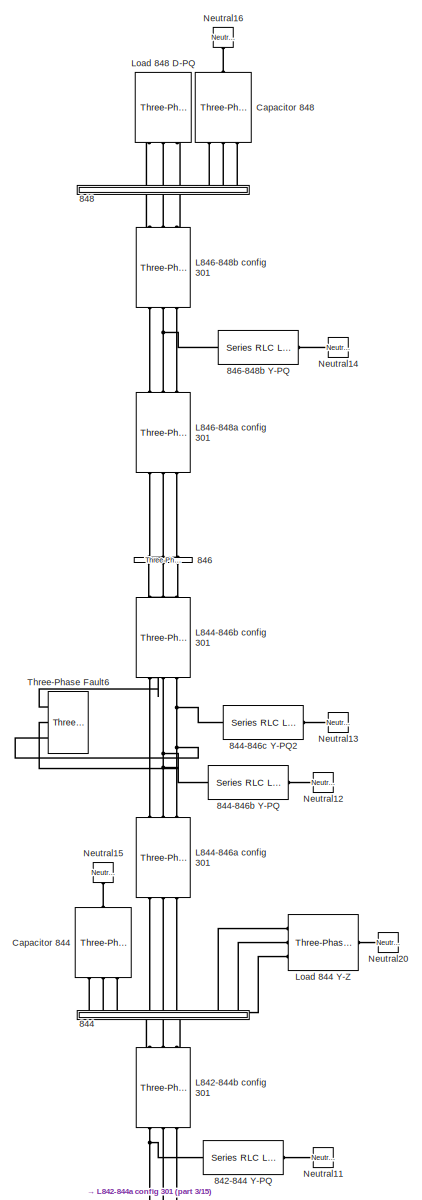
[diagram: root canvas - part 1/15, top right region]
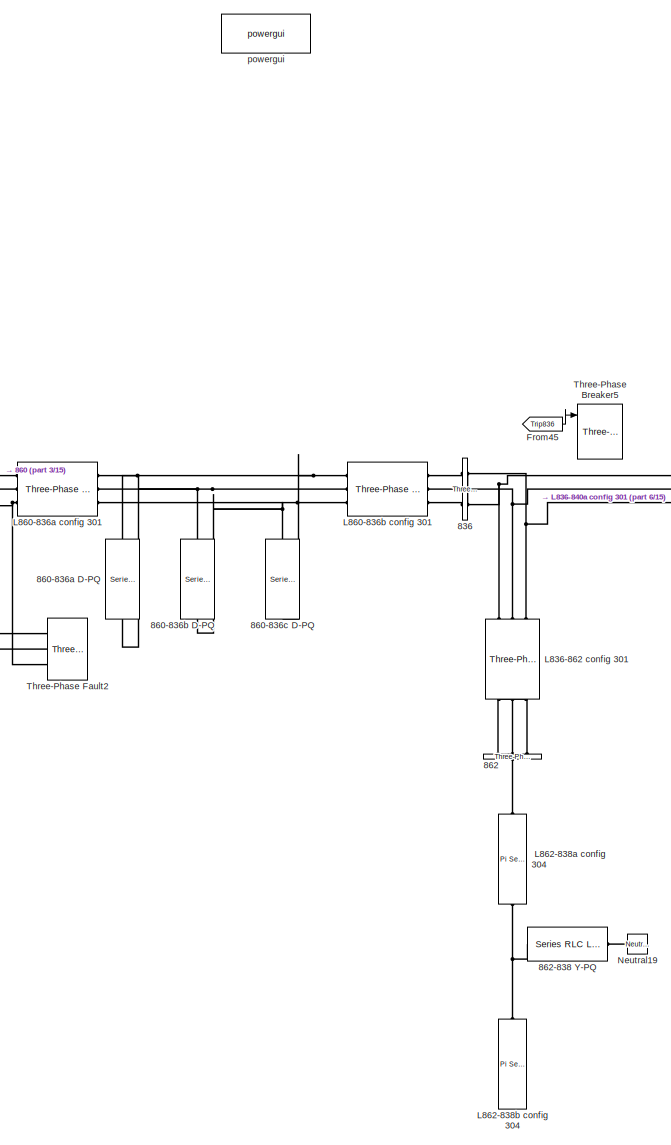
[diagram: root canvas - part 2/15, middle right region]
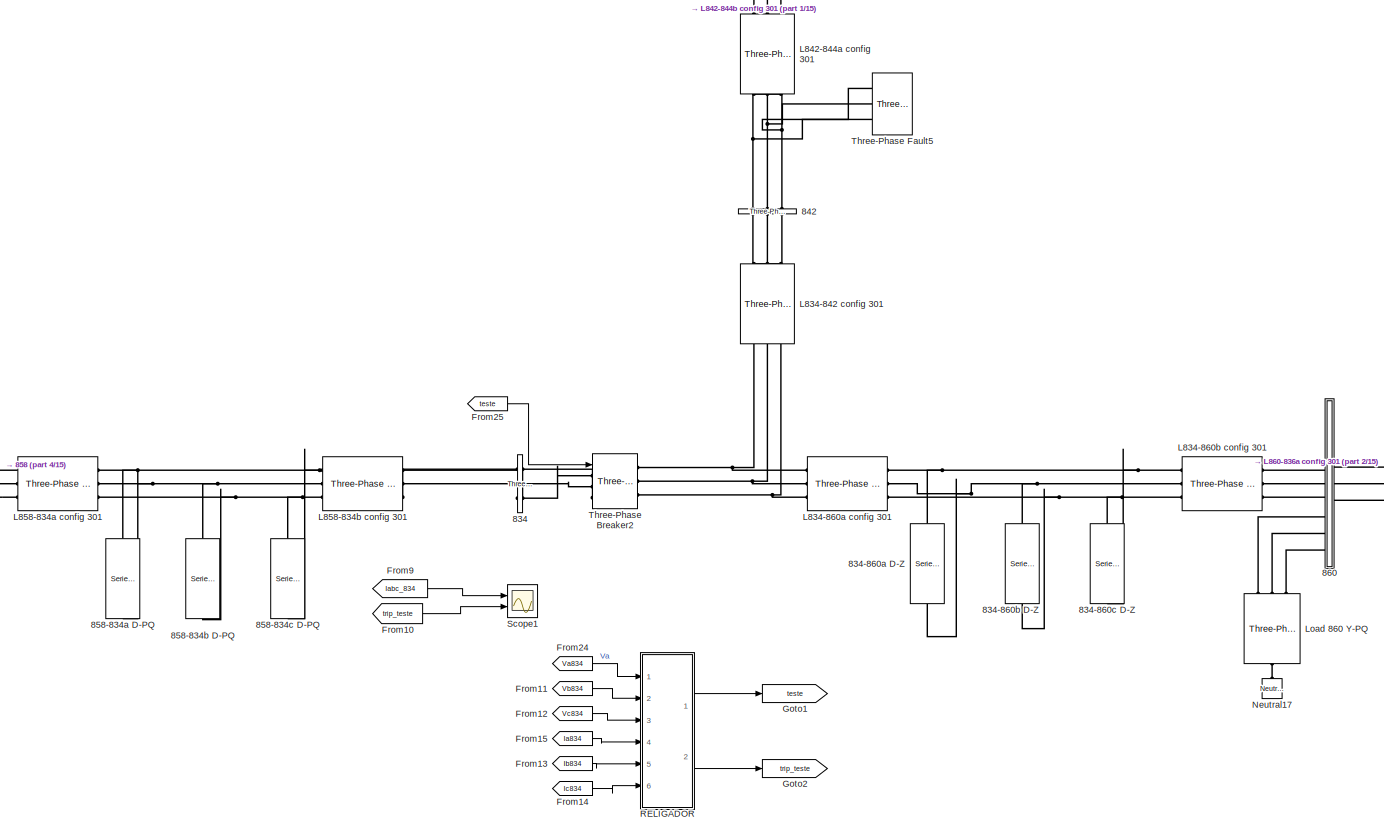
[diagram: root canvas - part 3/15, central region]
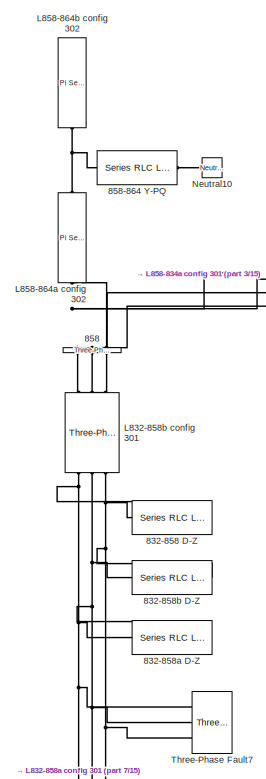
[diagram: root canvas - part 4/15, central region]
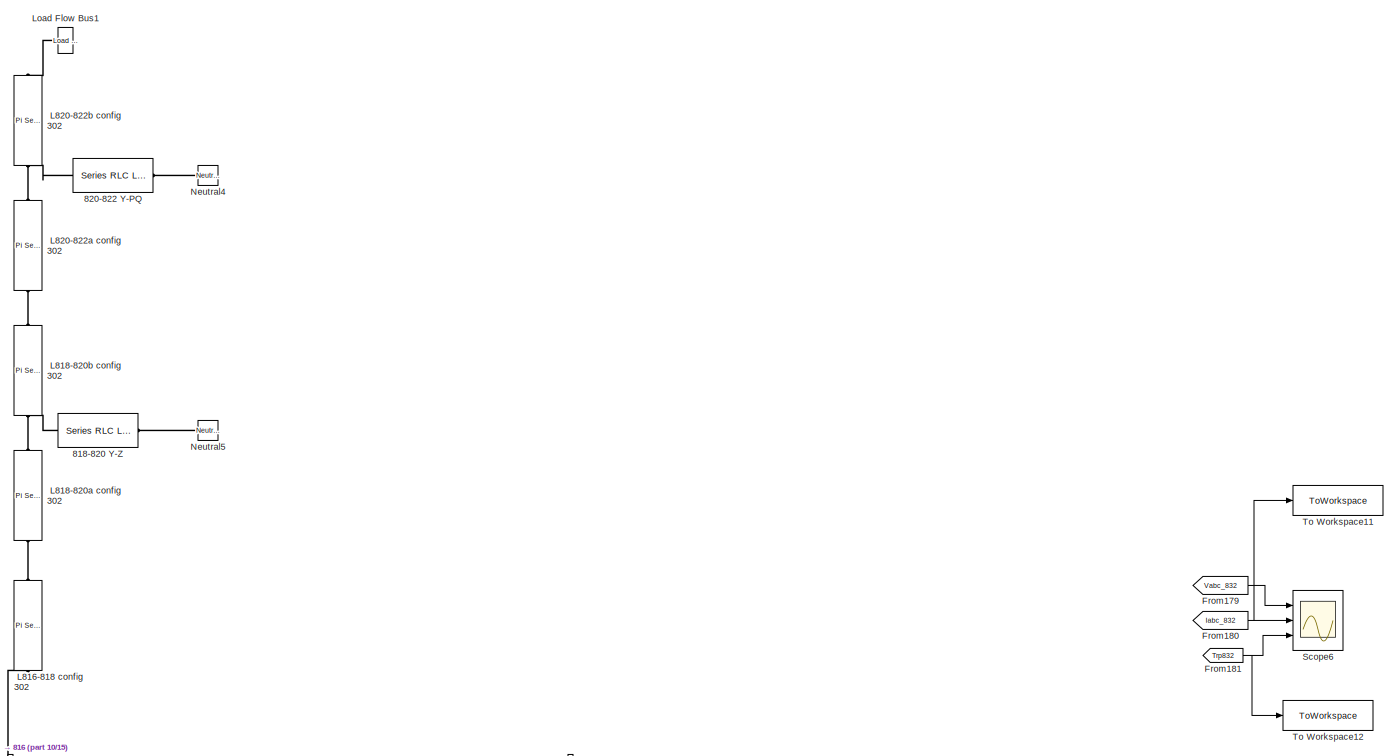
[diagram: root canvas - part 5/15, central region]
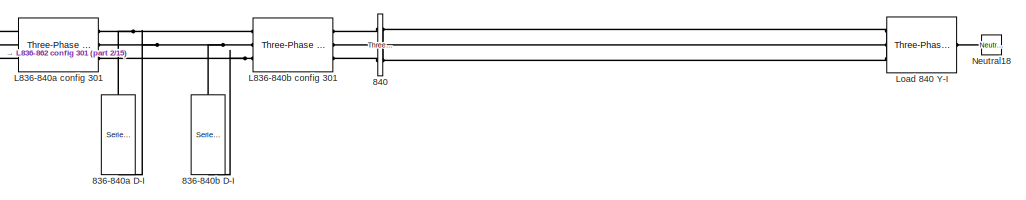
[diagram: root canvas - part 6/15, middle right region]
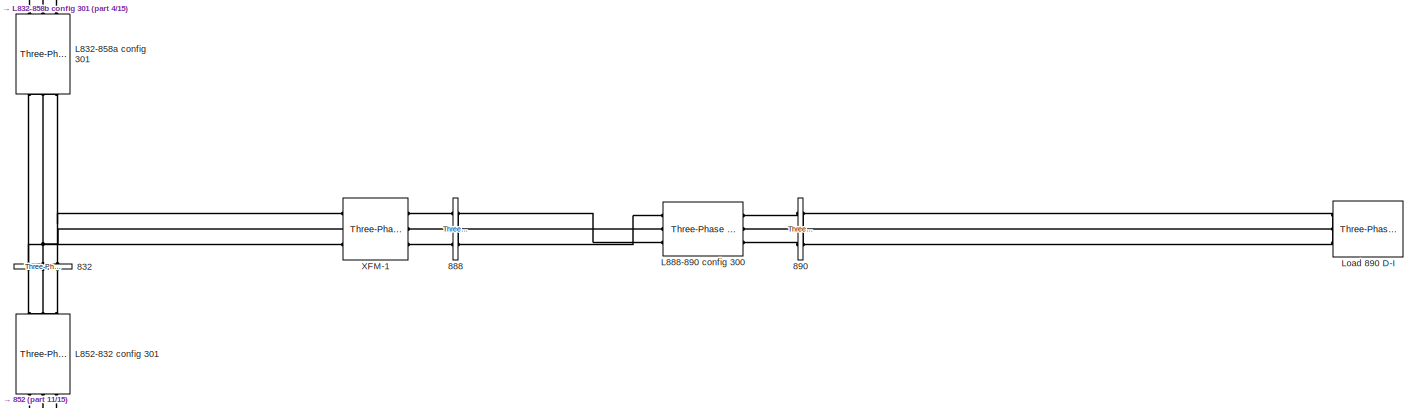
[diagram: root canvas - part 7/15, central region]
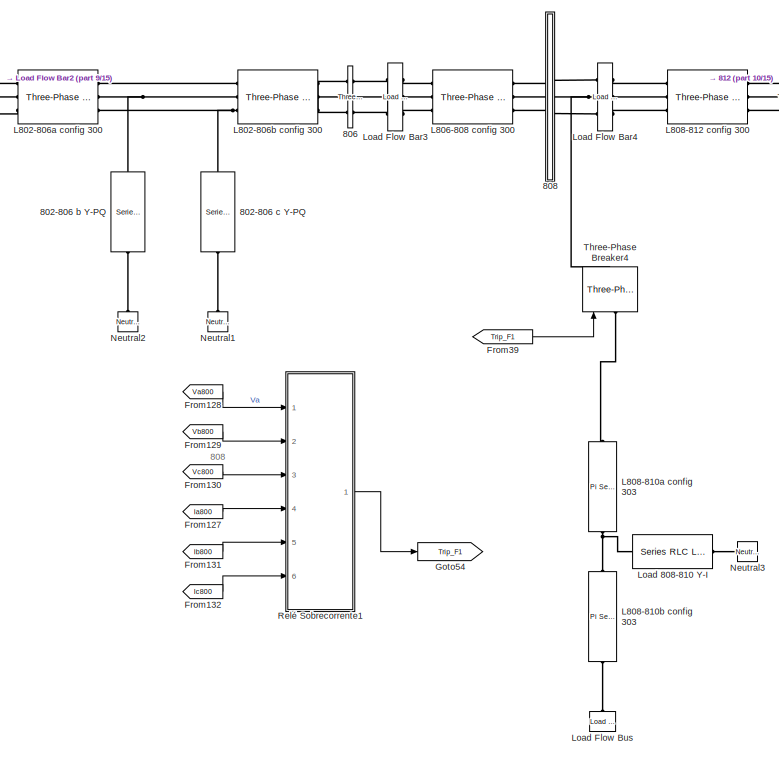
[diagram: root canvas - part 8/15, middle left region]
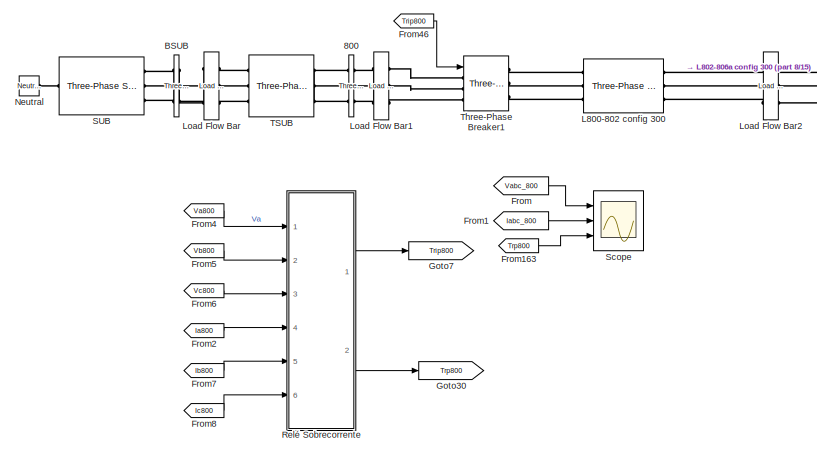
[diagram: root canvas - part 9/15, middle left region]
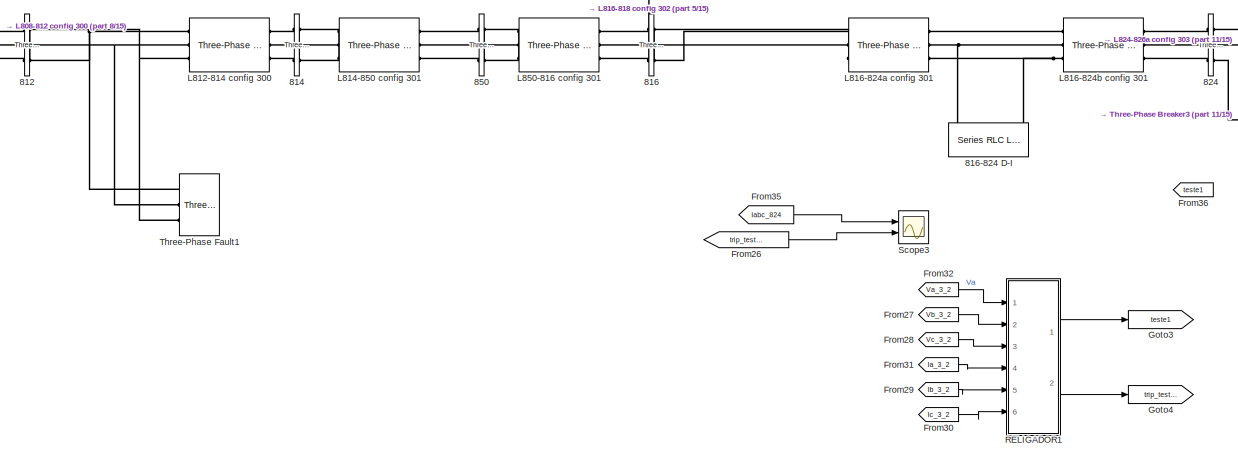
[diagram: root canvas - part 10/15, middle left region]
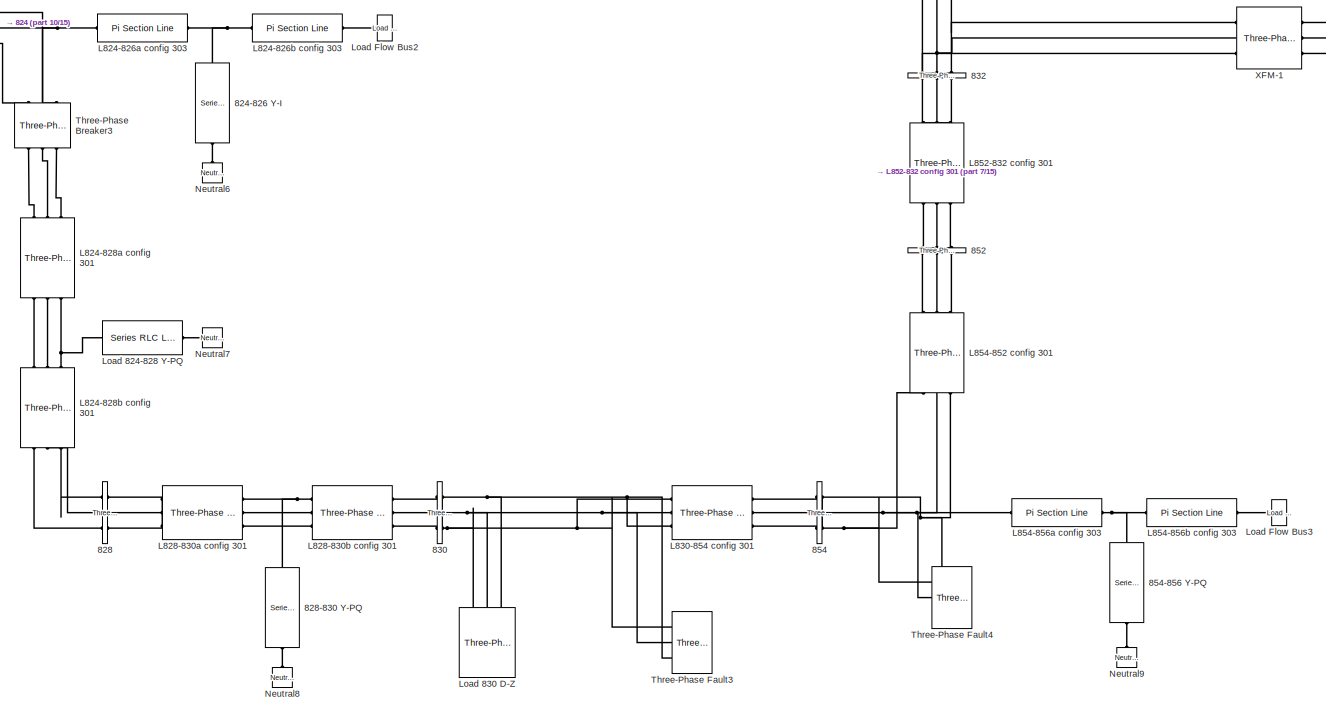
[diagram: root canvas - part 11/15, central region]
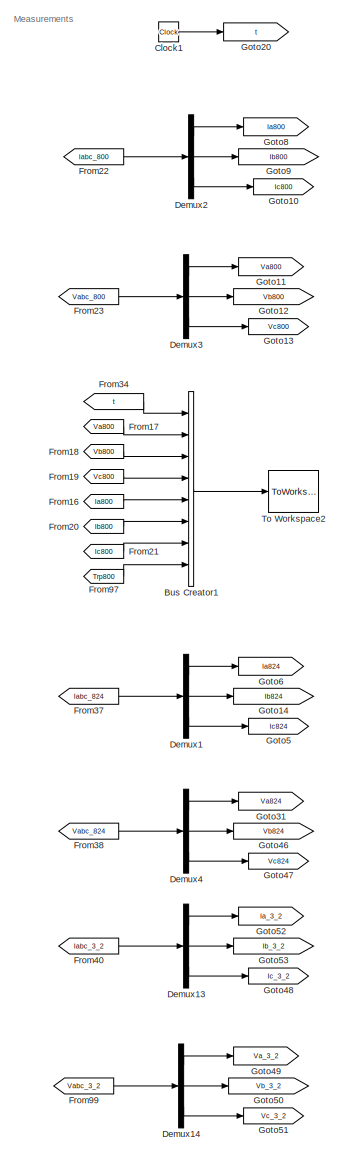
[diagram: root canvas - part 12/15, bottom left region]
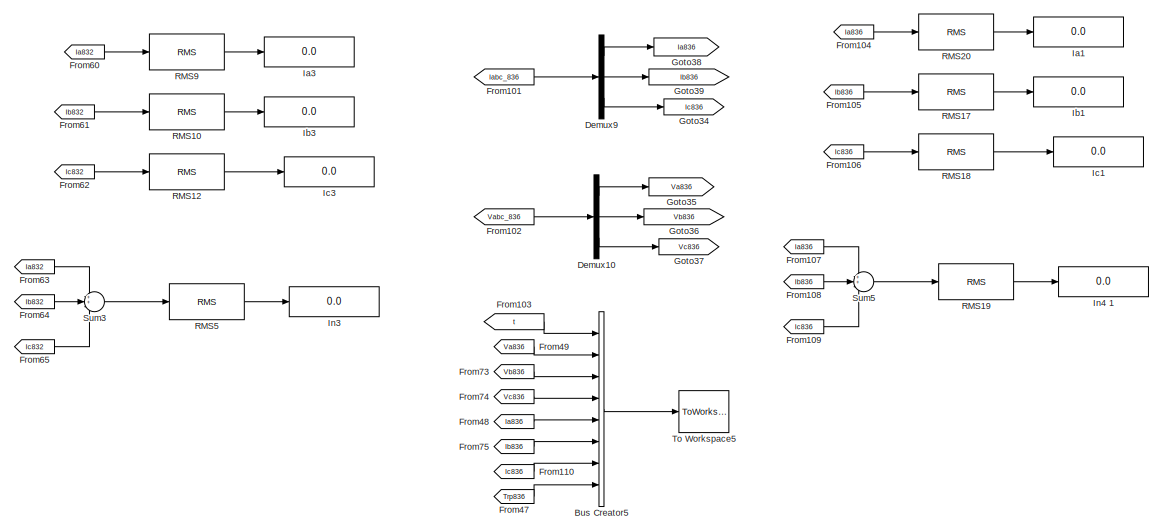
[diagram: root canvas - part 13/15, bottom center region]
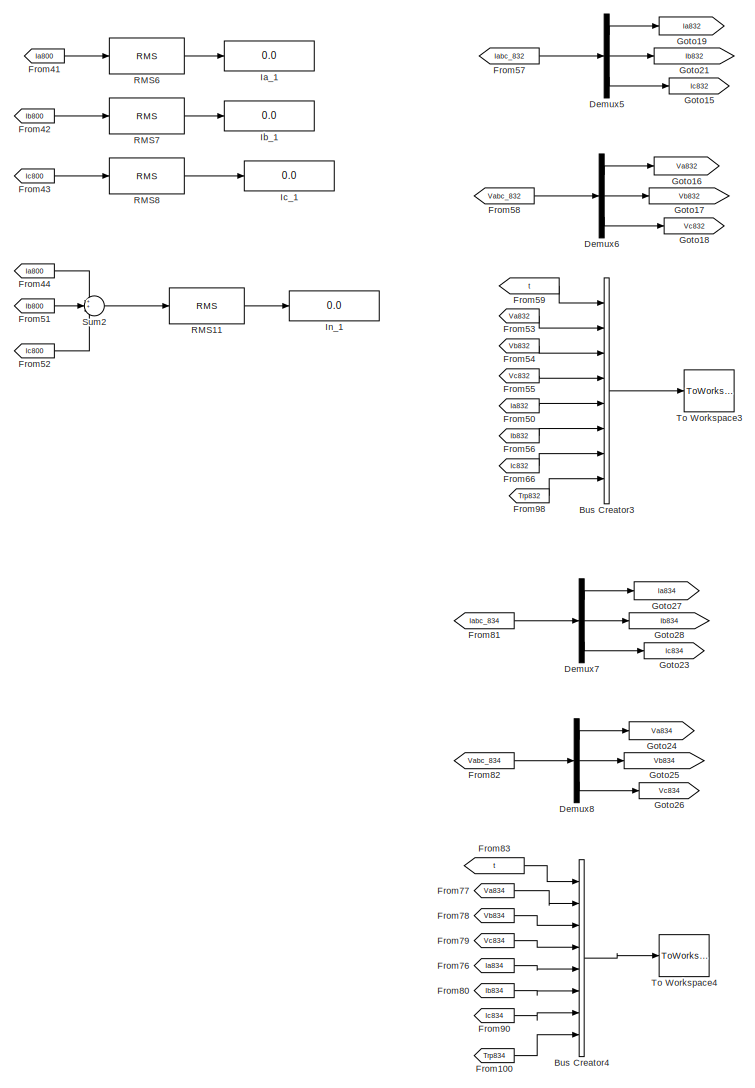
[diagram: root canvas - part 14/15, bottom center region]
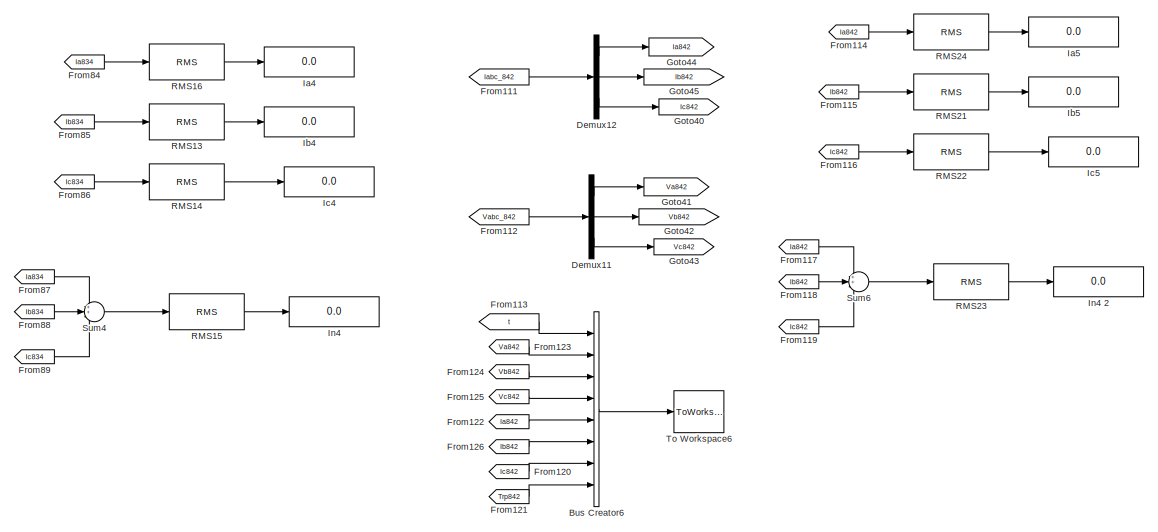
[diagram: root canvas - part 15/15, bottom center region]
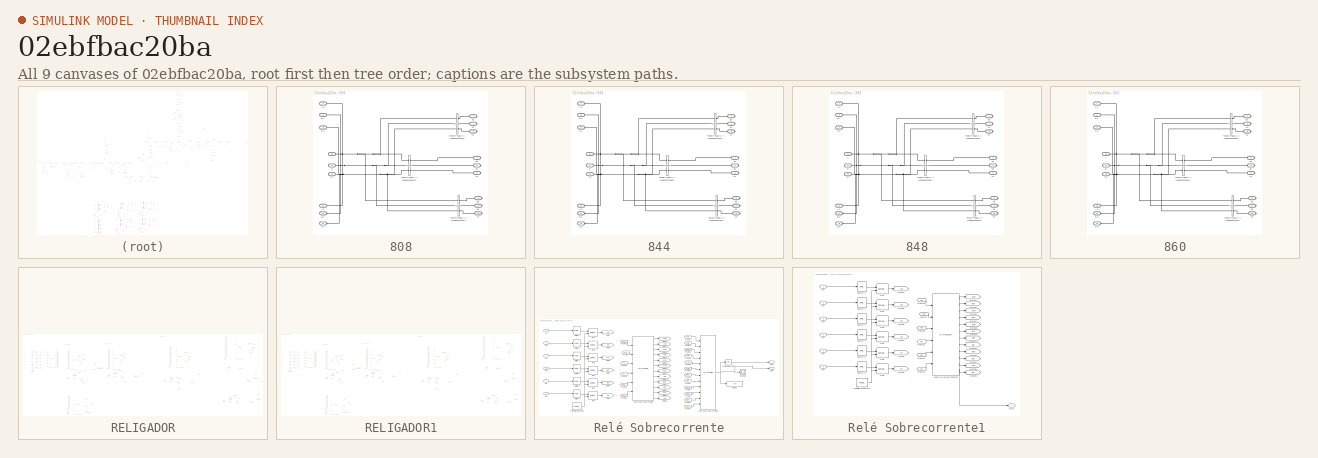
[diagram: thumbnail index - all 9 canvases of the model, root first then tree order]
MODEL slx_02ebfbac20ba
KIND model
CONFIG AbsTol = auto
CONFIG EnableMultiTasking = off
CONFIG FixedStep = auto
CONFIG MaxStep = 1e-4
CONFIG MinStep = auto
CONFIG RelTol = 1e-3
CONFIG SampleTimeConstraint = Unconstrained
CONFIG SolverName = ode23t
CONFIG StartTime = 0.0
CONFIG StopTime = 4
BLOCK [Reference]  816-824 D-I  REF=spsSeriesRLCLoadLib/Series RLC Load
  AttributesFormatString = \n
  Ports = [0, 0, 0, 0, 0, 1, 1]
  SourceBlock = spsSeriesRLCLoadLib/Series RLC Load
  SourceProductBaseCode = PS
  SourceType = Series RLC Load
BLOCK [Reference]  824-826 Y-I  REF=spsSeriesRLCLoadLib/Series RLC Load
  AttributesFormatString = \n
  NameLocation = left
  Ports = [0, 0, 0, 0, 0, 1, 1]
  SourceBlock = spsSeriesRLCLoadLib/Series RLC Load
  SourceProductBaseCode = PS
  SourceType = Series RLC Load
BLOCK [Reference]  828-830 Y-PQ  REF=spsSeriesRLCLoadLib/Series RLC Load
  AttributesFormatString = \n
  NameLocation = left
  Ports = [0, 0, 0, 0, 0, 1, 1]
  SourceBlock = spsSeriesRLCLoadLib/Series RLC Load
  SourceProductBaseCode = PS
  SourceType = Series RLC Load
BLOCK [Reference]  854-856 Y-PQ  REF=spsSeriesRLCLoadLib/Series RLC Load
  AttributesFormatString = \n
  NameLocation = left
  Ports = [0, 0, 0, 0, 0, 1, 1]
  SourceBlock = spsSeriesRLCLoadLib/Series RLC Load
  SourceProductBaseCode = PS
  SourceType = Series RLC Load
BLOCK [Reference]  L808-810a config 303   REF=spsPiSectionLineLib/Pi Section Line
  AttributesFormatString = \n
  NameLocation = left
  Ports = [0, 0, 0, 0, 0, 1, 1]
  SourceBlock = spsPiSectionLineLib/Pi Section Line
  SourceProductBaseCode = PS
  SourceType = Pi Section Line
BLOCK [Reference]  L808-810b config 303   REF=spsPiSectionLineLib/Pi Section Line
  AttributesFormatString = \n
  NameLocation = left
  Ports = [0, 0, 0, 0, 0, 1, 1]
  SourceBlock = spsPiSectionLineLib/Pi Section Line
  SourceProductBaseCode = PS
  SourceType = Pi Section Line
BLOCK [Reference]  L816-818 config 302  REF=spsPiSectionLineLib/Pi Section Line
  AttributesFormatString = \n
  NameLocation = right
  Ports = [0, 0, 0, 0, 0, 1, 1]
  SourceBlock = spsPiSectionLineLib/Pi Section Line
  SourceProductBaseCode = PS
  SourceType = Pi Section Line
BLOCK [Reference]  L818-820a config 302  REF=spsPiSectionLineLib/Pi Section Line
  AttributesFormatString = \n
  NameLocation = right
  Ports = [0, 0, 0, 0, 0, 1, 1]
  SourceBlock = spsPiSectionLineLib/Pi Section Line
  SourceProductBaseCode = PS
  SourceType = Pi Section Line
BLOCK [Reference]  L818-820b config 302  REF=spsPiSectionLineLib/Pi Section Line
  AttributesFormatString = \n
  NameLocation = right
  Ports = [0, 0, 0, 0, 0, 1, 1]
  SourceBlock = spsPiSectionLineLib/Pi Section Line
  SourceProductBaseCode = PS
  SourceType = Pi Section Line
BLOCK [Reference]  L820-822a config 302  REF=spsPiSectionLineLib/Pi Section Line
  AttributesFormatString = \n
  NameLocation = right
  Ports = [0, 0, 0, 0, 0, 1, 1]
  SourceBlock = spsPiSectionLineLib/Pi Section Line
  SourceProductBaseCode = PS
  SourceType = Pi Section Line
BLOCK [Reference]  L820-822b config 302  REF=spsPiSectionLineLib/Pi Section Line
  AttributesFormatString = \n
  NameLocation = right
  Ports = [0, 0, 0, 0, 0, 1, 1]
  SourceBlock = spsPiSectionLineLib/Pi Section Line
  SourceProductBaseCode = PS
  SourceType = Pi Section Line
BLOCK [Reference]  L824-826a config 303   REF=spsPiSectionLineLib/Pi Section Line
  AttributesFormatString = \n
  NameLocation = top
  Ports = [0, 0, 0, 0, 0, 1, 1]
  SourceBlock = spsPiSectionLineLib/Pi Section Line
  SourceProductBaseCode = PS
  SourceType = Pi Section Line
BLOCK [Reference]  L824-826b config 303   REF=spsPiSectionLineLib/Pi Section Line
  AttributesFormatString = \n
  NameLocation = top
  Ports = [0, 0, 0, 0, 0, 1, 1]
  SourceBlock = spsPiSectionLineLib/Pi Section Line
  SourceProductBaseCode = PS
  SourceType = Pi Section Line
BLOCK [Reference]  L854-856a config 303   REF=spsPiSectionLineLib/Pi Section Line
  AttributesFormatString = \n
  NameLocation = top
  Ports = [0, 0, 0, 0, 0, 1, 1]
  SourceBlock = spsPiSectionLineLib/Pi Section Line
  SourceProductBaseCode = PS
  SourceType = Pi Section Line
BLOCK [Reference]  L854-856b config 303   REF=spsPiSectionLineLib/Pi Section Line
  AttributesFormatString = \n
  NameLocation = top
  Ports = [0, 0, 0, 0, 0, 1, 1]
  SourceBlock = spsPiSectionLineLib/Pi Section Line
  SourceProductBaseCode = PS
  SourceType = Pi Section Line
BLOCK [Reference]  L858-864a config 302  REF=spsPiSectionLineLib/Pi Section Line
  AttributesFormatString = \n
  NameLocation = right
  Ports = [0, 0, 0, 0, 0, 1, 1]
  SourceBlock = spsPiSectionLineLib/Pi Section Line
  SourceProductBaseCode = PS
  SourceType = Pi Section Line
BLOCK [Reference]  L858-864b config 302  REF=spsPiSectionLineLib/Pi Section Line
  AttributesFormatString = \n
  NameLocation = right
  Ports = [0, 0, 0, 0, 0, 1, 1]
  SourceBlock = spsPiSectionLineLib/Pi Section Line
  SourceProductBaseCode = PS
  SourceType = Pi Section Line
BLOCK [Reference]  L862-838a config 304  REF=spsPiSectionLineLib/Pi Section Line
  AttributesFormatString = \n
  NameLocation = right
  Ports = [0, 0, 0, 0, 0, 1, 1]
  SourceBlock = spsPiSectionLineLib/Pi Section Line
  SourceProductBaseCode = PS
  SourceType = Pi Section Line
BLOCK [Reference]  L862-838b config 304  REF=spsPiSectionLineLib/Pi Section Line
  AttributesFormatString = \n
  NameLocation = right
  Ports = [0, 0, 0, 0, 0, 1, 1]
  SourceBlock = spsPiSectionLineLib/Pi Section Line
  SourceProductBaseCode = PS
  SourceType = Pi Section Line
BLOCK [Reference]  Load 830 D-Z  REF=spsThreePhaseSeriesRLCLoadLib/Three-Phase
Series RLC Load
  AttributesFormatString = \n
  NameLocation = right
  Ports = [0, 0, 0, 0, 0, 3]
  SourceBlock = spsThreePhaseSeriesRLCLoadLib/Three-Phase\nSeries RLC Load
  SourceProductBaseCode = PS
  SourceType = Three-Phase Series RLC Load
BLOCK [Reference]  Load 840 Y-I  REF=spsThreePhaseSeriesRLCLoadLib/Three-Phase
Series RLC Load
  AttributesFormatString = \n
  NameLocation = top
  Ports = [0, 0, 0, 0, 0, 3, 1]
  SourceBlock = spsThreePhaseSeriesRLCLoadLib/Three-Phase\nSeries RLC Load
  SourceProductBaseCode = PS
  SourceType = Three-Phase Series RLC Load
BLOCK [Reference]  Load 844 Y-Z  REF=spsThreePhaseSeriesRLCLoadLib/Three-Phase
Series RLC Load
  AttributesFormatString = \n
  NameLocation = top
  Ports = [0, 0, 0, 0, 0, 3, 1]
  SourceBlock = spsThreePhaseSeriesRLCLoadLib/Three-Phase\nSeries RLC Load
  SourceProductBaseCode = PS
  SourceType = Three-Phase Series RLC Load
BLOCK [Reference]  Load 848 D-PQ  REF=spsThreePhaseSeriesRLCLoadLib/Three-Phase
Series RLC Load
  AttributesFormatString = \n
  NameLocation = left
  Ports = [0, 0, 0, 0, 0, 3]
  SourceBlock = spsThreePhaseSeriesRLCLoadLib/Three-Phase\nSeries RLC Load
  SourceProductBaseCode = PS
  SourceType = Three-Phase Series RLC Load
BLOCK [Reference]  Load 860 Y-PQ  REF=spsThreePhaseSeriesRLCLoadLib/Three-Phase
Series RLC Load
  AttributesFormatString = \n
  NameLocation = right
  Ports = [0, 0, 0, 0, 0, 3, 1]
  SourceBlock = spsThreePhaseSeriesRLCLoadLib/Three-Phase\nSeries RLC Load
  SourceProductBaseCode = PS
  SourceType = Three-Phase Series RLC Load
BLOCK [Reference]  Load 890 D-I  REF=spsThreePhaseSeriesRLCLoadLib/Three-Phase
Series RLC Load
  AttributesFormatString = \n
  NameLocation = top
  Ports = [0, 0, 0, 0, 0, 3]
  SourceBlock = spsThreePhaseSeriesRLCLoadLib/Three-Phase\nSeries RLC Load
  SourceProductBaseCode = PS
  SourceType = Three-Phase Series RLC Load
BLOCK [Reference] 800  REF=spsThreePhaseVIMeasurementLib/Three-Phase
V-I Measurement
  NameLocation = top
  Ports = [0, 0, 0, 0, 0, 3, 3]
  SourceBlock = spsThreePhaseVIMeasurementLib/Three-Phase\nV-I Measurement
  SourceProductBaseCode = PS
  SourceType = Three-Phase VI Measurement
BLOCK [Reference] 802-806 b Y-PQ  REF=spsSeriesRLCLoadLib/Series RLC Load
  AttributesFormatString = \n
  NameLocation = left
  Ports = [0, 0, 0, 0, 0, 1, 1]
  SourceBlock = spsSeriesRLCLoadLib/Series RLC Load
  SourceProductBaseCode = PS
  SourceType = Series RLC Load
BLOCK [Reference] 802-806 c Y-PQ  REF=spsSeriesRLCLoadLib/Series RLC Load
  AttributesFormatString = \n
  NameLocation = left
  Ports = [0, 0, 0, 0, 0, 1, 1]
  SourceBlock = spsSeriesRLCLoadLib/Series RLC Load
  SourceProductBaseCode = PS
  SourceType = Series RLC Load
BLOCK [Reference] 806  REF=spsThreePhaseVIMeasurementLib/Three-Phase
V-I Measurement
  NameLocation = top
  Ports = [0, 0, 0, 0, 0, 3, 3]
  SourceBlock = spsThreePhaseVIMeasurementLib/Three-Phase\nV-I Measurement
  SourceProductBaseCode = PS
  SourceType = Three-Phase VI Measurement
BLOCK [SubSystem] 808
  Ports = [0, 0, 0, 0, 0, 9, 9]
  RequestExecContextInheritance = off
BLOCK [PMIOPort] 808/A
  NameLocation = top
  Port = 10
  Side = Left
BLOCK [PMIOPort] 808/A1
  NameLocation = top
  Port = 7
  Side = Left
BLOCK [PMIOPort] 808/A3
  NameLocation = top
  Port = 16
  Side = Left
BLOCK [PMIOPort] 808/B
  NameLocation = top
  Port = 11
  Side = Left
BLOCK [PMIOPort] 808/B1
  NameLocation = top
  Port = 8
  Side = Left
BLOCK [PMIOPort] 808/B3
  NameLocation = top
  Port = 17
  Side = Left
BLOCK [PMIOPort] 808/C
  NameLocation = top
  Port = 12
  Side = Left
BLOCK [PMIOPort] 808/C1
  NameLocation = top
  Port = 9
  Side = Left
BLOCK [PMIOPort] 808/C3
  NameLocation = top
  Port = 18
  Side = Left
BLOCK [Reference] 808/Three-Phase V-I Measurement1  REF=spsThreePhaseVIMeasurementLib/Three-Phase
V-I Measurement
  Ports = [0, 0, 0, 0, 0, 3, 3]
  SourceBlock = spsThreePhaseVIMeasurementLib/Three-Phase\nV-I Measurement
  SourceProductBaseCode = PS
  SourceType = Three-Phase VI Measurement
BLOCK [Reference] 808/Three-Phase V-I Measurement2  REF=spsThreePhaseVIMeasurementLib/Three-Phase
V-I Measurement
  Ports = [0, 0, 0, 0, 0, 3, 3]
  SourceBlock = spsThreePhaseVIMeasurementLib/Three-Phase\nV-I Measurement
  SourceProductBaseCode = PS
  SourceType = Three-Phase VI Measurement
BLOCK [Reference] 808/Three-Phase V-I Measurement3  REF=spsThreePhaseVIMeasurementLib/Three-Phase
V-I Measurement
  Ports = [0, 0, 0, 0, 0, 3, 3]
  SourceBlock = spsThreePhaseVIMeasurementLib/Three-Phase\nV-I Measurement
  SourceProductBaseCode = PS
  SourceType = Three-Phase VI Measurement
BLOCK [PMIOPort] 808/a1
  Side = Right
BLOCK [PMIOPort] 808/a2
  Port = 4
  Side = Right
BLOCK [PMIOPort] 808/a3
  Port = 13
  Side = Right
BLOCK [PMIOPort] 808/b1
  Port = 2
  Side = Right
BLOCK [PMIOPort] 808/b2
  Port = 5
  Side = Right
BLOCK [PMIOPort] 808/b3
  Port = 14
  Side = Right
BLOCK [PMIOPort] 808/c1
  Port = 3
  Side = Right
BLOCK [PMIOPort] 808/c2
  Port = 6
  Side = Right
BLOCK [PMIOPort] 808/c3
  Port = 15
  Side = Right
BLOCK [Reference] 812  REF=spsThreePhaseVIMeasurementLib/Three-Phase
V-I Measurement
  NameLocation = top
  Ports = [0, 0, 0, 0, 0, 3, 3]
  SourceBlock = spsThreePhaseVIMeasurementLib/Three-Phase\nV-I Measurement
  SourceProductBaseCode = PS
  SourceType = Three-Phase VI Measurement
BLOCK [Reference] 814  REF=spsThreePhaseVIMeasurementLib/Three-Phase
V-I Measurement
  NameLocation = top
  Ports = [0, 0, 0, 0, 0, 3, 3]
  SourceBlock = spsThreePhaseVIMeasurementLib/Three-Phase\nV-I Measurement
  SourceProductBaseCode = PS
  SourceType = Three-Phase VI Measurement
BLOCK [Reference] 816  REF=spsThreePhaseVIMeasurementLib/Three-Phase
V-I Measurement
  NameLocation = top
  Ports = [0, 0, 0, 0, 0, 3, 3]
  SourceBlock = spsThreePhaseVIMeasurementLib/Three-Phase\nV-I Measurement
  SourceProductBaseCode = PS
  SourceType = Three-Phase VI Measurement
BLOCK [Reference] 818-820 Y-Z  REF=spsSeriesRLCLoadLib/Series RLC Load
  AttributesFormatString = \n
  Ports = [0, 0, 0, 0, 0, 1, 1]
  SourceBlock = spsSeriesRLCLoadLib/Series RLC Load
  SourceProductBaseCode = PS
  SourceType = Series RLC Load
BLOCK [Reference] 820-822 Y-PQ  REF=spsSeriesRLCLoadLib/Series RLC Load
  AttributesFormatString = \n
  Ports = [0, 0, 0, 0, 0, 1, 1]
  SourceBlock = spsSeriesRLCLoadLib/Series RLC Load
  SourceProductBaseCode = PS
  SourceType = Series RLC Load
BLOCK [Reference] 824  REF=spsThreePhaseVIMeasurementLib/Three-Phase
V-I Measurement
  NameLocation = top
  Ports = [0, 0, 0, 0, 0, 3, 3]
  SourceBlock = spsThreePhaseVIMeasurementLib/Three-Phase\nV-I Measurement
  SourceProductBaseCode = PS
  SourceType = Three-Phase VI Measurement
BLOCK [Reference] 828  REF=spsThreePhaseVIMeasurementLib/Three-Phase
V-I Measurement
  NameLocation = top
  Ports = [0, 0, 0, 0, 0, 3, 3]
  SourceBlock = spsThreePhaseVIMeasurementLib/Three-Phase\nV-I Measurement
  SourceProductBaseCode = PS
  SourceType = Three-Phase VI Measurement
BLOCK [Reference] 830  REF=spsThreePhaseVIMeasurementLib/Three-Phase
V-I Measurement
  NameLocation = top
  Ports = [0, 0, 0, 0, 0, 3, 3]
  SourceBlock = spsThreePhaseVIMeasurementLib/Three-Phase\nV-I Measurement
  SourceProductBaseCode = PS
  SourceType = Three-Phase VI Measurement
BLOCK [Reference] 832  REF=spsThreePhaseVIMeasurementLib/Three-Phase
V-I Measurement
  NameLocation = left
  Ports = [0, 0, 0, 0, 0, 3, 3]
  SourceBlock = spsThreePhaseVIMeasurementLib/Three-Phase\nV-I Measurement
  SourceProductBaseCode = PS
  SourceType = Three-Phase VI Measurement
BLOCK [Reference] 832-858 D-Z  REF=spsSeriesRLCLoadLib/Series RLC Load
  AttributesFormatString = \n
  Ports = [0, 0, 0, 0, 0, 1, 1]
  SourceBlock = spsSeriesRLCLoadLib/Series RLC Load
  SourceProductBaseCode = PS
  SourceType = Series RLC Load
BLOCK [Reference] 832-858a D-Z  REF=spsSeriesRLCLoadLib/Series RLC Load
  AttributesFormatString = \n
  Ports = [0, 0, 0, 0, 0, 1, 1]
  SourceBlock = spsSeriesRLCLoadLib/Series RLC Load
  SourceProductBaseCode = PS
  SourceType = Series RLC Load
BLOCK [Reference] 832-858b D-Z  REF=spsSeriesRLCLoadLib/Series RLC Load
  AttributesFormatString = \n
  Ports = [0, 0, 0, 0, 0, 1, 1]
  SourceBlock = spsSeriesRLCLoadLib/Series RLC Load
  SourceProductBaseCode = PS
  SourceType = Series RLC Load
BLOCK [Reference] 834  REF=spsThreePhaseVIMeasurementLib/Three-Phase
V-I Measurement
  NameLocation = top
  Ports = [0, 0, 0, 0, 0, 3, 3]
  SourceBlock = spsThreePhaseVIMeasurementLib/Three-Phase\nV-I Measurement
  SourceProductBaseCode = PS
  SourceType = Three-Phase VI Measurement
BLOCK [Reference] 834-860a D-Z  REF=spsSeriesRLCLoadLib/Series RLC Load
  AttributesFormatString = \n
  NameLocation = left
  Ports = [0, 0, 0, 0, 0, 1, 1]
  SourceBlock = spsSeriesRLCLoadLib/Series RLC Load
  SourceProductBaseCode = PS
  SourceType = Series RLC Load
BLOCK [Reference] 834-860b D-Z  REF=spsSeriesRLCLoadLib/Series RLC Load
  AttributesFormatString = \n
  NameLocation = left
  Ports = [0, 0, 0, 0, 0, 1, 1]
  SourceBlock = spsSeriesRLCLoadLib/Series RLC Load
  SourceProductBaseCode = PS
  SourceType = Series RLC Load
BLOCK [Reference] 834-860c D-Z  REF=spsSeriesRLCLoadLib/Series RLC Load
  AttributesFormatString = \n
  NameLocation = left
  Ports = [0, 0, 0, 0, 0, 1, 1]
  SourceBlock = spsSeriesRLCLoadLib/Series RLC Load
  SourceProductBaseCode = PS
  SourceType = Series RLC Load
BLOCK [Reference] 836  REF=spsThreePhaseVIMeasurementLib/Three-Phase
V-I Measurement
  NameLocation = top
  Ports = [0, 0, 0, 0, 0, 3, 3]
  SourceBlock = spsThreePhaseVIMeasurementLib/Three-Phase\nV-I Measurement
  SourceProductBaseCode = PS
  SourceType = Three-Phase VI Measurement
BLOCK [Reference] 836-840a D-I  REF=spsSeriesRLCLoadLib/Series RLC Load
  AttributesFormatString = \n
  NameLocation = left
  Ports = [0, 0, 0, 0, 0, 1, 1]
  SourceBlock = spsSeriesRLCLoadLib/Series RLC Load
  SourceProductBaseCode = PS
  SourceType = Series RLC Load
BLOCK [Reference] 836-840b D-I  REF=spsSeriesRLCLoadLib/Series RLC Load
  AttributesFormatString = \n
  NameLocation = left
  Ports = [0, 0, 0, 0, 0, 1, 1]
  SourceBlock = spsSeriesRLCLoadLib/Series RLC Load
  SourceProductBaseCode = PS
  SourceType = Series RLC Load
BLOCK [Reference] 840  REF=spsThreePhaseVIMeasurementLib/Three-Phase
V-I Measurement
  NameLocation = top
  Ports = [0, 0, 0, 0, 0, 3, 3]
  SourceBlock = spsThreePhaseVIMeasurementLib/Three-Phase\nV-I Measurement
  SourceProductBaseCode = PS
  SourceType = Three-Phase VI Measurement
BLOCK [Reference] 842  REF=spsThreePhaseVIMeasurementLib/Three-Phase
V-I Measurement
  NameLocation = left
  Ports = [0, 0, 0, 0, 0, 3, 3]
  SourceBlock = spsThreePhaseVIMeasurementLib/Three-Phase\nV-I Measurement
  SourceProductBaseCode = PS
  SourceType = Three-Phase VI Measurement
BLOCK [Reference] 842-844 Y-PQ  REF=spsSeriesRLCLoadLib/Series RLC Load
  AttributesFormatString = \n
  Ports = [0, 0, 0, 0, 0, 1, 1]
  SourceBlock = spsSeriesRLCLoadLib/Series RLC Load
  SourceProductBaseCode = PS
  SourceType = Series RLC Load
BLOCK [SubSystem] 844
  NameLocation = left
  Ports = [0, 0, 0, 0, 0, 9, 9]
  RequestExecContextInheritance = off
BLOCK [Reference] 844-846b Y-PQ  REF=spsSeriesRLCLoadLib/Series RLC Load
  AttributesFormatString = \n
  Ports = [0, 0, 0, 0, 0, 1, 1]
  SourceBlock = spsSeriesRLCLoadLib/Series RLC Load
  SourceProductBaseCode = PS
  SourceType = Series RLC Load
BLOCK [Reference] 844-846c Y-PQ2  REF=spsSeriesRLCLoadLib/Series RLC Load
  AttributesFormatString = \n
  Ports = [0, 0, 0, 0, 0, 1, 1]
  SourceBlock = spsSeriesRLCLoadLib/Series RLC Load
  SourceProductBaseCode = PS
  SourceType = Series RLC Load
BLOCK [PMIOPort] 844/A
  NameLocation = top
  Port = 10
  Side = Left
BLOCK [PMIOPort] 844/A1
  NameLocation = top
  Port = 7
  Side = Left
BLOCK [PMIOPort] 844/A3
  NameLocation = top
  Port = 16
  Side = Left
BLOCK [PMIOPort] 844/B
  NameLocation = top
  Port = 11
  Side = Left
BLOCK [PMIOPort] 844/B1
  NameLocation = top
  Port = 8
  Side = Left
BLOCK [PMIOPort] 844/B3
  NameLocation = top
  Port = 17
  Side = Left
BLOCK [PMIOPort] 844/C
  NameLocation = top
  Port = 12
  Side = Left
BLOCK [PMIOPort] 844/C1
  NameLocation = top
  Port = 9
  Side = Left
BLOCK [PMIOPort] 844/C3
  NameLocation = top
  Port = 18
  Side = Left
BLOCK [Reference] 844/Three-Phase V-I Measurement1  REF=spsThreePhaseVIMeasurementLib/Three-Phase
V-I Measurement
  Ports = [0, 0, 0, 0, 0, 3, 3]
  SourceBlock = spsThreePhaseVIMeasurementLib/Three-Phase\nV-I Measurement
  SourceProductBaseCode = PS
  SourceType = Three-Phase VI Measurement
BLOCK [Reference] 844/Three-Phase V-I Measurement2  REF=spsThreePhaseVIMeasurementLib/Three-Phase
V-I Measurement
  Ports = [0, 0, 0, 0, 0, 3, 3]
  SourceBlock = spsThreePhaseVIMeasurementLib/Three-Phase\nV-I Measurement
  SourceProductBaseCode = PS
  SourceType = Three-Phase VI Measurement
BLOCK [Reference] 844/Three-Phase V-I Measurement3  REF=spsThreePhaseVIMeasurementLib/Three-Phase
V-I Measurement
  Ports = [0, 0, 0, 0, 0, 3, 3]
  SourceBlock = spsThreePhaseVIMeasurementLib/Three-Phase\nV-I Measurement
  SourceProductBaseCode = PS
  SourceType = Three-Phase VI Measurement
BLOCK [PMIOPort] 844/a1
  Side = Right
BLOCK [PMIOPort] 844/a2
  Port = 4
  Side = Right
BLOCK [PMIOPort] 844/a3
  Port = 13
  Side = Right
BLOCK [PMIOPort] 844/b1
  Port = 2
  Side = Right
BLOCK [PMIOPort] 844/b2
  Port = 5
  Side = Right
BLOCK [PMIOPort] 844/b3
  Port = 14
  Side = Right
BLOCK [PMIOPort] 844/c1
  Port = 3
  Side = Right
BLOCK [PMIOPort] 844/c2
  Port = 6
  Side = Right
BLOCK [PMIOPort] 844/c3
  Port = 15
  Side = Right
BLOCK [Reference] 846  REF=spsThreePhaseVIMeasurementLib/Three-Phase
V-I Measurement
  NameLocation = left
  Ports = [0, 0, 0, 0, 0, 3, 3]
  SourceBlock = spsThreePhaseVIMeasurementLib/Three-Phase\nV-I Measurement
  SourceProductBaseCode = PS
  SourceType = Three-Phase VI Measurement
BLOCK [Reference] 846-848b Y-PQ  REF=spsSeriesRLCLoadLib/Series RLC Load
  AttributesFormatString = \n
  Ports = [0, 0, 0, 0, 0, 1, 1]
  SourceBlock = spsSeriesRLCLoadLib/Series RLC Load
  SourceProductBaseCode = PS
  SourceType = Series RLC Load
BLOCK [SubSystem] 848
  NameLocation = left
  Ports = [0, 0, 0, 0, 0, 9, 9]
  RequestExecContextInheritance = off
BLOCK [PMIOPort] 848/A
  NameLocation = top
  Port = 10
  Side = Left
BLOCK [PMIOPort] 848/A1
  NameLocation = top
  Port = 7
  Side = Left
BLOCK [PMIOPort] 848/A3
  NameLocation = top
  Port = 16
  Side = Left
BLOCK [PMIOPort] 848/B
  NameLocation = top
  Port = 11
  Side = Left
BLOCK [PMIOPort] 848/B1
  NameLocation = top
  Port = 8
  Side = Left
BLOCK [PMIOPort] 848/B3
  NameLocation = top
  Port = 17
  Side = Left
BLOCK [PMIOPort] 848/C
  NameLocation = top
  Port = 12
  Side = Left
BLOCK [PMIOPort] 848/C1
  NameLocation = top
  Port = 9
  Side = Left
BLOCK [PMIOPort] 848/C3
  NameLocation = top
  Port = 18
  Side = Left
BLOCK [Reference] 848/Three-Phase V-I Measurement1  REF=spsThreePhaseVIMeasurementLib/Three-Phase
V-I Measurement
  Ports = [0, 0, 0, 0, 0, 3, 3]
  SourceBlock = spsThreePhaseVIMeasurementLib/Three-Phase\nV-I Measurement
  SourceProductBaseCode = PS
  SourceType = Three-Phase VI Measurement
BLOCK [Reference] 848/Three-Phase V-I Measurement2  REF=spsThreePhaseVIMeasurementLib/Three-Phase
V-I Measurement
  Ports = [0, 0, 0, 0, 0, 3, 3]
  SourceBlock = spsThreePhaseVIMeasurementLib/Three-Phase\nV-I Measurement
  SourceProductBaseCode = PS
  SourceType = Three-Phase VI Measurement
BLOCK [Reference] 848/Three-Phase V-I Measurement3  REF=spsThreePhaseVIMeasurementLib/Three-Phase
V-I Measurement
  Ports = [0, 0, 0, 0, 0, 3, 3]
  SourceBlock = spsThreePhaseVIMeasurementLib/Three-Phase\nV-I Measurement
  SourceProductBaseCode = PS
  SourceType = Three-Phase VI Measurement
BLOCK [PMIOPort] 848/a1
  Side = Right
BLOCK [PMIOPort] 848/a2
  Port = 4
  Side = Right
BLOCK [PMIOPort] 848/a3
  Port = 13
  Side = Right
BLOCK [PMIOPort] 848/b1
  Port = 2
  Side = Right
BLOCK [PMIOPort] 848/b2
  Port = 5
  Side = Right
BLOCK [PMIOPort] 848/b3
  Port = 14
  Side = Right
BLOCK [PMIOPort] 848/c1
  Port = 3
  Side = Right
BLOCK [PMIOPort] 848/c2
  Port = 6
  Side = Right
BLOCK [PMIOPort] 848/c3
  Port = 15
  Side = Right
BLOCK [Reference] 850  REF=spsThreePhaseVIMeasurementLib/Three-Phase
V-I Measurement
  NameLocation = top
  Ports = [0, 0, 0, 0, 0, 3, 3]
  SourceBlock = spsThreePhaseVIMeasurementLib/Three-Phase\nV-I Measurement
  SourceProductBaseCode = PS
  SourceType = Three-Phase VI Measurement
BLOCK [Reference] 852  REF=spsThreePhaseVIMeasurementLib/Three-Phase
V-I Measurement
  NameLocation = left
  Ports = [0, 0, 0, 0, 0, 3, 3]
  SourceBlock = spsThreePhaseVIMeasurementLib/Three-Phase\nV-I Measurement
  SourceProductBaseCode = PS
  SourceType = Three-Phase VI Measurement
BLOCK [Reference] 854  REF=spsThreePhaseVIMeasurementLib/Three-Phase
V-I Measurement
  NameLocation = top
  Ports = [0, 0, 0, 0, 0, 3, 3]
  SourceBlock = spsThreePhaseVIMeasurementLib/Three-Phase\nV-I Measurement
  SourceProductBaseCode = PS
  SourceType = Three-Phase VI Measurement
BLOCK [Reference] 858  REF=spsThreePhaseVIMeasurementLib/Three-Phase
V-I Measurement
  NameLocation = left
  Ports = [0, 0, 0, 0, 0, 3, 3]
  SourceBlock = spsThreePhaseVIMeasurementLib/Three-Phase\nV-I Measurement
  SourceProductBaseCode = PS
  SourceType = Three-Phase VI Measurement
BLOCK [Reference] 858-834a D-PQ  REF=spsSeriesRLCLoadLib/Series RLC Load
  AttributesFormatString = \n
  NameLocation = left
  Ports = [0, 0, 0, 0, 0, 1, 1]
  SourceBlock = spsSeriesRLCLoadLib/Series RLC Load
  SourceProductBaseCode = PS
  SourceType = Series RLC Load
BLOCK [Reference] 858-834b D-PQ  REF=spsSeriesRLCLoadLib/Series RLC Load
  AttributesFormatString = \n
  NameLocation = left
  Ports = [0, 0, 0, 0, 0, 1, 1]
  SourceBlock = spsSeriesRLCLoadLib/Series RLC Load
  SourceProductBaseCode = PS
  SourceType = Series RLC Load
BLOCK [Reference] 858-834c D-PQ  REF=spsSeriesRLCLoadLib/Series RLC Load
  AttributesFormatString = \n
  NameLocation = left
  Ports = [0, 0, 0, 0, 0, 1, 1]
  SourceBlock = spsSeriesRLCLoadLib/Series RLC Load
  SourceProductBaseCode = PS
  SourceType = Series RLC Load
BLOCK [Reference] 858-864 Y-PQ  REF=spsSeriesRLCLoadLib/Series RLC Load
  AttributesFormatString = \n
  Ports = [0, 0, 0, 0, 0, 1, 1]
  SourceBlock = spsSeriesRLCLoadLib/Series RLC Load
  SourceProductBaseCode = PS
  SourceType = Series RLC Load
BLOCK [SubSystem] 860
  Ports = [0, 0, 0, 0, 0, 9, 9]
  RequestExecContextInheritance = off
BLOCK [Reference] 860-836a D-PQ  REF=spsSeriesRLCLoadLib/Series RLC Load
  AttributesFormatString = \n
  NameLocation = left
  Ports = [0, 0, 0, 0, 0, 1, 1]
  SourceBlock = spsSeriesRLCLoadLib/Series RLC Load
  SourceProductBaseCode = PS
  SourceType = Series RLC Load
BLOCK [Reference] 860-836b D-PQ  REF=spsSeriesRLCLoadLib/Series RLC Load
  AttributesFormatString = \n
  NameLocation = left
  Ports = [0, 0, 0, 0, 0, 1, 1]
  SourceBlock = spsSeriesRLCLoadLib/Series RLC Load
  SourceProductBaseCode = PS
  SourceType = Series RLC Load
BLOCK [Reference] 860-836c D-PQ  REF=spsSeriesRLCLoadLib/Series RLC Load
  AttributesFormatString = \n
  NameLocation = left
  Ports = [0, 0, 0, 0, 0, 1, 1]
  SourceBlock = spsSeriesRLCLoadLib/Series RLC Load
  SourceProductBaseCode = PS
  SourceType = Series RLC Load
BLOCK [PMIOPort] 860/A
  NameLocation = top
  Port = 10
  Side = Left
BLOCK [PMIOPort] 860/A1
  NameLocation = top
  Port = 7
  Side = Left
BLOCK [PMIOPort] 860/A3
  NameLocation = top
  Port = 16
  Side = Left
BLOCK [PMIOPort] 860/B
  NameLocation = top
  Port = 11
  Side = Left
BLOCK [PMIOPort] 860/B1
  NameLocation = top
  Port = 8
  Side = Left
BLOCK [PMIOPort] 860/B3
  NameLocation = top
  Port = 17
  Side = Left
BLOCK [PMIOPort] 860/C
  NameLocation = top
  Port = 12
  Side = Left
BLOCK [PMIOPort] 860/C1
  NameLocation = top
  Port = 9
  Side = Left
BLOCK [PMIOPort] 860/C3
  NameLocation = top
  Port = 18
  Side = Left
BLOCK [Reference] 860/Three-Phase V-I Measurement1  REF=spsThreePhaseVIMeasurementLib/Three-Phase
V-I Measurement
  Ports = [0, 0, 0, 0, 0, 3, 3]
  SourceBlock = spsThreePhaseVIMeasurementLib/Three-Phase\nV-I Measurement
  SourceProductBaseCode = PS
  SourceType = Three-Phase VI Measurement
BLOCK [Reference] 860/Three-Phase V-I Measurement2  REF=spsThreePhaseVIMeasurementLib/Three-Phase
V-I Measurement
  Ports = [0, 0, 0, 0, 0, 3, 3]
  SourceBlock = spsThreePhaseVIMeasurementLib/Three-Phase\nV-I Measurement
  SourceProductBaseCode = PS
  SourceType = Three-Phase VI Measurement
BLOCK [Reference] 860/Three-Phase V-I Measurement3  REF=spsThreePhaseVIMeasurementLib/Three-Phase
V-I Measurement
  Ports = [0, 0, 0, 0, 0, 3, 3]
  SourceBlock = spsThreePhaseVIMeasurementLib/Three-Phase\nV-I Measurement
  SourceProductBaseCode = PS
  SourceType = Three-Phase VI Measurement
BLOCK [PMIOPort] 860/a1
  Side = Right
BLOCK [PMIOPort] 860/a2
  Port = 4
  Side = Right
BLOCK [PMIOPort] 860/a3
  Port = 13
  Side = Right
BLOCK [PMIOPort] 860/b1
  Port = 2
  Side = Right
BLOCK [PMIOPort] 860/b2
  Port = 5
  Side = Right
BLOCK [PMIOPort] 860/b3
  Port = 14
  Side = Right
BLOCK [PMIOPort] 860/c1
  Port = 3
  Side = Right
BLOCK [PMIOPort] 860/c2
  Port = 6
  Side = Right
BLOCK [PMIOPort] 860/c3
  Port = 15
  Side = Right
BLOCK [Reference] 862  REF=spsThreePhaseVIMeasurementLib/Three-Phase
V-I Measurement
  NameLocation = left
  Ports = [0, 0, 0, 0, 0, 3, 3]
  SourceBlock = spsThreePhaseVIMeasurementLib/Three-Phase\nV-I Measurement
  SourceProductBaseCode = PS
  SourceType = Three-Phase VI Measurement
BLOCK [Reference] 862-838 Y-PQ  REF=spsSeriesRLCLoadLib/Series RLC Load
  AttributesFormatString = \n
  Ports = [0, 0, 0, 0, 0, 1, 1]
  SourceBlock = spsSeriesRLCLoadLib/Series RLC Load
  SourceProductBaseCode = PS
  SourceType = Series RLC Load
BLOCK [Reference] 888  REF=spsThreePhaseVIMeasurementLib/Three-Phase
V-I Measurement
  NameLocation = top
  Ports = [0, 0, 0, 0, 0, 3, 3]
  SourceBlock = spsThreePhaseVIMeasurementLib/Three-Phase\nV-I Measurement
  SourceProductBaseCode = PS
  SourceType = Three-Phase VI Measurement
BLOCK [Reference] 890  REF=spsThreePhaseVIMeasurementLib/Three-Phase
V-I Measurement
  NameLocation = top
  Ports = [0, 0, 0, 0, 0, 3, 3]
  SourceBlock = spsThreePhaseVIMeasurementLib/Three-Phase\nV-I Measurement
  SourceProductBaseCode = PS
  SourceType = Three-Phase VI Measurement
BLOCK [Reference] BSUB  REF=spsThreePhaseVIMeasurementLib/Three-Phase
V-I Measurement
  NameLocation = top
  Ports = [0, 0, 0, 0, 0, 3, 3]
  SourceBlock = spsThreePhaseVIMeasurementLib/Three-Phase\nV-I Measurement
  SourceProductBaseCode = PS
  SourceType = Three-Phase VI Measurement
BLOCK [BusCreator] Bus Creator1
  DisplayOption = bar
  InheritFromInputs = on
  Inputs = 8
  Ports = [8, 1]
BLOCK [BusCreator] Bus Creator3
  DisplayOption = bar
  InheritFromInputs = on
  Inputs = 8
  Ports = [8, 1]
BLOCK [BusCreator] Bus Creator4
  DisplayOption = bar
  InheritFromInputs = on
  Inputs = 8
  Ports = [8, 1]
BLOCK [BusCreator] Bus Creator5
  DisplayOption = bar
  InheritFromInputs = on
  Inputs = 8
  Ports = [8, 1]
BLOCK [BusCreator] Bus Creator6
  DisplayOption = bar
  InheritFromInputs = on
  Inputs = 8
  Ports = [8, 1]
BLOCK [Reference] Capacitor 844  REF=spsThreePhaseSeriesRLCLoadLib/Three-Phase
Series RLC Load
  AttributesFormatString = \n
  NameLocation = left
  Ports = [0, 0, 0, 0, 0, 3, 1]
  SourceBlock = spsThreePhaseSeriesRLCLoadLib/Three-Phase\nSeries RLC Load
  SourceProductBaseCode = PS
  SourceType = Three-Phase Series RLC Load
BLOCK [Reference] Capacitor 848  REF=spsThreePhaseSeriesRLCLoadLib/Three-Phase
Series RLC Load
  AttributesFormatString = \n
  NameLocation = right
  Ports = [0, 0, 0, 0, 0, 3, 1]
  SourceBlock = spsThreePhaseSeriesRLCLoadLib/Three-Phase\nSeries RLC Load
  SourceProductBaseCode = PS
  SourceType = Three-Phase Series RLC Load
BLOCK [Clock] Clock1
BLOCK [Demux] Demux1
  Outputs = 3
  Ports = [1, 3]
BLOCK [Demux] Demux10
  Outputs = 3
  Ports = [1, 3]
BLOCK [Demux] Demux11
  Outputs = 3
  Ports = [1, 3]
BLOCK [Demux] Demux12
  Outputs = 3
  Ports = [1, 3]
BLOCK [Demux] Demux13
  Outputs = 3
  Ports = [1, 3]
BLOCK [Demux] Demux14
  Outputs = 3
  Ports = [1, 3]
BLOCK [Demux] Demux2
  Outputs = 3
  Ports = [1, 3]
BLOCK [Demux] Demux3
  Outputs = 3
  Ports = [1, 3]
BLOCK [Demux] Demux4
  Outputs = 3
  Ports = [1, 3]
BLOCK [Demux] Demux5
  Outputs = 3
  Ports = [1, 3]
BLOCK [Demux] Demux6
  Outputs = 3
  Ports = [1, 3]
BLOCK [Demux] Demux7
  Outputs = 3
  Ports = [1, 3]
BLOCK [Demux] Demux8
  Outputs = 3
  Ports = [1, 3]
BLOCK [Demux] Demux9
  Outputs = 3
  Ports = [1, 3]
BLOCK [From] From
  GotoTag = Vabc_800
  TagVisibility = global
BLOCK [From] From1
  GotoTag = Iabc_800
  TagVisibility = global
BLOCK [From] From10
  GotoTag = trip_teste
BLOCK [From] From100
  GotoTag = Trp834
BLOCK [From] From101
  CloseFcn = tagdialog Close
  GotoTag = Iabc_836
  TagVisibility = global
BLOCK [From] From102
  CloseFcn = tagdialog Close
  GotoTag = Vabc_836
  TagVisibility = global
BLOCK [From] From103
  CloseFcn = tagdialog Close
  GotoTag = t
BLOCK [From] From104
  GotoTag = Ia836
BLOCK [From] From105
  GotoTag = Ib836
BLOCK [From] From106
  GotoTag = Ic836
BLOCK [From] From107
  GotoTag = Ia836
BLOCK [From] From108
  GotoTag = Ib836
BLOCK [From] From109
  GotoTag = Ic836
BLOCK [From] From11
  GotoTag = Vb834
BLOCK [From] From110
  GotoTag = Ic836
BLOCK [From] From111
  CloseFcn = tagdialog Close
  GotoTag = Iabc_842
  TagVisibility = global
BLOCK [From] From112
  CloseFcn = tagdialog Close
  GotoTag = Vabc_842
  TagVisibility = global
BLOCK [From] From113
  CloseFcn = tagdialog Close
  GotoTag = t
BLOCK [From] From114
  GotoTag = Ia842
BLOCK [From] From115
  GotoTag = Ib842
BLOCK [From] From116
  GotoTag = Ic842
BLOCK [From] From117
  GotoTag = Ia842
BLOCK [From] From118
  GotoTag = Ib842
BLOCK [From] From119
  GotoTag = Ic842
BLOCK [From] From12
  GotoTag = Vc834
BLOCK [From] From120
  GotoTag = Ic842
BLOCK [From] From121
  GotoTag = Trp842
BLOCK [From] From122
  GotoTag = Ia842
BLOCK [From] From123
  GotoTag = Va842
BLOCK [From] From124
  GotoTag = Vb842
BLOCK [From] From125
  GotoTag = Vc842
BLOCK [From] From126
  GotoTag = Ib842
BLOCK [From] From127
  GotoTag = Ia800
BLOCK [From] From128
  GotoTag = Va800
BLOCK [From] From129
  GotoTag = Vb800
BLOCK [From] From13
  GotoTag = Ib834
BLOCK [From] From130
  GotoTag = Vc800
BLOCK [From] From131
  GotoTag = Ib800
BLOCK [From] From132
  GotoTag = Ic800
BLOCK [From] From14
  GotoTag = Ic834
BLOCK [From] From15
  GotoTag = Ia834
BLOCK [From] From16
  GotoTag = Ia800
BLOCK [From] From163
  GotoTag = Trp800
BLOCK [From] From17
  GotoTag = Va800
BLOCK [From] From179
  Commented = on
  GotoTag = Vabc_832
  TagVisibility = global
BLOCK [From] From18
  GotoTag = Vb800
BLOCK [From] From180
  Commented = on
  GotoTag = Iabc_832
  TagVisibility = global
BLOCK [From] From181
  Commented = on
  GotoTag = Trp832
BLOCK [From] From19
  GotoTag = Vc800
BLOCK [From] From2
  GotoTag = Ia800
BLOCK [From] From20
  GotoTag = Ib800
BLOCK [From] From21
  GotoTag = Ic800
BLOCK [From] From22
  CloseFcn = tagdialog Close
  GotoTag = Iabc_800
  TagVisibility = global
BLOCK [From] From23
  CloseFcn = tagdialog Close
  GotoTag = Vabc_800
  TagVisibility = global
BLOCK [From] From24
  GotoTag = Va834
BLOCK [From] From25
  GotoTag = teste
BLOCK [From] From26
  GotoTag = trip_teste1
BLOCK [From] From27
  GotoTag = Vb_3_2
BLOCK [From] From28
  GotoTag = Vc_3_2
BLOCK [From] From29
  GotoTag = Ib_3_2
BLOCK [From] From30
  GotoTag = Ic_3_2
BLOCK [From] From31
  GotoTag = Ia_3_2
BLOCK [From] From32
  GotoTag = Va_3_2
BLOCK [From] From34
  CloseFcn = tagdialog Close
  GotoTag = t
BLOCK [From] From35
  GotoTag = Iabc_824
  TagVisibility = global
BLOCK [From] From36
  GotoTag = teste1
BLOCK [From] From37
  CloseFcn = tagdialog Close
  GotoTag = Iabc_824
  TagVisibility = global
BLOCK [From] From38
  CloseFcn = tagdialog Close
  GotoTag = Vabc_824
  TagVisibility = global
BLOCK [From] From39
  GotoTag = Trip_F1
BLOCK [From] From4
  GotoTag = Va800
BLOCK [From] From40
  CloseFcn = tagdialog Close
  GotoTag = Iabc_3_2
  TagVisibility = global
BLOCK [From] From41
  GotoTag = Ia800
BLOCK [From] From42
  GotoTag = Ib800
BLOCK [From] From43
  GotoTag = Ic800
BLOCK [From] From44
  GotoTag = Ia800
BLOCK [From] From45
  Commented = on
  GotoTag = Trip836
BLOCK [From] From46
  GotoTag = Trip800
BLOCK [From] From47
  GotoTag = Trp836
BLOCK [From] From48
  GotoTag = Ia836
BLOCK [From] From49
  GotoTag = Va836
BLOCK [From] From5
  GotoTag = Vb800
BLOCK [From] From50
  GotoTag = Ia832
BLOCK [From] From51
  GotoTag = Ib800
BLOCK [From] From52
  GotoTag = Ic800
BLOCK [From] From53
  GotoTag = Va832
BLOCK [From] From54
  GotoTag = Vb832
BLOCK [From] From55
  GotoTag = Vc832
BLOCK [From] From56
  GotoTag = Ib832
BLOCK [From] From57
  CloseFcn = tagdialog Close
  GotoTag = Iabc_832
  TagVisibility = global
BLOCK [From] From58
  CloseFcn = tagdialog Close
  GotoTag = Vabc_832
  TagVisibility = global
BLOCK [From] From59
  CloseFcn = tagdialog Close
  GotoTag = t
BLOCK [From] From6
  GotoTag = Vc800
BLOCK [From] From60
  GotoTag = Ia832
BLOCK [From] From61
  GotoTag = Ib832
BLOCK [From] From62
  GotoTag = Ic832
BLOCK [From] From63
  GotoTag = Ia832
BLOCK [From] From64
  GotoTag = Ib832
BLOCK [From] From65
  GotoTag = Ic832
BLOCK [From] From66
  GotoTag = Ic832
BLOCK [From] From7
  GotoTag = Ib800
BLOCK [From] From73
  GotoTag = Vb836
BLOCK [From] From74
  GotoTag = Vc836
BLOCK [From] From75
  GotoTag = Ib836
BLOCK [From] From76
  GotoTag = Ia834
BLOCK [From] From77
  GotoTag = Va834
BLOCK [From] From78
  GotoTag = Vb834
BLOCK [From] From79
  GotoTag = Vc834
BLOCK [From] From8
  GotoTag = Ic800
BLOCK [From] From80
  GotoTag = Ib834
BLOCK [From] From81
  CloseFcn = tagdialog Close
  GotoTag = Iabc_834
  TagVisibility = global
BLOCK [From] From82
  CloseFcn = tagdialog Close
  GotoTag = Vabc_834
  TagVisibility = global
BLOCK [From] From83
  CloseFcn = tagdialog Close
  GotoTag = t
BLOCK [From] From84
  GotoTag = Ia834
BLOCK [From] From85
  GotoTag = Ib834
BLOCK [From] From86
  GotoTag = Ic834
BLOCK [From] From87
  GotoTag = Ia834
BLOCK [From] From88
  GotoTag = Ib834
BLOCK [From] From89
  GotoTag = Ic834
BLOCK [From] From9
  GotoTag = Iabc_834
  TagVisibility = global
BLOCK [From] From90
  GotoTag = Ic834
BLOCK [From] From97
  GotoTag = Trp800
BLOCK [From] From98
  GotoTag = Trp832
BLOCK [From] From99
  CloseFcn = tagdialog Close
  GotoTag = Vabc_3_2
  TagVisibility = global
BLOCK [Goto] Goto1
  GotoTag = teste
BLOCK [Goto] Goto10
  GotoTag = Ic800
BLOCK [Goto] Goto11
  GotoTag = Va800
BLOCK [Goto] Goto12
  GotoTag = Vb800
BLOCK [Goto] Goto13
  GotoTag = Vc800
BLOCK [Goto] Goto14
  GotoTag = Ib824
BLOCK [Goto] Goto15
  GotoTag = Ic832
BLOCK [Goto] Goto16
  GotoTag = Va832
BLOCK [Goto] Goto17
  GotoTag = Vb832
BLOCK [Goto] Goto18
  GotoTag = Vc832
BLOCK [Goto] Goto19
  GotoTag = Ia832
BLOCK [Goto] Goto2
  GotoTag = trip_teste
BLOCK [Goto] Goto20
  GotoTag = t
BLOCK [Goto] Goto21
  GotoTag = Ib832
BLOCK [Goto] Goto23
  GotoTag = Ic834
BLOCK [Goto] Goto24
  GotoTag = Va834
BLOCK [Goto] Goto25
  GotoTag = Vb834
BLOCK [Goto] Goto26
  GotoTag = Vc834
BLOCK [Goto] Goto27
  GotoTag = Ia834
BLOCK [Goto] Goto28
  GotoTag = Ib834
BLOCK [Goto] Goto3
  GotoTag = teste1
BLOCK [Goto] Goto30
  GotoTag = Trp800
BLOCK [Goto] Goto31
  GotoTag = Va824
BLOCK [Goto] Goto34
  GotoTag = Ic836
BLOCK [Goto] Goto35
  GotoTag = Va836
BLOCK [Goto] Goto36
  GotoTag = Vb836
BLOCK [Goto] Goto37
  GotoTag = Vc836
BLOCK [Goto] Goto38
  GotoTag = Ia836
BLOCK [Goto] Goto39
  GotoTag = Ib836
BLOCK [Goto] Goto4
  GotoTag = trip_teste1
BLOCK [Goto] Goto40
  GotoTag = Ic842
BLOCK [Goto] Goto41
  GotoTag = Va842
BLOCK [Goto] Goto42
  GotoTag = Vb842
BLOCK [Goto] Goto43
  GotoTag = Vc842
BLOCK [Goto] Goto44
  GotoTag = Ia842
BLOCK [Goto] Goto45
  GotoTag = Ib842
BLOCK [Goto] Goto46
  GotoTag = Vb824
BLOCK [Goto] Goto47
  GotoTag = Vc824
BLOCK [Goto] Goto48
  GotoTag = Ic_3_2
BLOCK [Goto] Goto49
  GotoTag = Va_3_2
BLOCK [Goto] Goto5
  GotoTag = Ic824
BLOCK [Goto] Goto50
  GotoTag = Vb_3_2
BLOCK [Goto] Goto51
  GotoTag = Vc_3_2
BLOCK [Goto] Goto52
  GotoTag = Ia_3_2
BLOCK [Goto] Goto53
  GotoTag = Ib_3_2
BLOCK [Goto] Goto54
  GotoTag = Trip_F1
BLOCK [Goto] Goto6
  GotoTag = Ia824
BLOCK [Goto] Goto7
  GotoTag = Trip800
BLOCK [Goto] Goto8
  GotoTag = Ia800
BLOCK [Goto] Goto9
  GotoTag = Ib800
BLOCK [Display] Ia1
  Decimation = 1
  Ports = [1]
BLOCK [Display] Ia3
  Decimation = 1
  Ports = [1]
BLOCK [Display] Ia4
  Decimation = 1
  Ports = [1]
BLOCK [Display] Ia5
  Decimation = 1
  Ports = [1]
BLOCK [Display] Ia_1
  Decimation = 1
  Ports = [1]
BLOCK [Display] Ib1
  Decimation = 1
  Ports = [1]
BLOCK [Display] Ib3
  Decimation = 1
  Ports = [1]
BLOCK [Display] Ib4
  Decimation = 1
  Ports = [1]
BLOCK [Display] Ib5
  Decimation = 1
  Ports = [1]
BLOCK [Display] Ib_1
  Decimation = 1
  Ports = [1]
BLOCK [Display] Ic1
  Decimation = 1
  Ports = [1]
BLOCK [Display] Ic3
  Decimation = 1
  Ports = [1]
BLOCK [Display] Ic4
  Decimation = 1
  Ports = [1]
BLOCK [Display] Ic5
  Decimation = 1
  Ports = [1]
BLOCK [Display] Ic_1
  Decimation = 1
  Ports = [1]
BLOCK [Display] In3 
  Decimation = 1
  Ports = [1]
BLOCK [Display] In4 
  Decimation = 1
  Ports = [1]
BLOCK [Display] In4 1
  Decimation = 1
  Ports = [1]
BLOCK [Display] In4 2
  Decimation = 1
  Ports = [1]
BLOCK [Display] In_1 
  Decimation = 1
  Ports = [1]
BLOCK [Reference] L800-802 config 300  REF=spsThreePhasePISectionLineLib/Three-Phase
PI Section Line
  AttributesFormatString = \n
  Ports = [0, 0, 0, 0, 0, 3, 3]
  SourceBlock = spsThreePhasePISectionLineLib/Three-Phase\nPI Section Line
  SourceProductBaseCode = PS
  SourceType = Three-Phase PI Section Line
BLOCK [Reference] L802-806a config 300  REF=spsThreePhasePISectionLineLib/Three-Phase
PI Section Line
  AttributesFormatString = \n
  Ports = [0, 0, 0, 0, 0, 3, 3]
  SourceBlock = spsThreePhasePISectionLineLib/Three-Phase\nPI Section Line
  SourceProductBaseCode = PS
  SourceType = Three-Phase PI Section Line
BLOCK [Reference] L802-806b config 300  REF=spsThreePhasePISectionLineLib/Three-Phase
PI Section Line
  AttributesFormatString = \n
  Ports = [0, 0, 0, 0, 0, 3, 3]
  SourceBlock = spsThreePhasePISectionLineLib/Three-Phase\nPI Section Line
  SourceProductBaseCode = PS
  SourceType = Three-Phase PI Section Line
BLOCK [Reference] L806-808 config 300  REF=spsThreePhasePISectionLineLib/Three-Phase
PI Section Line
  AttributesFormatString = \n
  Ports = [0, 0, 0, 0, 0, 3, 3]
  SourceBlock = spsThreePhasePISectionLineLib/Three-Phase\nPI Section Line
  SourceProductBaseCode = PS
  SourceType = Three-Phase PI Section Line
BLOCK [Reference] L808-812 config 300  REF=spsThreePhasePISectionLineLib/Three-Phase
PI Section Line
  AttributesFormatString = \n
  Ports = [0, 0, 0, 0, 0, 3, 3]
  SourceBlock = spsThreePhasePISectionLineLib/Three-Phase\nPI Section Line
  SourceProductBaseCode = PS
  SourceType = Three-Phase PI Section Line
BLOCK [Reference] L812-814 config 300  REF=spsThreePhasePISectionLineLib/Three-Phase
PI Section Line
  AttributesFormatString = \n
  Ports = [0, 0, 0, 0, 0, 3, 3]
  SourceBlock = spsThreePhasePISectionLineLib/Three-Phase\nPI Section Line
  SourceProductBaseCode = PS
  SourceType = Three-Phase PI Section Line
BLOCK [Reference] L814-850 config 301  REF=spsThreePhasePISectionLineLib/Three-Phase
PI Section Line
  AttributesFormatString = \n
  Ports = [0, 0, 0, 0, 0, 3, 3]
  SourceBlock = spsThreePhasePISectionLineLib/Three-Phase\nPI Section Line
  SourceProductBaseCode = PS
  SourceType = Three-Phase PI Section Line
BLOCK [Reference] L816-824a config 301  REF=spsThreePhasePISectionLineLib/Three-Phase
PI Section Line
  AttributesFormatString = \n
  Ports = [0, 0, 0, 0, 0, 3, 3]
  SourceBlock = spsThreePhasePISectionLineLib/Three-Phase\nPI Section Line
  SourceProductBaseCode = PS
  SourceType = Three-Phase PI Section Line
BLOCK [Reference] L816-824b config 301  REF=spsThreePhasePISectionLineLib/Three-Phase
PI Section Line
  AttributesFormatString = \n
  Ports = [0, 0, 0, 0, 0, 3, 3]
  SourceBlock = spsThreePhasePISectionLineLib/Three-Phase\nPI Section Line
  SourceProductBaseCode = PS
  SourceType = Three-Phase PI Section Line
BLOCK [Reference] L824-828a config 301  REF=spsThreePhasePISectionLineLib/Three-Phase
PI Section Line
  AttributesFormatString = \n
  NameLocation = left
  Ports = [0, 0, 0, 0, 0, 3, 3]
  SourceBlock = spsThreePhasePISectionLineLib/Three-Phase\nPI Section Line
  SourceProductBaseCode = PS
  SourceType = Three-Phase PI Section Line
BLOCK [Reference] L824-828b config 301  REF=spsThreePhasePISectionLineLib/Three-Phase
PI Section Line
  AttributesFormatString = \n
  NameLocation = left
  Ports = [0, 0, 0, 0, 0, 3, 3]
  SourceBlock = spsThreePhasePISectionLineLib/Three-Phase\nPI Section Line
  SourceProductBaseCode = PS
  SourceType = Three-Phase PI Section Line
BLOCK [Reference] L828-830a config 301  REF=spsThreePhasePISectionLineLib/Three-Phase
PI Section Line
  AttributesFormatString = \n
  Ports = [0, 0, 0, 0, 0, 3, 3]
  SourceBlock = spsThreePhasePISectionLineLib/Three-Phase\nPI Section Line
  SourceProductBaseCode = PS
  SourceType = Three-Phase PI Section Line
BLOCK [Reference] L828-830b config 301  REF=spsThreePhasePISectionLineLib/Three-Phase
PI Section Line
  AttributesFormatString = \n
  Ports = [0, 0, 0, 0, 0, 3, 3]
  SourceBlock = spsThreePhasePISectionLineLib/Three-Phase\nPI Section Line
  SourceProductBaseCode = PS
  SourceType = Three-Phase PI Section Line
BLOCK [Reference] L830-854 config 301  REF=spsThreePhasePISectionLineLib/Three-Phase
PI Section Line
  AttributesFormatString = \n
  Ports = [0, 0, 0, 0, 0, 3, 3]
  SourceBlock = spsThreePhasePISectionLineLib/Three-Phase\nPI Section Line
  SourceProductBaseCode = PS
  SourceType = Three-Phase PI Section Line
BLOCK [Reference] L832-858a config 301  REF=spsThreePhasePISectionLineLib/Three-Phase
PI Section Line
  AttributesFormatString = \n
  NameLocation = right
  Ports = [0, 0, 0, 0, 0, 3, 3]
  SourceBlock = spsThreePhasePISectionLineLib/Three-Phase\nPI Section Line
  SourceProductBaseCode = PS
  SourceType = Three-Phase PI Section Line
BLOCK [Reference] L832-858b config 301  REF=spsThreePhasePISectionLineLib/Three-Phase
PI Section Line
  AttributesFormatString = \n
  NameLocation = right
  Ports = [0, 0, 0, 0, 0, 3, 3]
  SourceBlock = spsThreePhasePISectionLineLib/Three-Phase\nPI Section Line
  SourceProductBaseCode = PS
  SourceType = Three-Phase PI Section Line
BLOCK [Reference] L834-842 config 301  REF=spsThreePhasePISectionLineLib/Three-Phase
PI Section Line
  AttributesFormatString = \n
  NameLocation = right
  Ports = [0, 0, 0, 0, 0, 3, 3]
  SourceBlock = spsThreePhasePISectionLineLib/Three-Phase\nPI Section Line
  SourceProductBaseCode = PS
  SourceType = Three-Phase PI Section Line
BLOCK [Reference] L834-860a config 301  REF=spsThreePhasePISectionLineLib/Three-Phase
PI Section Line
  AttributesFormatString = \n
  Ports = [0, 0, 0, 0, 0, 3, 3]
  SourceBlock = spsThreePhasePISectionLineLib/Three-Phase\nPI Section Line
  SourceProductBaseCode = PS
  SourceType = Three-Phase PI Section Line
BLOCK [Reference] L834-860b config 301  REF=spsThreePhasePISectionLineLib/Three-Phase
PI Section Line
  AttributesFormatString = \n
  Ports = [0, 0, 0, 0, 0, 3, 3]
  SourceBlock = spsThreePhasePISectionLineLib/Three-Phase\nPI Section Line
  SourceProductBaseCode = PS
  SourceType = Three-Phase PI Section Line
BLOCK [Reference] L836-840a config 301  REF=spsThreePhasePISectionLineLib/Three-Phase
PI Section Line
  AttributesFormatString = \n
  Ports = [0, 0, 0, 0, 0, 3, 3]
  SourceBlock = spsThreePhasePISectionLineLib/Three-Phase\nPI Section Line
  SourceProductBaseCode = PS
  SourceType = Three-Phase PI Section Line
BLOCK [Reference] L836-840b config 301  REF=spsThreePhasePISectionLineLib/Three-Phase
PI Section Line
  AttributesFormatString = \n
  Ports = [0, 0, 0, 0, 0, 3, 3]
  SourceBlock = spsThreePhasePISectionLineLib/Three-Phase\nPI Section Line
  SourceProductBaseCode = PS
  SourceType = Three-Phase PI Section Line
BLOCK [Reference] L836-862 config 301  REF=spsThreePhasePISectionLineLib/Three-Phase
PI Section Line
  AttributesFormatString = \n
  NameLocation = left
  Ports = [0, 0, 0, 0, 0, 3, 3]
  SourceBlock = spsThreePhasePISectionLineLib/Three-Phase\nPI Section Line
  SourceProductBaseCode = PS
  SourceType = Three-Phase PI Section Line
BLOCK [Reference] L842-844a config 301  REF=spsThreePhasePISectionLineLib/Three-Phase
PI Section Line
  AttributesFormatString = \n
  NameLocation = right
  Ports = [0, 0, 0, 0, 0, 3, 3]
  SourceBlock = spsThreePhasePISectionLineLib/Three-Phase\nPI Section Line
  SourceProductBaseCode = PS
  SourceType = Three-Phase PI Section Line
BLOCK [Reference] L842-844b config 301  REF=spsThreePhasePISectionLineLib/Three-Phase
PI Section Line
  AttributesFormatString = \n
  NameLocation = right
  Ports = [0, 0, 0, 0, 0, 3, 3]
  SourceBlock = spsThreePhasePISectionLineLib/Three-Phase\nPI Section Line
  SourceProductBaseCode = PS
  SourceType = Three-Phase PI Section Line
BLOCK [Reference] L844-846a config 301  REF=spsThreePhasePISectionLineLib/Three-Phase
PI Section Line
  AttributesFormatString = \n
  NameLocation = right
  Ports = [0, 0, 0, 0, 0, 3, 3]
  SourceBlock = spsThreePhasePISectionLineLib/Three-Phase\nPI Section Line
  SourceProductBaseCode = PS
  SourceType = Three-Phase PI Section Line
BLOCK [Reference] L844-846b config 301  REF=spsThreePhasePISectionLineLib/Three-Phase
PI Section Line
  AttributesFormatString = \n
  NameLocation = right
  Ports = [0, 0, 0, 0, 0, 3, 3]
  SourceBlock = spsThreePhasePISectionLineLib/Three-Phase\nPI Section Line
  SourceProductBaseCode = PS
  SourceType = Three-Phase PI Section Line
BLOCK [Reference] L846-848a config 301  REF=spsThreePhasePISectionLineLib/Three-Phase
PI Section Line
  AttributesFormatString = \n
  NameLocation = right
  Ports = [0, 0, 0, 0, 0, 3, 3]
  SourceBlock = spsThreePhasePISectionLineLib/Three-Phase\nPI Section Line
  SourceProductBaseCode = PS
  SourceType = Three-Phase PI Section Line
BLOCK [Reference] L846-848b config 301  REF=spsThreePhasePISectionLineLib/Three-Phase
PI Section Line
  AttributesFormatString = \n
  NameLocation = right
  Ports = [0, 0, 0, 0, 0, 3, 3]
  SourceBlock = spsThreePhasePISectionLineLib/Three-Phase\nPI Section Line
  SourceProductBaseCode = PS
  SourceType = Three-Phase PI Section Line
BLOCK [Reference] L850-816 config 301  REF=spsThreePhasePISectionLineLib/Three-Phase
PI Section Line
  AttributesFormatString = \n
  Ports = [0, 0, 0, 0, 0, 3, 3]
  SourceBlock = spsThreePhasePISectionLineLib/Three-Phase\nPI Section Line
  SourceProductBaseCode = PS
  SourceType = Three-Phase PI Section Line
BLOCK [Reference] L852-832 config 301  REF=spsThreePhasePISectionLineLib/Three-Phase
PI Section Line
  AttributesFormatString = \n
  NameLocation = right
  Ports = [0, 0, 0, 0, 0, 3, 3]
  SourceBlock = spsThreePhasePISectionLineLib/Three-Phase\nPI Section Line
  SourceProductBaseCode = PS
  SourceType = Three-Phase PI Section Line
BLOCK [Reference] L854-852 config 301  REF=spsThreePhasePISectionLineLib/Three-Phase
PI Section Line
  AttributesFormatString = \n
  NameLocation = right
  Ports = [0, 0, 0, 0, 0, 3, 3]
  SourceBlock = spsThreePhasePISectionLineLib/Three-Phase\nPI Section Line
  SourceProductBaseCode = PS
  SourceType = Three-Phase PI Section Line
BLOCK [Reference] L858-834a config 301  REF=spsThreePhasePISectionLineLib/Three-Phase
PI Section Line
  AttributesFormatString = \n
  Ports = [0, 0, 0, 0, 0, 3, 3]
  SourceBlock = spsThreePhasePISectionLineLib/Three-Phase\nPI Section Line
  SourceProductBaseCode = PS
  SourceType = Three-Phase PI Section Line
BLOCK [Reference] L858-834b config 301  REF=spsThreePhasePISectionLineLib/Three-Phase
PI Section Line
  AttributesFormatString = \n
  Ports = [0, 0, 0, 0, 0, 3, 3]
  SourceBlock = spsThreePhasePISectionLineLib/Three-Phase\nPI Section Line
  SourceProductBaseCode = PS
  SourceType = Three-Phase PI Section Line
BLOCK [Reference] L860-836a config 301  REF=spsThreePhasePISectionLineLib/Three-Phase
PI Section Line
  AttributesFormatString = \n
  Ports = [0, 0, 0, 0, 0, 3, 3]
  SourceBlock = spsThreePhasePISectionLineLib/Three-Phase\nPI Section Line
  SourceProductBaseCode = PS
  SourceType = Three-Phase PI Section Line
BLOCK [Reference] L860-836b config 301  REF=spsThreePhasePISectionLineLib/Three-Phase
PI Section Line
  AttributesFormatString = \n
  Ports = [0, 0, 0, 0, 0, 3, 3]
  SourceBlock = spsThreePhasePISectionLineLib/Three-Phase\nPI Section Line
  SourceProductBaseCode = PS
  SourceType = Three-Phase PI Section Line
BLOCK [Reference] L888-890 config 300  REF=spsThreePhasePISectionLineLib/Three-Phase
PI Section Line
  AttributesFormatString = \n
  Ports = [0, 0, 0, 0, 0, 3, 3]
  SourceBlock = spsThreePhasePISectionLineLib/Three-Phase\nPI Section Line
  SourceProductBaseCode = PS
  SourceType = Three-Phase PI Section Line
BLOCK [Reference] Load 808-810 Y-I  REF=spsSeriesRLCLoadLib/Series RLC Load
  AttributesFormatString = \n
  Ports = [0, 0, 0, 0, 0, 1, 1]
  SourceBlock = spsSeriesRLCLoadLib/Series RLC Load
  SourceProductBaseCode = PS
  SourceType = Series RLC Load
BLOCK [Reference] Load 824-828 Y-PQ  REF=spsSeriesRLCLoadLib/Series RLC Load
  AttributesFormatString = \n
  Ports = [0, 0, 0, 0, 0, 1, 1]
  SourceBlock = spsSeriesRLCLoadLib/Series RLC Load
  SourceProductBaseCode = PS
  SourceType = Series RLC Load
BLOCK [Reference] Load Flow Bar  REF=spsLoadFlowBusLib/Load Flow Bus
  AttributesFormatString = %<ID>
  Ports = [0, 0, 0, 0, 0, 3, 3]
  SourceBlock = spsLoadFlowBusLib/Load Flow Bus
  SourceProductBaseCode = PS
  SourceType = Load Flow Bus
BLOCK [Reference] Load Flow Bar1  REF=spsLoadFlowBusLib/Load Flow Bus
  AttributesFormatString = %<ID>
  Ports = [0, 0, 0, 0, 0, 3, 3]
  SourceBlock = spsLoadFlowBusLib/Load Flow Bus
  SourceProductBaseCode = PS
  SourceType = Load Flow Bus
BLOCK [Reference] Load Flow Bar2  REF=spsLoadFlowBusLib/Load Flow Bus
  AttributesFormatString = %<ID>
  Ports = [0, 0, 0, 0, 0, 3, 3]
  SourceBlock = spsLoadFlowBusLib/Load Flow Bus
  SourceProductBaseCode = PS
  SourceType = Load Flow Bus
BLOCK [Reference] Load Flow Bar3  REF=spsLoadFlowBusLib/Load Flow Bus
  AttributesFormatString = %<ID>
  Ports = [0, 0, 0, 0, 0, 3, 3]
  SourceBlock = spsLoadFlowBusLib/Load Flow Bus
  SourceProductBaseCode = PS
  SourceType = Load Flow Bus
BLOCK [Reference] Load Flow Bar4  REF=spsLoadFlowBusLib/Load Flow Bus
  AttributesFormatString = %<ID>
  Ports = [0, 0, 0, 0, 0, 3, 3]
  SourceBlock = spsLoadFlowBusLib/Load Flow Bus
  SourceProductBaseCode = PS
  SourceType = Load Flow Bus
BLOCK [Reference] Load Flow Bus  REF=spsLoadFlowBusLib/Load Flow Bus
  AttributesFormatString = %<ID>\n%<Vbase>V\n%<VLF>pu\n%<angleLF>deg.
  NameLocation = left
  Ports = [0, 0, 0, 0, 0, 1]
  SourceBlock = spsLoadFlowBusLib/Load Flow Bus
  SourceProductBaseCode = PS
  SourceType = Load Flow Bus
BLOCK [Reference] Load Flow Bus1  REF=spsLoadFlowBusLib/Load Flow Bus
  AttributesFormatString = %<ID>\n%<Vbase>V\n%<VLF>pu\n%<angleLF>deg.
  Ports = [0, 0, 0, 0, 0, 1]
  SourceBlock = spsLoadFlowBusLib/Load Flow Bus
  SourceProductBaseCode = PS
  SourceType = Load Flow Bus
BLOCK [Reference] Load Flow Bus2  REF=spsLoadFlowBusLib/Load Flow Bus
  AttributesFormatString = %<ID>\n%<Vbase>V\n%<VLF>pu\n%<angleLF>deg.
  Ports = [0, 0, 0, 0, 0, 1]
  SourceBlock = spsLoadFlowBusLib/Load Flow Bus
  SourceProductBaseCode = PS
  SourceType = Load Flow Bus
BLOCK [Reference] Load Flow Bus3  REF=spsLoadFlowBusLib/Load Flow Bus
  AttributesFormatString = %<ID>\n%<Vbase>V\n%<VLF>pu\n%<angleLF>deg.
  Ports = [0, 0, 0, 0, 0, 1]
  SourceBlock = spsLoadFlowBusLib/Load Flow Bus
  SourceProductBaseCode = PS
  SourceType = Load Flow Bus
BLOCK [Reference] Neutral  REF=spsNeutralLib/Neutral
  AttributesFormatString = node %<NodeNumber>
  Ports = [0, 0, 0, 0, 0, 1]
  SourceBlock = spsNeutralLib/Neutral
  SourceProductBaseCode = PS
  SourceType = Neutral
BLOCK [Reference] Neutral1  REF=spsNeutralLib/Neutral
  AttributesFormatString = node %<NodeNumber>
  NameLocation = right
  Ports = [0, 0, 0, 0, 0, 1]
  SourceBlock = spsNeutralLib/Neutral
  SourceProductBaseCode = PS
  SourceType = Neutral
BLOCK [Reference] Neutral10  REF=spsNeutralLib/Neutral
  AttributesFormatString = node %<NodeNumber>
  NameLocation = top
  Ports = [0, 0, 0, 0, 0, 1]
  SourceBlock = spsNeutralLib/Neutral
  SourceProductBaseCode = PS
  SourceType = Neutral
BLOCK [Reference] Neutral11  REF=spsNeutralLib/Neutral
  AttributesFormatString = node %<NodeNumber>
  NameLocation = top
  Ports = [0, 0, 0, 0, 0, 1]
  SourceBlock = spsNeutralLib/Neutral
  SourceProductBaseCode = PS
  SourceType = Neutral
BLOCK [Reference] Neutral12  REF=spsNeutralLib/Neutral
  AttributesFormatString = node %<NodeNumber>
  NameLocation = top
  Ports = [0, 0, 0, 0, 0, 1]
  SourceBlock = spsNeutralLib/Neutral
  SourceProductBaseCode = PS
  SourceType = Neutral
BLOCK [Reference] Neutral13  REF=spsNeutralLib/Neutral
  AttributesFormatString = node %<NodeNumber>
  NameLocation = top
  Ports = [0, 0, 0, 0, 0, 1]
  SourceBlock = spsNeutralLib/Neutral
  SourceProductBaseCode = PS
  SourceType = Neutral
BLOCK [Reference] Neutral14  REF=spsNeutralLib/Neutral
  AttributesFormatString = node %<NodeNumber>
  NameLocation = top
  Ports = [0, 0, 0, 0, 0, 1]
  SourceBlock = spsNeutralLib/Neutral
  SourceProductBaseCode = PS
  SourceType = Neutral
BLOCK [Reference] Neutral15  REF=spsNeutralLib/Neutral
  AttributesFormatString = node %<NodeNumber>
  NameLocation = left
  Ports = [0, 0, 0, 0, 0, 1]
  SourceBlock = spsNeutralLib/Neutral
  SourceProductBaseCode = PS
  SourceType = Neutral
BLOCK [Reference] Neutral16  REF=spsNeutralLib/Neutral
  AttributesFormatString = node %<NodeNumber>
  NameLocation = left
  Ports = [0, 0, 0, 0, 0, 1]
  SourceBlock = spsNeutralLib/Neutral
  SourceProductBaseCode = PS
  SourceType = Neutral
BLOCK [Reference] Neutral17  REF=spsNeutralLib/Neutral
  AttributesFormatString = node %<NodeNumber>
  NameLocation = right
  Ports = [0, 0, 0, 0, 0, 1]
  SourceBlock = spsNeutralLib/Neutral
  SourceProductBaseCode = PS
  SourceType = Neutral
BLOCK [Reference] Neutral18  REF=spsNeutralLib/Neutral
  AttributesFormatString = node %<NodeNumber>
  NameLocation = top
  Ports = [0, 0, 0, 0, 0, 1]
  SourceBlock = spsNeutralLib/Neutral
  SourceProductBaseCode = PS
  SourceType = Neutral
BLOCK [Reference] Neutral19  REF=spsNeutralLib/Neutral
  AttributesFormatString = node %<NodeNumber>
  NameLocation = top
  Ports = [0, 0, 0, 0, 0, 1]
  SourceBlock = spsNeutralLib/Neutral
  SourceProductBaseCode = PS
  SourceType = Neutral
BLOCK [Reference] Neutral2  REF=spsNeutralLib/Neutral
  AttributesFormatString = node %<NodeNumber>
  NameLocation = right
  Ports = [0, 0, 0, 0, 0, 1]
  SourceBlock = spsNeutralLib/Neutral
  SourceProductBaseCode = PS
  SourceType = Neutral
BLOCK [Reference] Neutral20  REF=spsNeutralLib/Neutral
  AttributesFormatString = node %<NodeNumber>
  NameLocation = top
  Ports = [0, 0, 0, 0, 0, 1]
  SourceBlock = spsNeutralLib/Neutral
  SourceProductBaseCode = PS
  SourceType = Neutral
BLOCK [Reference] Neutral3  REF=spsNeutralLib/Neutral
  AttributesFormatString = node %<NodeNumber>
  NameLocation = top
  Ports = [0, 0, 0, 0, 0, 1]
  SourceBlock = spsNeutralLib/Neutral
  SourceProductBaseCode = PS
  SourceType = Neutral
BLOCK [Reference] Neutral4  REF=spsNeutralLib/Neutral
  AttributesFormatString = node %<NodeNumber>
  NameLocation = top
  Ports = [0, 0, 0, 0, 0, 1]
  SourceBlock = spsNeutralLib/Neutral
  SourceProductBaseCode = PS
  SourceType = Neutral
BLOCK [Reference] Neutral5  REF=spsNeutralLib/Neutral
  AttributesFormatString = node %<NodeNumber>
  NameLocation = top
  Ports = [0, 0, 0, 0, 0, 1]
  SourceBlock = spsNeutralLib/Neutral
  SourceProductBaseCode = PS
  SourceType = Neutral
BLOCK [Reference] Neutral6  REF=spsNeutralLib/Neutral
  AttributesFormatString = node %<NodeNumber>
  NameLocation = right
  Ports = [0, 0, 0, 0, 0, 1]
  SourceBlock = spsNeutralLib/Neutral
  SourceProductBaseCode = PS
  SourceType = Neutral
BLOCK [Reference] Neutral7  REF=spsNeutralLib/Neutral
  AttributesFormatString = node %<NodeNumber>
  NameLocation = top
  Ports = [0, 0, 0, 0, 0, 1]
  SourceBlock = spsNeutralLib/Neutral
  SourceProductBaseCode = PS
  SourceType = Neutral
BLOCK [Reference] Neutral8  REF=spsNeutralLib/Neutral
  AttributesFormatString = node %<NodeNumber>
  NameLocation = right
  Ports = [0, 0, 0, 0, 0, 1]
  SourceBlock = spsNeutralLib/Neutral
  SourceProductBaseCode = PS
  SourceType = Neutral
BLOCK [Reference] Neutral9  REF=spsNeutralLib/Neutral
  AttributesFormatString = node %<NodeNumber>
  NameLocation = right
  Ports = [0, 0, 0, 0, 0, 1]
  SourceBlock = spsNeutralLib/Neutral
  SourceProductBaseCode = PS
  SourceType = Neutral
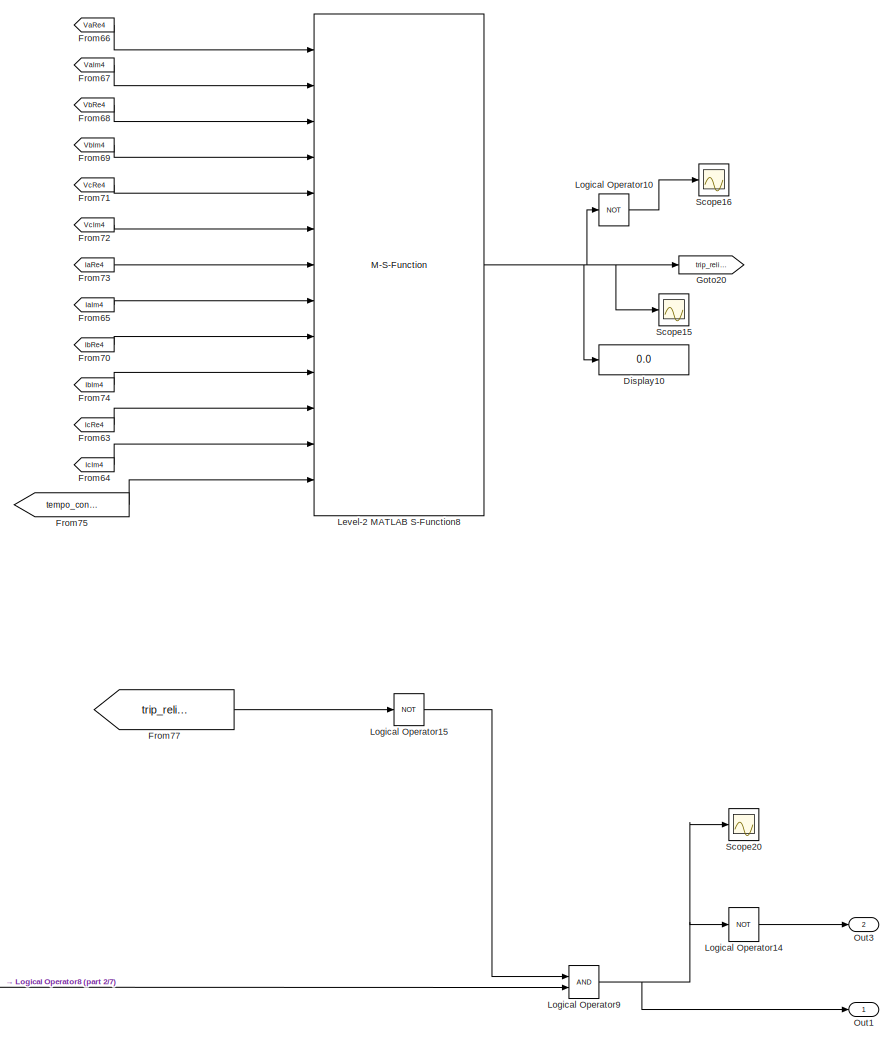
[diagram: RELIGADOR - part 1/7, top right region]
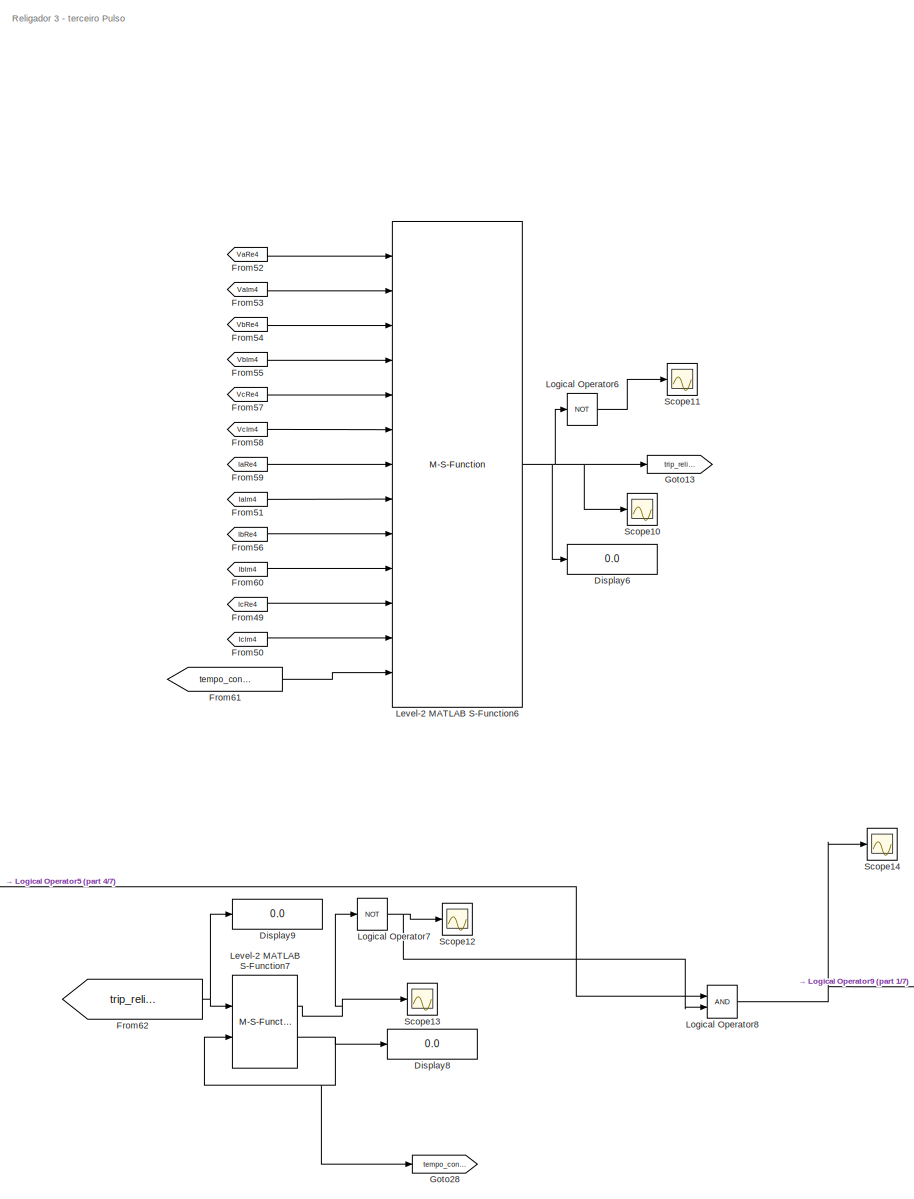
[diagram: RELIGADOR - part 2/7, central region]
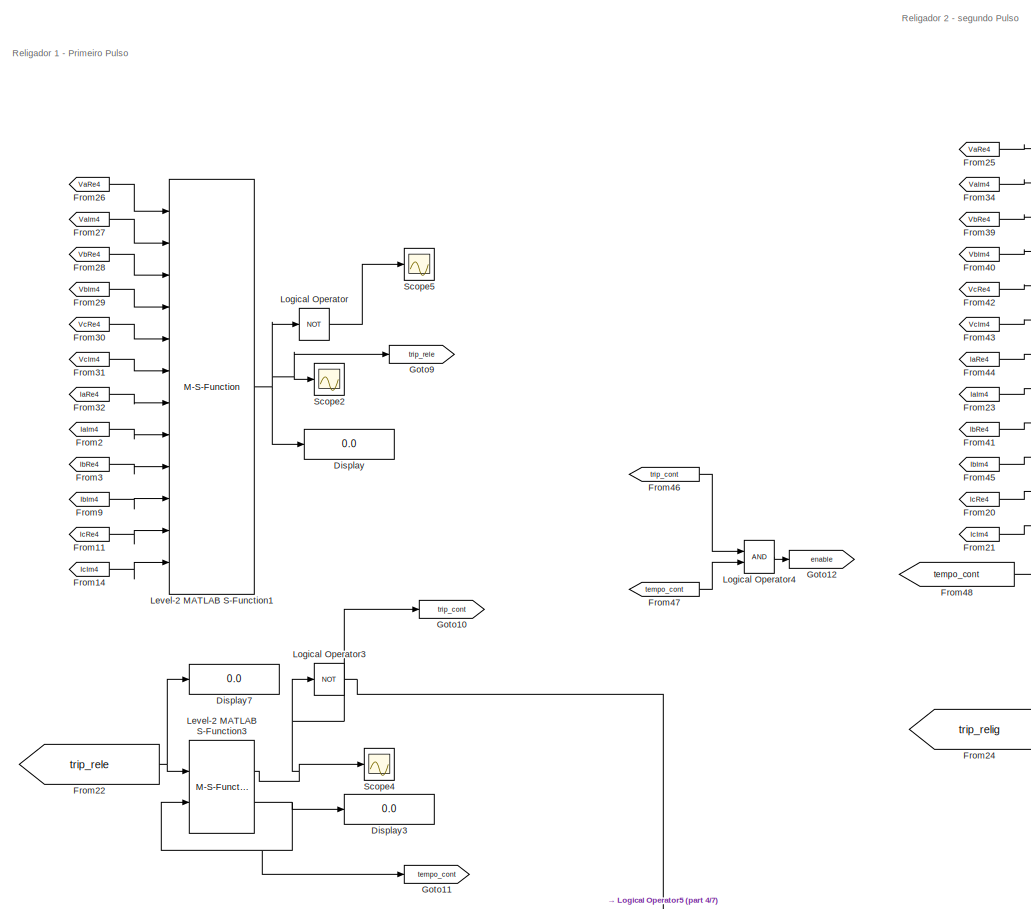
[diagram: RELIGADOR - part 3/7, middle left region]
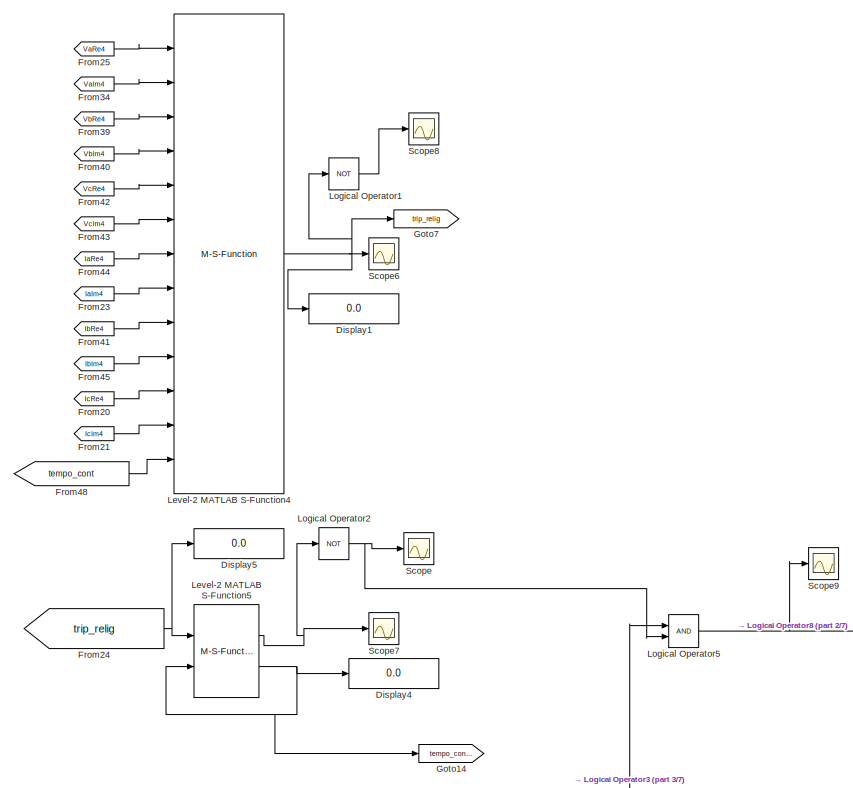
[diagram: RELIGADOR - part 4/7, central region]
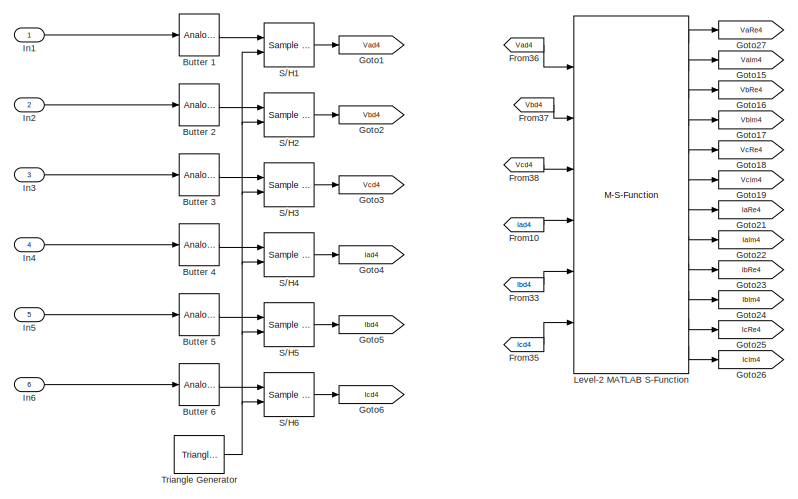
[diagram: RELIGADOR - part 5/7, top left region]
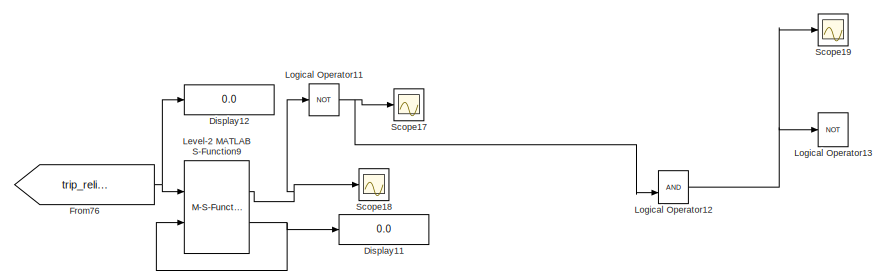
[diagram: RELIGADOR - part 6/7, bottom right region]
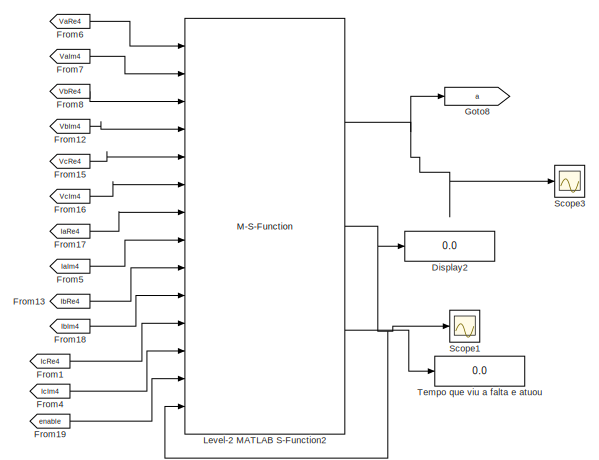
[diagram: RELIGADOR - part 7/7, bottom left region]
BLOCK [SubSystem] RELIGADOR
  Ports = [6, 2]
  RequestExecContextInheritance = off
BLOCK [Reference] RELIGADOR/Butter 1  REF=dsparch4/Analog
Filter Design
  Ports = [1, 1]
  SourceBlock = dsparch4/Analog\nFilter Design
  SourceProductBaseCode = DS
  SourceType = Analog Filter Design
BLOCK [Reference] RELIGADOR/Butter 2  REF=dsparch4/Analog
Filter Design
  Ports = [1, 1]
  SourceBlock = dsparch4/Analog\nFilter Design
  SourceProductBaseCode = DS
  SourceType = Analog Filter Design
BLOCK [Reference] RELIGADOR/Butter 3  REF=dsparch4/Analog
Filter Design
  Ports = [1, 1]
  SourceBlock = dsparch4/Analog\nFilter Design
  SourceProductBaseCode = DS
  SourceType = Analog Filter Design
BLOCK [Reference] RELIGADOR/Butter 4  REF=dsparch4/Analog
Filter Design
  Ports = [1, 1]
  SourceBlock = dsparch4/Analog\nFilter Design
  SourceProductBaseCode = DS
  SourceType = Analog Filter Design
BLOCK [Reference] RELIGADOR/Butter 5  REF=dsparch4/Analog
Filter Design
  Ports = [1, 1]
  SourceBlock = dsparch4/Analog\nFilter Design
  SourceProductBaseCode = DS
  SourceType = Analog Filter Design
BLOCK [Reference] RELIGADOR/Butter 6  REF=dsparch4/Analog
Filter Design
  Ports = [1, 1]
  SourceBlock = dsparch4/Analog\nFilter Design
  SourceProductBaseCode = DS
  SourceType = Analog Filter Design
BLOCK [Display] RELIGADOR/Display
  Decimation = 1
  Ports = [1]
BLOCK [Display] RELIGADOR/Display1
  Decimation = 1
  Ports = [1]
BLOCK [Display] RELIGADOR/Display10
  Decimation = 1
  Ports = [1]
BLOCK [Display] RELIGADOR/Display11
  Commented = on
  Decimation = 1
  Ports = [1]
BLOCK [Display] RELIGADOR/Display12
  Commented = on
  Decimation = 1
  Ports = [1]
BLOCK [Display] RELIGADOR/Display2
  Commented = on
  Decimation = 1
  Ports = [1]
BLOCK [Display] RELIGADOR/Display3
  Decimation = 1
  Ports = [1]
BLOCK [Display] RELIGADOR/Display4
  Decimation = 1
  Ports = [1]
BLOCK [Display] RELIGADOR/Display5
  Decimation = 1
  Ports = [1]
BLOCK [Display] RELIGADOR/Display6
  Decimation = 1
  Ports = [1]
BLOCK [Display] RELIGADOR/Display7
  Decimation = 1
  Ports = [1]
BLOCK [Display] RELIGADOR/Display8
  Decimation = 1
  Ports = [1]
BLOCK [Display] RELIGADOR/Display9
  Decimation = 1
  Ports = [1]
BLOCK [From] RELIGADOR/From1
  Commented = on
  GotoTag = IcRe4
BLOCK [From] RELIGADOR/From10
  GotoTag = Iad4
BLOCK [From] RELIGADOR/From11
  GotoTag = IcRe4
BLOCK [From] RELIGADOR/From12
  Commented = on
  GotoTag = VbIm4
BLOCK [From] RELIGADOR/From13
  Commented = on
  GotoTag = IbRe4
BLOCK [From] RELIGADOR/From14
  GotoTag = IcIm4
BLOCK [From] RELIGADOR/From15
  Commented = on
  GotoTag = VcRe4
BLOCK [From] RELIGADOR/From16
  Commented = on
  GotoTag = VcIm4
BLOCK [From] RELIGADOR/From17
  Commented = on
  GotoTag = IaRe4
BLOCK [From] RELIGADOR/From18
  Commented = on
  GotoTag = IbIm4
BLOCK [From] RELIGADOR/From19
  Commented = on
  GotoTag = enable
BLOCK [From] RELIGADOR/From2
  GotoTag = IaIm4
BLOCK [From] RELIGADOR/From20
  GotoTag = IcRe4
BLOCK [From] RELIGADOR/From21
  GotoTag = IcIm4
BLOCK [From] RELIGADOR/From22
  GotoTag = trip_rele
BLOCK [From] RELIGADOR/From23
  GotoTag = IaIm4
BLOCK [From] RELIGADOR/From24
  GotoTag = trip_relig
BLOCK [From] RELIGADOR/From25
  GotoTag = VaRe4
BLOCK [From] RELIGADOR/From26
  GotoTag = VaRe4
BLOCK [From] RELIGADOR/From27
  GotoTag = VaIm4
BLOCK [From] RELIGADOR/From28
  GotoTag = VbRe4
BLOCK [From] RELIGADOR/From29
  GotoTag = VbIm4
BLOCK [From] RELIGADOR/From3
  GotoTag = IbRe4
BLOCK [From] RELIGADOR/From30
  GotoTag = VcRe4
BLOCK [From] RELIGADOR/From31
  GotoTag = VcIm4
BLOCK [From] RELIGADOR/From32
  GotoTag = IaRe4
BLOCK [From] RELIGADOR/From33
  GotoTag = Ibd4
BLOCK [From] RELIGADOR/From34
  GotoTag = VaIm4
BLOCK [From] RELIGADOR/From35
  GotoTag = Icd4
BLOCK [From] RELIGADOR/From36
  GotoTag = Vad4
BLOCK [From] RELIGADOR/From37
  GotoTag = Vbd4
BLOCK [From] RELIGADOR/From38
  GotoTag = Vcd4
BLOCK [From] RELIGADOR/From39
  GotoTag = VbRe4
BLOCK [From] RELIGADOR/From4
  Commented = on
  GotoTag = IcIm4
BLOCK [From] RELIGADOR/From40
  GotoTag = VbIm4
BLOCK [From] RELIGADOR/From41
  GotoTag = IbRe4
BLOCK [From] RELIGADOR/From42
  GotoTag = VcRe4
BLOCK [From] RELIGADOR/From43
  GotoTag = VcIm4
BLOCK [From] RELIGADOR/From44
  GotoTag = IaRe4
BLOCK [From] RELIGADOR/From45
  GotoTag = IbIm4
BLOCK [From] RELIGADOR/From46
  Commented = on
  GotoTag = trip_cont
BLOCK [From] RELIGADOR/From47
  Commented = on
  GotoTag = tempo_cont
BLOCK [From] RELIGADOR/From48
  GotoTag = tempo_cont
BLOCK [From] RELIGADOR/From49
  GotoTag = IcRe4
BLOCK [From] RELIGADOR/From5
  Commented = on
  GotoTag = IaIm4
BLOCK [From] RELIGADOR/From50
  GotoTag = IcIm4
BLOCK [From] RELIGADOR/From51
  GotoTag = IaIm4
BLOCK [From] RELIGADOR/From52
  GotoTag = VaRe4
BLOCK [From] RELIGADOR/From53
  GotoTag = VaIm4
BLOCK [From] RELIGADOR/From54
  GotoTag = VbRe4
BLOCK [From] RELIGADOR/From55
  GotoTag = VbIm4
BLOCK [From] RELIGADOR/From56
  GotoTag = IbRe4
BLOCK [From] RELIGADOR/From57
  GotoTag = VcRe4
BLOCK [From] RELIGADOR/From58
  GotoTag = VcIm4
BLOCK [From] RELIGADOR/From59
  GotoTag = IaRe4
BLOCK [From] RELIGADOR/From6
  Commented = on
  GotoTag = VaRe4
BLOCK [From] RELIGADOR/From60
  GotoTag = IbIm4
BLOCK [From] RELIGADOR/From61
  GotoTag = tempo_cont2
BLOCK [From] RELIGADOR/From62
  GotoTag = trip_relig2
BLOCK [From] RELIGADOR/From63
  GotoTag = IcRe4
BLOCK [From] RELIGADOR/From64
  GotoTag = IcIm4
BLOCK [From] RELIGADOR/From65
  GotoTag = IaIm4
BLOCK [From] RELIGADOR/From66
  GotoTag = VaRe4
BLOCK [From] RELIGADOR/From67
  GotoTag = VaIm4
BLOCK [From] RELIGADOR/From68
  GotoTag = VbRe4
BLOCK [From] RELIGADOR/From69
  GotoTag = VbIm4
BLOCK [From] RELIGADOR/From7
  Commented = on
  GotoTag = VaIm4
BLOCK [From] RELIGADOR/From70
  GotoTag = IbRe4
BLOCK [From] RELIGADOR/From71
  GotoTag = VcRe4
BLOCK [From] RELIGADOR/From72
  GotoTag = VcIm4
BLOCK [From] RELIGADOR/From73
  GotoTag = IaRe4
BLOCK [From] RELIGADOR/From74
  GotoTag = IbIm4
BLOCK [From] RELIGADOR/From75
  GotoTag = tempo_cont3
BLOCK [From] RELIGADOR/From76
  Commented = on
  GotoTag = trip_relig3
BLOCK [From] RELIGADOR/From77
  GotoTag = trip_relig3
BLOCK [From] RELIGADOR/From8
  Commented = on
  GotoTag = VbRe4
BLOCK [From] RELIGADOR/From9
  GotoTag = IbIm4
BLOCK [Goto] RELIGADOR/Goto1
  GotoTag = Vad4
BLOCK [Goto] RELIGADOR/Goto10
  Commented = on
  GotoTag = trip_cont
BLOCK [Goto] RELIGADOR/Goto11
  GotoTag = tempo_cont
BLOCK [Goto] RELIGADOR/Goto12
  Commented = on
  GotoTag = enable
BLOCK [Goto] RELIGADOR/Goto13
  GotoTag = trip_relig2
BLOCK [Goto] RELIGADOR/Goto14
  GotoTag = tempo_cont2
BLOCK [Goto] RELIGADOR/Goto15
  GotoTag = VaIm4
BLOCK [Goto] RELIGADOR/Goto16
  GotoTag = VbRe4
BLOCK [Goto] RELIGADOR/Goto17
  GotoTag = VbIm4
BLOCK [Goto] RELIGADOR/Goto18
  GotoTag = VcRe4
BLOCK [Goto] RELIGADOR/Goto19
  GotoTag = VcIm4
BLOCK [Goto] RELIGADOR/Goto2
  GotoTag = Vbd4
BLOCK [Goto] RELIGADOR/Goto20
  GotoTag = trip_relig3
BLOCK [Goto] RELIGADOR/Goto21
  GotoTag = IaRe4
BLOCK [Goto] RELIGADOR/Goto22
  GotoTag = IaIm4
BLOCK [Goto] RELIGADOR/Goto23
  GotoTag = IbRe4
BLOCK [Goto] RELIGADOR/Goto24
  GotoTag = IbIm4
BLOCK [Goto] RELIGADOR/Goto25
  GotoTag = IcRe4
BLOCK [Goto] RELIGADOR/Goto26
  GotoTag = IcIm4
BLOCK [Goto] RELIGADOR/Goto27
  GotoTag = VaRe4
BLOCK [Goto] RELIGADOR/Goto28
  GotoTag = tempo_cont3
BLOCK [Goto] RELIGADOR/Goto3
  GotoTag = Vcd4
BLOCK [Goto] RELIGADOR/Goto4
  GotoTag = Iad4
BLOCK [Goto] RELIGADOR/Goto5
  GotoTag = Ibd4
BLOCK [Goto] RELIGADOR/Goto6
  GotoTag = Icd4
BLOCK [Goto] RELIGADOR/Goto7
  GotoTag = trip_relig
BLOCK [Goto] RELIGADOR/Goto8
  Commented = on
  GotoTag = a
BLOCK [Goto] RELIGADOR/Goto9
  GotoTag = trip_rele
BLOCK [Inport] RELIGADOR/In1
BLOCK [Inport] RELIGADOR/In2
  Port = 2
BLOCK [Inport] RELIGADOR/In3
  Port = 3
BLOCK [Inport] RELIGADOR/In4
  Port = 4
BLOCK [Inport] RELIGADOR/In5
  Port = 5
BLOCK [Inport] RELIGADOR/In6
  Port = 6
BLOCK [M-S-Function] RELIGADOR/Level-2 MATLAB S-Function
  FunctionName = CossenoABB
  Ports = [6, 12]
BLOCK [M-S-Function] RELIGADOR/Level-2 MATLAB S-Function1
  FunctionName = OCR
  Parameters = Ip, TMS, tau, curvaf, Ipn, TMSn, taun, curvan
  Ports = [12, 1]
BLOCK [M-S-Function] RELIGADOR/Level-2 MATLAB S-Function2
  Commented = on
  FunctionName = religador2
  Parameters = 56,0.05,pi/2,2,16.8,0.12,pi/6,1
  Ports = [14, 3]
BLOCK [M-S-Function] RELIGADOR/Level-2 MATLAB S-Function3
  FunctionName = contador
  Ports = [2, 2]
BLOCK [M-S-Function] RELIGADOR/Level-2 MATLAB S-Function4
  FunctionName = OCR2
  Parameters = 56,0.05,0,1,16.8,0.12,pi/2,1
  Ports = [13, 1]
BLOCK [M-S-Function] RELIGADOR/Level-2 MATLAB S-Function5
  FunctionName = contador
  Ports = [2, 2]
BLOCK [M-S-Function] RELIGADOR/Level-2 MATLAB S-Function6
  FunctionName = OCR3
  Parameters = 56,0.05,0,1,16.8,0.12,pi/2,1
  Ports = [13, 1]
BLOCK [M-S-Function] RELIGADOR/Level-2 MATLAB S-Function7
  FunctionName = contador2
  Ports = [2, 2]
BLOCK [M-S-Function] RELIGADOR/Level-2 MATLAB S-Function8
  FunctionName = OCR4
  Parameters = 56,0.05,0,1,16.8,0.12,pi/2,1
  Ports = [13, 1]
BLOCK [M-S-Function] RELIGADOR/Level-2 MATLAB S-Function9
  Commented = on
  FunctionName = contador2
  Ports = [2, 2]
BLOCK [Logic] RELIGADOR/Logical Operator
  AllPortsSameDT = off
  Operator = NOT
  Ports = [1, 1]
BLOCK [Logic] RELIGADOR/Logical Operator1
  AllPortsSameDT = off
  Operator = NOT
  Ports = [1, 1]
BLOCK [Logic] RELIGADOR/Logical Operator10
  AllPortsSameDT = off
  Operator = NOT
  Ports = [1, 1]
BLOCK [Logic] RELIGADOR/Logical Operator11
  AllPortsSameDT = off
  Commented = on
  Operator = NOT
  Ports = [1, 1]
BLOCK [Logic] RELIGADOR/Logical Operator12
  AllPortsSameDT = off
  Commented = on
  Ports = [2, 1]
BLOCK [Logic] RELIGADOR/Logical Operator13
  AllPortsSameDT = off
  Commented = on
  Operator = NOT
  Ports = [1, 1]
BLOCK [Logic] RELIGADOR/Logical Operator14
  AllPortsSameDT = off
  Operator = NOT
  Ports = [1, 1]
BLOCK [Logic] RELIGADOR/Logical Operator15
  AllPortsSameDT = off
  Operator = NOT
  Ports = [1, 1]
BLOCK [Logic] RELIGADOR/Logical Operator2
  AllPortsSameDT = off
  Operator = NOT
  Ports = [1, 1]
BLOCK [Logic] RELIGADOR/Logical Operator3
  AllPortsSameDT = off
  Operator = NOT
  Ports = [1, 1]
BLOCK [Logic] RELIGADOR/Logical Operator4
  AllPortsSameDT = off
  Commented = on
  Ports = [2, 1]
BLOCK [Logic] RELIGADOR/Logical Operator5
  AllPortsSameDT = off
  Ports = [2, 1]
BLOCK [Logic] RELIGADOR/Logical Operator6
  AllPortsSameDT = off
  Operator = NOT
  Ports = [1, 1]
BLOCK [Logic] RELIGADOR/Logical Operator7
  AllPortsSameDT = off
  Operator = NOT
  Ports = [1, 1]
BLOCK [Logic] RELIGADOR/Logical Operator8
  AllPortsSameDT = off
  Ports = [2, 1]
BLOCK [Logic] RELIGADOR/Logical Operator9
  AllPortsSameDT = off
  Ports = [2, 1]
BLOCK [Outport] RELIGADOR/Out1
  VectorParamsAs1DForOutWhenUnconnected = off
BLOCK [Outport] RELIGADOR/Out3
  Port = 2
  VectorParamsAs1DForOutWhenUnconnected = off
BLOCK [Reference] RELIGADOR/S//H1  REF=spsSampleandHoldLib/Sample and
Hold
  Ports = [2, 1]
  SourceBlock = spsSampleandHoldLib/Sample and\nHold
  SourceProductBaseCode = PS
  SourceType = Sample and Hold
BLOCK [Reference] RELIGADOR/S//H2  REF=spsSampleandHoldLib/Sample and
Hold
  Ports = [2, 1]
  SourceBlock = spsSampleandHoldLib/Sample and\nHold
  SourceProductBaseCode = PS
  SourceType = Sample and Hold
BLOCK [Reference] RELIGADOR/S//H3  REF=spsSampleandHoldLib/Sample and
Hold
  Ports = [2, 1]
  SourceBlock = spsSampleandHoldLib/Sample and\nHold
  SourceProductBaseCode = PS
  SourceType = Sample and Hold
BLOCK [Reference] RELIGADOR/S//H4  REF=spsSampleandHoldLib/Sample and
Hold
  Ports = [2, 1]
  SourceBlock = spsSampleandHoldLib/Sample and\nHold
  SourceProductBaseCode = PS
  SourceType = Sample and Hold
BLOCK [Reference] RELIGADOR/S//H5  REF=spsSampleandHoldLib/Sample and
Hold
  Ports = [2, 1]
  SourceBlock = spsSampleandHoldLib/Sample and\nHold
  SourceProductBaseCode = PS
  SourceType = Sample and Hold
BLOCK [Reference] RELIGADOR/S//H6  REF=spsSampleandHoldLib/Sample and
Hold
  Ports = [2, 1]
  SourceBlock = spsSampleandHoldLib/Sample and\nHold
  SourceProductBaseCode = PS
  SourceType = Sample and Hold
BLOCK [Scope] RELIGADOR/Scope
  Floating = off
  NumInputPorts = 1
  Ports = [1]
  ScopeSpecificationString = Simulink.scopes.TimeScopeBlockCfg('CurrentConfiguration', extmgr.ConfigurationSet(extmgr.Configuration('Core','General UI',true),extmgr.Configuration('Core','Source UI',true),extmgr.Configuration('Sources','WiredSimulink',true,'DataLoggingVariableName','ScopeData8'),extmgr.Configuration('Visuals','Time Domain',true,'SerializedDisplays',{struct('MinYLimReal','-0.125','MaxYLimReal','1.125','YLabelRe...<+1429ch>
BLOCK [Scope] RELIGADOR/Scope1
  Commented = on
  Floating = off
  NumInputPorts = 1
  Ports = [1]
  ScopeSpecificationString = Simulink.scopes.TimeScopeBlockCfg('CurrentConfiguration', extmgr.ConfigurationSet(extmgr.Configuration('Core','General UI',true),extmgr.Configuration('Core','Source UI',true),extmgr.Configuration('Sources','WiredSimulink',true,'DataLoggingVariableName','ScopeData2'),extmgr.Configuration('Visuals','Time Domain',true,'SerializedDisplays',{struct('MinYLimReal','-5.26676','MaxYLimReal','47.40081','YLa...<+1436ch>
BLOCK [Scope] RELIGADOR/Scope10
  Floating = off
  NumInputPorts = 1
  Ports = [1]
  ScopeSpecificationString = Simulink.scopes.TimeScopeBlockCfg('CurrentConfiguration', extmgr.ConfigurationSet(extmgr.Configuration('Core','General UI',true),extmgr.Configuration('Core','Source UI',true),extmgr.Configuration('Sources','WiredSimulink',true,'DataLoggingVariableName','ScopeData2'),extmgr.Configuration('Visuals','Time Domain',true,'SerializedDisplays',{struct('MinYLimReal','-0.25','MaxYLimReal','2.25','YLabelReal...<+1438ch>
BLOCK [Scope] RELIGADOR/Scope11
  Floating = off
  NumInputPorts = 1
  Ports = [1]
  ScopeSpecificationString = Simulink.scopes.TimeScopeBlockCfg('CurrentConfiguration', extmgr.ConfigurationSet(extmgr.Configuration('Core','General UI',true),extmgr.Configuration('Core','Source UI',true),extmgr.Configuration('Sources','WiredSimulink',true,'DataLoggingVariableName','ScopeData3'),extmgr.Configuration('Visuals','Time Domain',true,'SerializedDisplays',{struct('MinYLimReal','-0.125','MaxYLimReal','1.125','YLabelRe...<+1433ch>
BLOCK [Scope] RELIGADOR/Scope12
  Floating = off
  NumInputPorts = 1
  Ports = [1]
  ScopeSpecificationString = Simulink.scopes.TimeScopeBlockCfg('CurrentConfiguration', extmgr.ConfigurationSet(extmgr.Configuration('Core','General UI',true),extmgr.Configuration('Core','Source UI',true),extmgr.Configuration('Sources','WiredSimulink',true,'DataLoggingVariableName','ScopeData4'),extmgr.Configuration('Visuals','Time Domain',true,'SerializedDisplays',{struct('MinYLimReal','-0.125','MaxYLimReal','1.125','YLabelRe...<+1429ch>
BLOCK [Scope] RELIGADOR/Scope13
  Floating = off
  NumInputPorts = 1
  Ports = [1]
  ScopeSpecificationString = Simulink.scopes.TimeScopeBlockCfg('CurrentConfiguration', extmgr.ConfigurationSet(extmgr.Configuration('Core','General UI',true),extmgr.Configuration('Core','Source UI',true),extmgr.Configuration('Sources','WiredSimulink',true,'DataLoggingVariableName','ScopeData5'),extmgr.Configuration('Visuals','Time Domain',true,'SerializedDisplays',{struct('MinYLimReal','-1.00000','MaxYLimReal','1.00000','YLab...<+1490ch>
BLOCK [Scope] RELIGADOR/Scope14
  Floating = off
  NumInputPorts = 1
  Ports = [1]
  ScopeSpecificationString = Simulink.scopes.TimeScopeBlockCfg('CurrentConfiguration', extmgr.ConfigurationSet(extmgr.Configuration('Core','General UI',true),extmgr.Configuration('Core','Source UI',true),extmgr.Configuration('Sources','WiredSimulink',true,'DataLoggingVariableName','ScopeData6'),extmgr.Configuration('Visuals','Time Domain',true,'SerializedDisplays',{struct('MinYLimReal','-0.125','MaxYLimReal','1.125','YLabelRe...<+1453ch>
BLOCK [Scope] RELIGADOR/Scope15
  Floating = off
  NumInputPorts = 1
  Ports = [1]
  ScopeSpecificationString = Simulink.scopes.TimeScopeBlockCfg('CurrentConfiguration', extmgr.ConfigurationSet(extmgr.Configuration('Core','General UI',true),extmgr.Configuration('Core','Source UI',true),extmgr.Configuration('Sources','WiredSimulink',true,'DataLoggingVariableName','ScopeData7'),extmgr.Configuration('Visuals','Time Domain',true,'SerializedDisplays',{struct('MinYLimReal','-0.25','MaxYLimReal','2.25','YLabelReal...<+1438ch>
BLOCK [Scope] RELIGADOR/Scope16
  Floating = off
  NumInputPorts = 1
  Ports = [1]
  ScopeSpecificationString = Simulink.scopes.TimeScopeBlockCfg('CurrentConfiguration', extmgr.ConfigurationSet(extmgr.Configuration('Core','General UI',true),extmgr.Configuration('Core','Source UI',true),extmgr.Configuration('Sources','WiredSimulink',true,'DataLoggingVariableName','ScopeData8'),extmgr.Configuration('Visuals','Time Domain',true,'SerializedDisplays',{struct('MinYLimReal','-0.125','MaxYLimReal','1.125','YLabelRe...<+1433ch>
BLOCK [Scope] RELIGADOR/Scope17
  Commented = on
  Floating = off
  NumInputPorts = 1
  Ports = [1]
  ScopeSpecificationString = Simulink.scopes.TimeScopeBlockCfg('CurrentConfiguration', extmgr.ConfigurationSet(extmgr.Configuration('Core','General UI',true),extmgr.Configuration('Core','Source UI',true),extmgr.Configuration('Sources','WiredSimulink',true,'DataLoggingVariableName','ScopeData9'),extmgr.Configuration('Visuals','Time Domain',true,'SerializedDisplays',{struct('MinYLimReal','0.9','MaxYLimReal','1.1','YLabelReal','...<+1408ch>
BLOCK [Scope] RELIGADOR/Scope18
  Commented = on
  Floating = off
  NumInputPorts = 1
  Ports = [1]
  ScopeSpecificationString = Simulink.scopes.TimeScopeBlockCfg('CurrentConfiguration', extmgr.ConfigurationSet(extmgr.Configuration('Core','General UI',true),extmgr.Configuration('Core','Source UI',true),extmgr.Configuration('Sources','WiredSimulink',true,'DataLoggingVariableName','ScopeData10'),extmgr.Configuration('Visuals','Time Domain',true,'SerializedDisplays',{struct('MinYLimReal','-1.00000','MaxYLimReal','1.00000','YLa...<+1491ch>
BLOCK [Scope] RELIGADOR/Scope19
  Commented = on
  Floating = off
  NumInputPorts = 1
  Ports = [1]
  ScopeSpecificationString = Simulink.scopes.TimeScopeBlockCfg('CurrentConfiguration', extmgr.ConfigurationSet(extmgr.Configuration('Core','General UI',true),extmgr.Configuration('Core','Source UI',true),extmgr.Configuration('Sources','WiredSimulink',true,'DataLoggingVariableName','ScopeData11'),extmgr.Configuration('Visuals','Time Domain',true,'SerializedDisplays',{struct('MinYLimReal','-0.125','MaxYLimReal','1.125','YLabelR...<+1450ch>
BLOCK [Scope] RELIGADOR/Scope2
  Floating = off
  NumInputPorts = 1
  Ports = [1]
  ScopeSpecificationString = Simulink.scopes.TimeScopeBlockCfg('CurrentConfiguration', extmgr.ConfigurationSet(extmgr.Configuration('Core','General UI',true),extmgr.Configuration('Core','Source UI',true),extmgr.Configuration('Sources','WiredSimulink',true,'DataLoggingVariableName','ScopeData1'),extmgr.Configuration('Visuals','Time Domain',true,'SerializedDisplays',{struct('MinYLimReal','-0.25','MaxYLimReal','2.25','YLabelReal...<+1438ch>
BLOCK [Scope] RELIGADOR/Scope20
  Floating = off
  NumInputPorts = 1
  Ports = [1]
  ScopeSpecificationString = Simulink.scopes.TimeScopeBlockCfg('CurrentConfiguration', extmgr.ConfigurationSet(extmgr.Configuration('Core','General UI',true),extmgr.Configuration('Core','Source UI',true),extmgr.Configuration('Sources','WiredSimulink',true,'DataLoggingVariableName','ScopeData12'),extmgr.Configuration('Visuals','Time Domain',true,'SerializedDisplays',{struct('MinYLimReal','-0.125','MaxYLimReal','1.125','YLabelR...<+1437ch>
BLOCK [Scope] RELIGADOR/Scope3
  Commented = on
  Floating = off
  NumInputPorts = 1
  Ports = [1]
  ScopeSpecificationString = Simulink.scopes.TimeScopeBlockCfg('CurrentConfiguration', extmgr.ConfigurationSet(extmgr.Configuration('Core','General UI',true),extmgr.Configuration('Core','Source UI',true),extmgr.Configuration('Sources','WiredSimulink',true,'DataLoggingVariableName','ScopeData1'),extmgr.Configuration('Visuals','Time Domain',true,'SerializedDisplays',{struct('MinYLimReal','-0.125','MaxYLimReal','1.125','YLabelRe...<+1447ch>
BLOCK [Scope] RELIGADOR/Scope4
  Floating = off
  NumInputPorts = 1
  Ports = [1]
  ScopeSpecificationString = Simulink.scopes.TimeScopeBlockCfg('CurrentConfiguration', extmgr.ConfigurationSet(extmgr.Configuration('Core','General UI',true),extmgr.Configuration('Core','Source UI',true),extmgr.Configuration('Sources','WiredSimulink',true,'DataLoggingVariableName','ScopeData3'),extmgr.Configuration('Visuals','Time Domain',true,'SerializedDisplays',{struct('MinYLimReal','-0.125','MaxYLimReal','1.125','YLabelRe...<+1459ch>
BLOCK [Scope] RELIGADOR/Scope5
  Floating = off
  NumInputPorts = 1
  Ports = [1]
  ScopeSpecificationString = Simulink.scopes.TimeScopeBlockCfg('CurrentConfiguration', extmgr.ConfigurationSet(extmgr.Configuration('Core','General UI',true),extmgr.Configuration('Core','Source UI',true),extmgr.Configuration('Sources','WiredSimulink',true,'DataLoggingVariableName','ScopeData4'),extmgr.Configuration('Visuals','Time Domain',true,'SerializedDisplays',{struct('MinYLimReal','-0.125','MaxYLimReal','1.125','YLabelRe...<+1433ch>
BLOCK [Scope] RELIGADOR/Scope6
  Floating = off
  NumInputPorts = 1
  Ports = [1]
  ScopeSpecificationString = Simulink.scopes.TimeScopeBlockCfg('CurrentConfiguration', extmgr.ConfigurationSet(extmgr.Configuration('Core','General UI',true),extmgr.Configuration('Core','Source UI',true),extmgr.Configuration('Sources','WiredSimulink',true,'DataLoggingVariableName','ScopeData5'),extmgr.Configuration('Visuals','Time Domain',true,'SerializedDisplays',{struct('MinYLimReal','-0.25','MaxYLimReal','2.25','YLabelReal...<+1438ch>
BLOCK [Scope] RELIGADOR/Scope7
  Floating = off
  NumInputPorts = 1
  Ports = [1]
  ScopeSpecificationString = Simulink.scopes.TimeScopeBlockCfg('CurrentConfiguration', extmgr.ConfigurationSet(extmgr.Configuration('Core','General UI',true),extmgr.Configuration('Core','Source UI',true),extmgr.Configuration('Sources','WiredSimulink',true,'DataLoggingVariableName','ScopeData6'),extmgr.Configuration('Visuals','Time Domain',true,'SerializedDisplays',{struct('MinYLimReal','-1.00000','MaxYLimReal','1.00000','YLab...<+1490ch>
BLOCK [Scope] RELIGADOR/Scope8
  Floating = off
  NumInputPorts = 1
  Ports = [1]
  ScopeSpecificationString = Simulink.scopes.TimeScopeBlockCfg('CurrentConfiguration', extmgr.ConfigurationSet(extmgr.Configuration('Core','General UI',true),extmgr.Configuration('Core','Source UI',true),extmgr.Configuration('Sources','WiredSimulink',true,'DataLoggingVariableName','ScopeData7'),extmgr.Configuration('Visuals','Time Domain',true,'SerializedDisplays',{struct('MinYLimReal','-0.125','MaxYLimReal','1.125','YLabelRe...<+1433ch>
BLOCK [Scope] RELIGADOR/Scope9
  Floating = off
  NumInputPorts = 1
  Ports = [1]
  ScopeSpecificationString = Simulink.scopes.TimeScopeBlockCfg('CurrentConfiguration', extmgr.ConfigurationSet(extmgr.Configuration('Core','General UI',true),extmgr.Configuration('Core','Source UI',true),extmgr.Configuration('Sources','WiredSimulink',true,'DataLoggingVariableName','ScopeData9'),extmgr.Configuration('Visuals','Time Domain',true,'SerializedDisplays',{struct('MinYLimReal','-0.125','MaxYLimReal','1.125','YLabelRe...<+1448ch>
BLOCK [Display] RELIGADOR/Tempo que viu a falta e atuou
  Commented = on
  Decimation = 1
  Ports = [1]
BLOCK [Reference] RELIGADOR/Triangle Generator  REF=spsTriangleGeneratorLib/Triangle
Generator
  Ports = [0, 1]
  SourceBlock = spsTriangleGeneratorLib/Triangle\nGenerator
  SourceProductBaseCode = PS
  SourceType = Triangle Generator
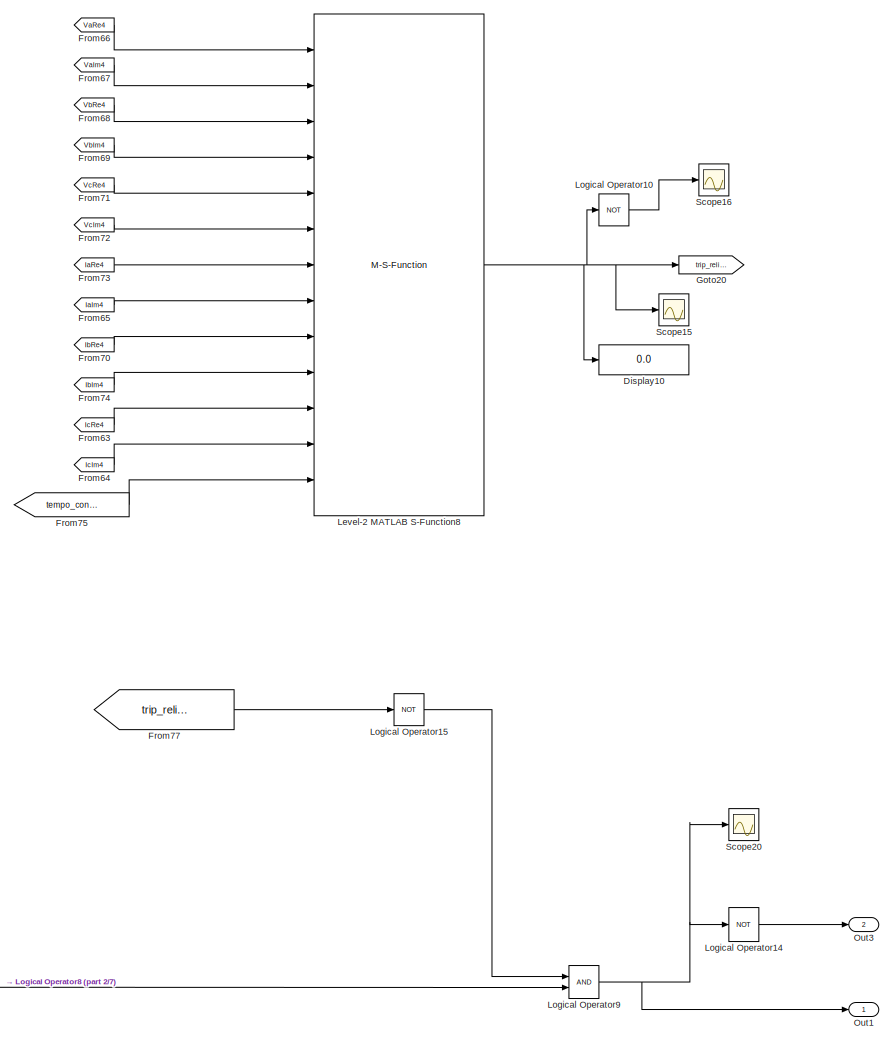
[diagram: RELIGADOR1 - part 1/7, top right region]
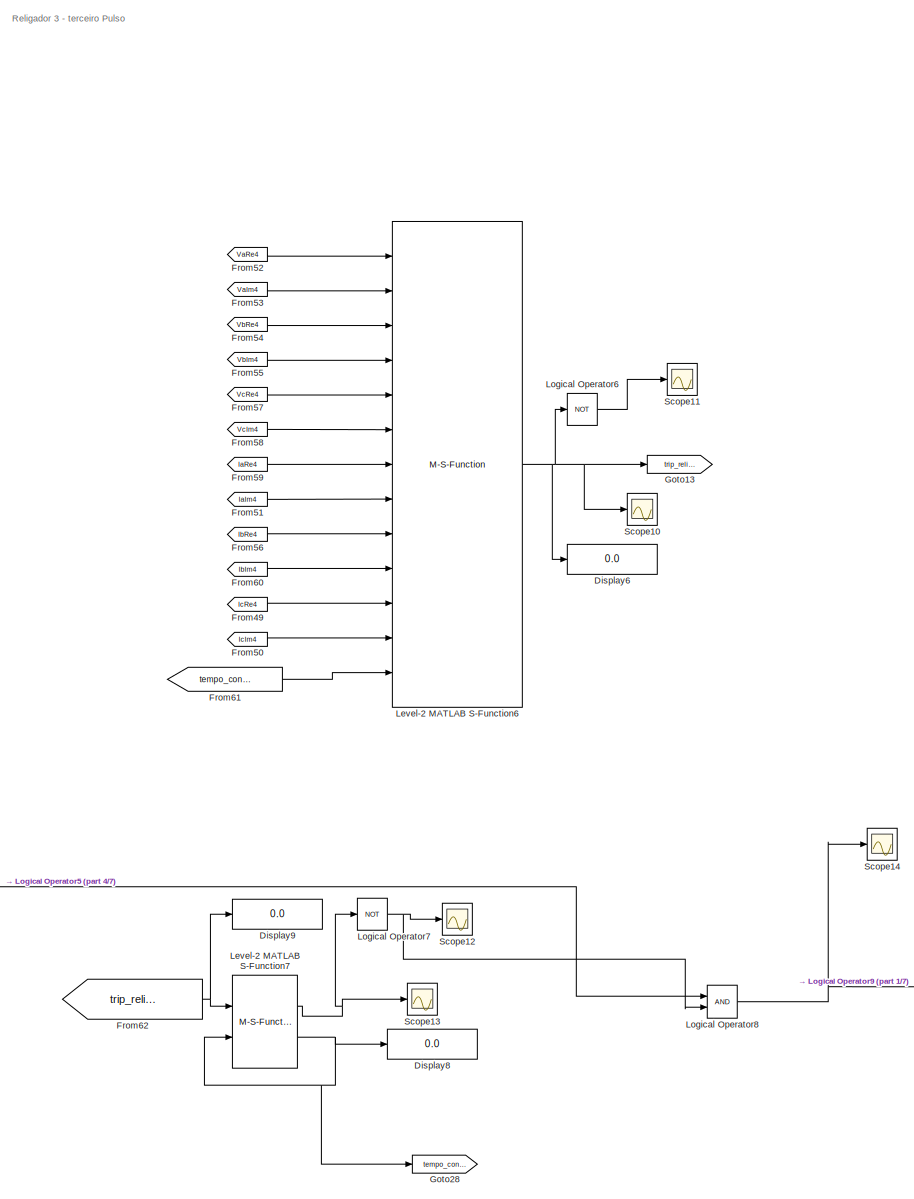
[diagram: RELIGADOR1 - part 2/7, central region]
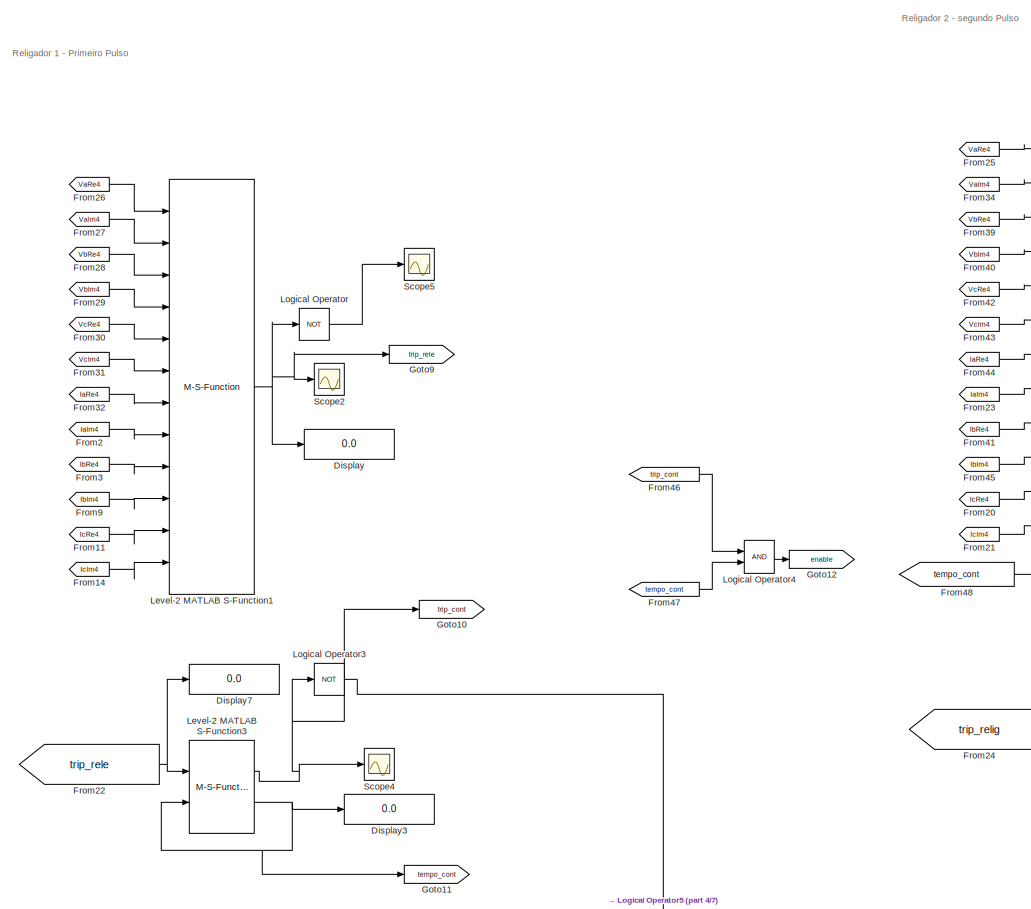
[diagram: RELIGADOR1 - part 3/7, middle left region]
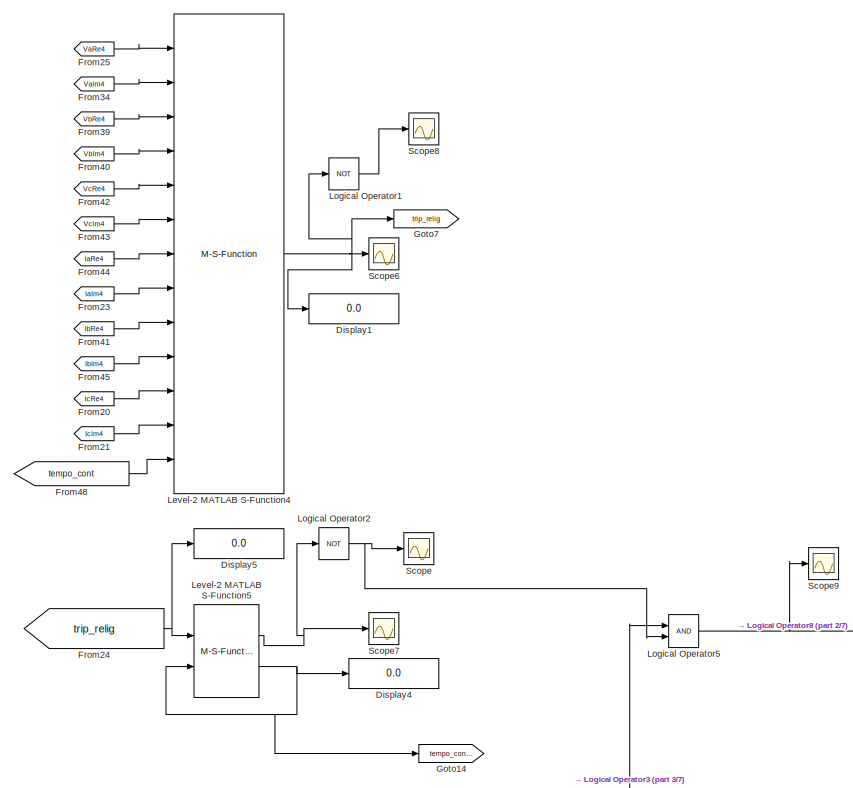
[diagram: RELIGADOR1 - part 4/7, central region]
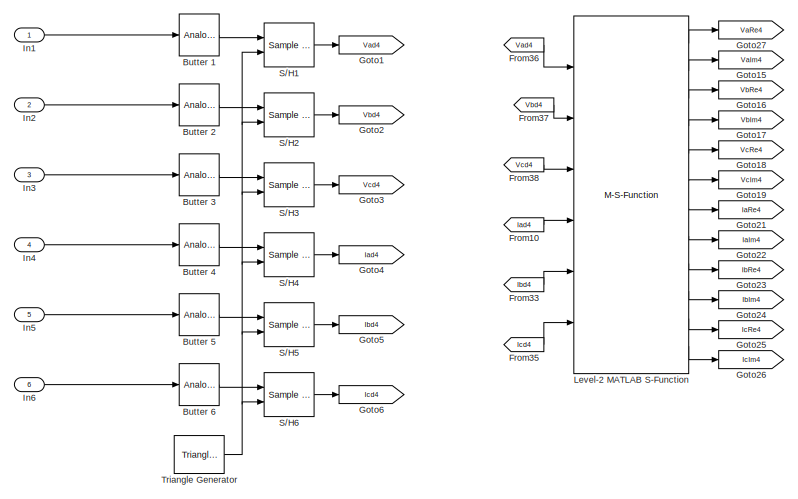
[diagram: RELIGADOR1 - part 5/7, top left region]
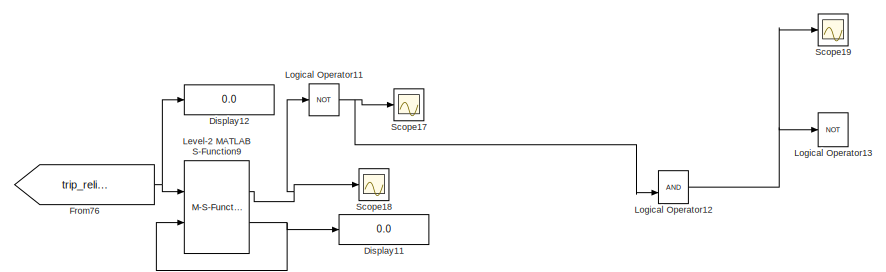
[diagram: RELIGADOR1 - part 6/7, bottom right region]
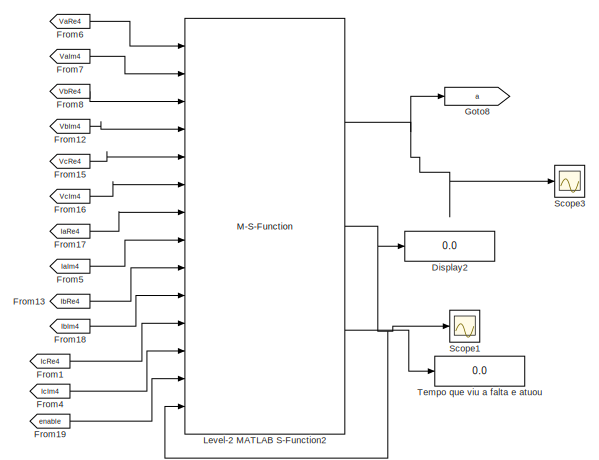
[diagram: RELIGADOR1 - part 7/7, bottom left region]
BLOCK [SubSystem] RELIGADOR1
  Ports = [6, 2]
  RequestExecContextInheritance = off
BLOCK [Reference] RELIGADOR1/Butter 1  REF=dsparch4/Analog
Filter Design
  Ports = [1, 1]
  SourceBlock = dsparch4/Analog\nFilter Design
  SourceProductBaseCode = DS
  SourceType = Analog Filter Design
BLOCK [Reference] RELIGADOR1/Butter 2  REF=dsparch4/Analog
Filter Design
  Ports = [1, 1]
  SourceBlock = dsparch4/Analog\nFilter Design
  SourceProductBaseCode = DS
  SourceType = Analog Filter Design
BLOCK [Reference] RELIGADOR1/Butter 3  REF=dsparch4/Analog
Filter Design
  Ports = [1, 1]
  SourceBlock = dsparch4/Analog\nFilter Design
  SourceProductBaseCode = DS
  SourceType = Analog Filter Design
BLOCK [Reference] RELIGADOR1/Butter 4  REF=dsparch4/Analog
Filter Design
  Ports = [1, 1]
  SourceBlock = dsparch4/Analog\nFilter Design
  SourceProductBaseCode = DS
  SourceType = Analog Filter Design
BLOCK [Reference] RELIGADOR1/Butter 5  REF=dsparch4/Analog
Filter Design
  Ports = [1, 1]
  SourceBlock = dsparch4/Analog\nFilter Design
  SourceProductBaseCode = DS
  SourceType = Analog Filter Design
BLOCK [Reference] RELIGADOR1/Butter 6  REF=dsparch4/Analog
Filter Design
  Ports = [1, 1]
  SourceBlock = dsparch4/Analog\nFilter Design
  SourceProductBaseCode = DS
  SourceType = Analog Filter Design
BLOCK [Display] RELIGADOR1/Display
  Decimation = 1
  Ports = [1]
BLOCK [Display] RELIGADOR1/Display1
  Decimation = 1
  Ports = [1]
BLOCK [Display] RELIGADOR1/Display10
  Decimation = 1
  Ports = [1]
BLOCK [Display] RELIGADOR1/Display11
  Commented = on
  Decimation = 1
  Ports = [1]
BLOCK [Display] RELIGADOR1/Display12
  Commented = on
  Decimation = 1
  Ports = [1]
BLOCK [Display] RELIGADOR1/Display2
  Commented = on
  Decimation = 1
  Ports = [1]
BLOCK [Display] RELIGADOR1/Display3
  Decimation = 1
  Ports = [1]
BLOCK [Display] RELIGADOR1/Display4
  Decimation = 1
  Ports = [1]
BLOCK [Display] RELIGADOR1/Display5
  Decimation = 1
  Ports = [1]
BLOCK [Display] RELIGADOR1/Display6
  Decimation = 1
  Ports = [1]
BLOCK [Display] RELIGADOR1/Display7
  Decimation = 1
  Ports = [1]
BLOCK [Display] RELIGADOR1/Display8
  Decimation = 1
  Ports = [1]
BLOCK [Display] RELIGADOR1/Display9
  Decimation = 1
  Ports = [1]
BLOCK [From] RELIGADOR1/From1
  Commented = on
  GotoTag = IcRe4
BLOCK [From] RELIGADOR1/From10
  GotoTag = Iad4
BLOCK [From] RELIGADOR1/From11
  GotoTag = IcRe4
BLOCK [From] RELIGADOR1/From12
  Commented = on
  GotoTag = VbIm4
BLOCK [From] RELIGADOR1/From13
  Commented = on
  GotoTag = IbRe4
BLOCK [From] RELIGADOR1/From14
  GotoTag = IcIm4
BLOCK [From] RELIGADOR1/From15
  Commented = on
  GotoTag = VcRe4
BLOCK [From] RELIGADOR1/From16
  Commented = on
  GotoTag = VcIm4
BLOCK [From] RELIGADOR1/From17
  Commented = on
  GotoTag = IaRe4
BLOCK [From] RELIGADOR1/From18
  Commented = on
  GotoTag = IbIm4
BLOCK [From] RELIGADOR1/From19
  Commented = on
  GotoTag = enable
BLOCK [From] RELIGADOR1/From2
  GotoTag = IaIm4
BLOCK [From] RELIGADOR1/From20
  GotoTag = IcRe4
BLOCK [From] RELIGADOR1/From21
  GotoTag = IcIm4
BLOCK [From] RELIGADOR1/From22
  GotoTag = trip_rele
BLOCK [From] RELIGADOR1/From23
  GotoTag = IaIm4
BLOCK [From] RELIGADOR1/From24
  GotoTag = trip_relig
BLOCK [From] RELIGADOR1/From25
  GotoTag = VaRe4
BLOCK [From] RELIGADOR1/From26
  GotoTag = VaRe4
BLOCK [From] RELIGADOR1/From27
  GotoTag = VaIm4
BLOCK [From] RELIGADOR1/From28
  GotoTag = VbRe4
BLOCK [From] RELIGADOR1/From29
  GotoTag = VbIm4
BLOCK [From] RELIGADOR1/From3
  GotoTag = IbRe4
BLOCK [From] RELIGADOR1/From30
  GotoTag = VcRe4
BLOCK [From] RELIGADOR1/From31
  GotoTag = VcIm4
BLOCK [From] RELIGADOR1/From32
  GotoTag = IaRe4
BLOCK [From] RELIGADOR1/From33
  GotoTag = Ibd4
BLOCK [From] RELIGADOR1/From34
  GotoTag = VaIm4
BLOCK [From] RELIGADOR1/From35
  GotoTag = Icd4
BLOCK [From] RELIGADOR1/From36
  GotoTag = Vad4
BLOCK [From] RELIGADOR1/From37
  GotoTag = Vbd4
BLOCK [From] RELIGADOR1/From38
  GotoTag = Vcd4
BLOCK [From] RELIGADOR1/From39
  GotoTag = VbRe4
BLOCK [From] RELIGADOR1/From4
  Commented = on
  GotoTag = IcIm4
BLOCK [From] RELIGADOR1/From40
  GotoTag = VbIm4
BLOCK [From] RELIGADOR1/From41
  GotoTag = IbRe4
BLOCK [From] RELIGADOR1/From42
  GotoTag = VcRe4
BLOCK [From] RELIGADOR1/From43
  GotoTag = VcIm4
BLOCK [From] RELIGADOR1/From44
  GotoTag = IaRe4
BLOCK [From] RELIGADOR1/From45
  GotoTag = IbIm4
BLOCK [From] RELIGADOR1/From46
  Commented = on
  GotoTag = trip_cont
BLOCK [From] RELIGADOR1/From47
  Commented = on
  GotoTag = tempo_cont
BLOCK [From] RELIGADOR1/From48
  GotoTag = tempo_cont
BLOCK [From] RELIGADOR1/From49
  GotoTag = IcRe4
BLOCK [From] RELIGADOR1/From5
  Commented = on
  GotoTag = IaIm4
BLOCK [From] RELIGADOR1/From50
  GotoTag = IcIm4
BLOCK [From] RELIGADOR1/From51
  GotoTag = IaIm4
BLOCK [From] RELIGADOR1/From52
  GotoTag = VaRe4
BLOCK [From] RELIGADOR1/From53
  GotoTag = VaIm4
BLOCK [From] RELIGADOR1/From54
  GotoTag = VbRe4
BLOCK [From] RELIGADOR1/From55
  GotoTag = VbIm4
BLOCK [From] RELIGADOR1/From56
  GotoTag = IbRe4
BLOCK [From] RELIGADOR1/From57
  GotoTag = VcRe4
BLOCK [From] RELIGADOR1/From58
  GotoTag = VcIm4
BLOCK [From] RELIGADOR1/From59
  GotoTag = IaRe4
BLOCK [From] RELIGADOR1/From6
  Commented = on
  GotoTag = VaRe4
BLOCK [From] RELIGADOR1/From60
  GotoTag = IbIm4
BLOCK [From] RELIGADOR1/From61
  GotoTag = tempo_cont2
BLOCK [From] RELIGADOR1/From62
  GotoTag = trip_relig2
BLOCK [From] RELIGADOR1/From63
  GotoTag = IcRe4
BLOCK [From] RELIGADOR1/From64
  GotoTag = IcIm4
BLOCK [From] RELIGADOR1/From65
  GotoTag = IaIm4
BLOCK [From] RELIGADOR1/From66
  GotoTag = VaRe4
BLOCK [From] RELIGADOR1/From67
  GotoTag = VaIm4
BLOCK [From] RELIGADOR1/From68
  GotoTag = VbRe4
BLOCK [From] RELIGADOR1/From69
  GotoTag = VbIm4
BLOCK [From] RELIGADOR1/From7
  Commented = on
  GotoTag = VaIm4
BLOCK [From] RELIGADOR1/From70
  GotoTag = IbRe4
BLOCK [From] RELIGADOR1/From71
  GotoTag = VcRe4
BLOCK [From] RELIGADOR1/From72
  GotoTag = VcIm4
BLOCK [From] RELIGADOR1/From73
  GotoTag = IaRe4
BLOCK [From] RELIGADOR1/From74
  GotoTag = IbIm4
BLOCK [From] RELIGADOR1/From75
  GotoTag = tempo_cont3
BLOCK [From] RELIGADOR1/From76
  Commented = on
  GotoTag = trip_relig3
BLOCK [From] RELIGADOR1/From77
  GotoTag = trip_relig3
BLOCK [From] RELIGADOR1/From8
  Commented = on
  GotoTag = VbRe4
BLOCK [From] RELIGADOR1/From9
  GotoTag = IbIm4
BLOCK [Goto] RELIGADOR1/Goto1
  GotoTag = Vad4
BLOCK [Goto] RELIGADOR1/Goto10
  Commented = on
  GotoTag = trip_cont
BLOCK [Goto] RELIGADOR1/Goto11
  GotoTag = tempo_cont
BLOCK [Goto] RELIGADOR1/Goto12
  Commented = on
  GotoTag = enable
BLOCK [Goto] RELIGADOR1/Goto13
  GotoTag = trip_relig2
BLOCK [Goto] RELIGADOR1/Goto14
  GotoTag = tempo_cont2
BLOCK [Goto] RELIGADOR1/Goto15
  GotoTag = VaIm4
BLOCK [Goto] RELIGADOR1/Goto16
  GotoTag = VbRe4
BLOCK [Goto] RELIGADOR1/Goto17
  GotoTag = VbIm4
BLOCK [Goto] RELIGADOR1/Goto18
  GotoTag = VcRe4
BLOCK [Goto] RELIGADOR1/Goto19
  GotoTag = VcIm4
BLOCK [Goto] RELIGADOR1/Goto2
  GotoTag = Vbd4
BLOCK [Goto] RELIGADOR1/Goto20
  GotoTag = trip_relig3
BLOCK [Goto] RELIGADOR1/Goto21
  GotoTag = IaRe4
BLOCK [Goto] RELIGADOR1/Goto22
  GotoTag = IaIm4
BLOCK [Goto] RELIGADOR1/Goto23
  GotoTag = IbRe4
BLOCK [Goto] RELIGADOR1/Goto24
  GotoTag = IbIm4
BLOCK [Goto] RELIGADOR1/Goto25
  GotoTag = IcRe4
BLOCK [Goto] RELIGADOR1/Goto26
  GotoTag = IcIm4
BLOCK [Goto] RELIGADOR1/Goto27
  GotoTag = VaRe4
BLOCK [Goto] RELIGADOR1/Goto28
  GotoTag = tempo_cont3
BLOCK [Goto] RELIGADOR1/Goto3
  GotoTag = Vcd4
BLOCK [Goto] RELIGADOR1/Goto4
  GotoTag = Iad4
BLOCK [Goto] RELIGADOR1/Goto5
  GotoTag = Ibd4
BLOCK [Goto] RELIGADOR1/Goto6
  GotoTag = Icd4
BLOCK [Goto] RELIGADOR1/Goto7
  GotoTag = trip_relig
BLOCK [Goto] RELIGADOR1/Goto8
  Commented = on
  GotoTag = a
BLOCK [Goto] RELIGADOR1/Goto9
  GotoTag = trip_rele
BLOCK [Inport] RELIGADOR1/In1
BLOCK [Inport] RELIGADOR1/In2
  Port = 2
BLOCK [Inport] RELIGADOR1/In3
  Port = 3
BLOCK [Inport] RELIGADOR1/In4
  Port = 4
BLOCK [Inport] RELIGADOR1/In5
  Port = 5
BLOCK [Inport] RELIGADOR1/In6
  Port = 6
BLOCK [M-S-Function] RELIGADOR1/Level-2 MATLAB S-Function
  FunctionName = CossenoABB
  Ports = [6, 12]
BLOCK [M-S-Function] RELIGADOR1/Level-2 MATLAB S-Function1
  FunctionName = OCR
  Parameters = Ip, TMS, tau, curvaf, Ipn, TMSn, taun, curvan
  Ports = [12, 1]
BLOCK [M-S-Function] RELIGADOR1/Level-2 MATLAB S-Function2
  Commented = on
  FunctionName = religador2
  Parameters = 56,0.05,pi/2,2,16.8,0.12,pi/6,1
  Ports = [14, 3]
BLOCK [M-S-Function] RELIGADOR1/Level-2 MATLAB S-Function3
  FunctionName = contador
  Ports = [2, 2]
BLOCK [M-S-Function] RELIGADOR1/Level-2 MATLAB S-Function4
  FunctionName = OCR2
  Parameters = 65,0.05,0,1,16.8,0.19,pi/2,1
  Ports = [13, 1]
BLOCK [M-S-Function] RELIGADOR1/Level-2 MATLAB S-Function5
  FunctionName = contador
  Ports = [2, 2]
BLOCK [M-S-Function] RELIGADOR1/Level-2 MATLAB S-Function6
  FunctionName = OCR3
  Parameters = 65,0.05,0,1,16.8,0.19,pi/2,1
  Ports = [13, 1]
BLOCK [M-S-Function] RELIGADOR1/Level-2 MATLAB S-Function7
  FunctionName = contador2
  Ports = [2, 2]
BLOCK [M-S-Function] RELIGADOR1/Level-2 MATLAB S-Function8
  FunctionName = OCR4
  Parameters = 65,0.05,0,1,16.8,0.19,pi/2,1
  Ports = [13, 1]
BLOCK [M-S-Function] RELIGADOR1/Level-2 MATLAB S-Function9
  Commented = on
  FunctionName = contador2
  Ports = [2, 2]
BLOCK [Logic] RELIGADOR1/Logical Operator
  AllPortsSameDT = off
  Operator = NOT
  Ports = [1, 1]
BLOCK [Logic] RELIGADOR1/Logical Operator1
  AllPortsSameDT = off
  Operator = NOT
  Ports = [1, 1]
BLOCK [Logic] RELIGADOR1/Logical Operator10
  AllPortsSameDT = off
  Operator = NOT
  Ports = [1, 1]
BLOCK [Logic] RELIGADOR1/Logical Operator11
  AllPortsSameDT = off
  Commented = on
  Operator = NOT
  Ports = [1, 1]
BLOCK [Logic] RELIGADOR1/Logical Operator12
  AllPortsSameDT = off
  Commented = on
  Ports = [2, 1]
BLOCK [Logic] RELIGADOR1/Logical Operator13
  AllPortsSameDT = off
  Commented = on
  Operator = NOT
  Ports = [1, 1]
BLOCK [Logic] RELIGADOR1/Logical Operator14
  AllPortsSameDT = off
  Operator = NOT
  Ports = [1, 1]
BLOCK [Logic] RELIGADOR1/Logical Operator15
  AllPortsSameDT = off
  Operator = NOT
  Ports = [1, 1]
BLOCK [Logic] RELIGADOR1/Logical Operator2
  AllPortsSameDT = off
  Operator = NOT
  Ports = [1, 1]
BLOCK [Logic] RELIGADOR1/Logical Operator3
  AllPortsSameDT = off
  Operator = NOT
  Ports = [1, 1]
BLOCK [Logic] RELIGADOR1/Logical Operator4
  AllPortsSameDT = off
  Commented = on
  Ports = [2, 1]
BLOCK [Logic] RELIGADOR1/Logical Operator5
  AllPortsSameDT = off
  Ports = [2, 1]
BLOCK [Logic] RELIGADOR1/Logical Operator6
  AllPortsSameDT = off
  Operator = NOT
  Ports = [1, 1]
BLOCK [Logic] RELIGADOR1/Logical Operator7
  AllPortsSameDT = off
  Operator = NOT
  Ports = [1, 1]
BLOCK [Logic] RELIGADOR1/Logical Operator8
  AllPortsSameDT = off
  Ports = [2, 1]
BLOCK [Logic] RELIGADOR1/Logical Operator9
  AllPortsSameDT = off
  Ports = [2, 1]
BLOCK [Outport] RELIGADOR1/Out1
  VectorParamsAs1DForOutWhenUnconnected = off
BLOCK [Outport] RELIGADOR1/Out3
  Port = 2
  VectorParamsAs1DForOutWhenUnconnected = off
BLOCK [Reference] RELIGADOR1/S//H1  REF=spsSampleandHoldLib/Sample and
Hold
  Ports = [2, 1]
  SourceBlock = spsSampleandHoldLib/Sample and\nHold
  SourceProductBaseCode = PS
  SourceType = Sample and Hold
BLOCK [Reference] RELIGADOR1/S//H2  REF=spsSampleandHoldLib/Sample and
Hold
  Ports = [2, 1]
  SourceBlock = spsSampleandHoldLib/Sample and\nHold
  SourceProductBaseCode = PS
  SourceType = Sample and Hold
BLOCK [Reference] RELIGADOR1/S//H3  REF=spsSampleandHoldLib/Sample and
Hold
  Ports = [2, 1]
  SourceBlock = spsSampleandHoldLib/Sample and\nHold
  SourceProductBaseCode = PS
  SourceType = Sample and Hold
BLOCK [Reference] RELIGADOR1/S//H4  REF=spsSampleandHoldLib/Sample and
Hold
  Ports = [2, 1]
  SourceBlock = spsSampleandHoldLib/Sample and\nHold
  SourceProductBaseCode = PS
  SourceType = Sample and Hold
BLOCK [Reference] RELIGADOR1/S//H5  REF=spsSampleandHoldLib/Sample and
Hold
  Ports = [2, 1]
  SourceBlock = spsSampleandHoldLib/Sample and\nHold
  SourceProductBaseCode = PS
  SourceType = Sample and Hold
BLOCK [Reference] RELIGADOR1/S//H6  REF=spsSampleandHoldLib/Sample and
Hold
  Ports = [2, 1]
  SourceBlock = spsSampleandHoldLib/Sample and\nHold
  SourceProductBaseCode = PS
  SourceType = Sample and Hold
BLOCK [Scope] RELIGADOR1/Scope
  Floating = off
  NumInputPorts = 1
  Ports = [1]
  ScopeSpecificationString = Simulink.scopes.TimeScopeBlockCfg('CurrentConfiguration', extmgr.ConfigurationSet(extmgr.Configuration('Core','General UI',true),extmgr.Configuration('Core','Source UI',true),extmgr.Configuration('Sources','WiredSimulink',true,'DataLoggingVariableName','ScopeData8'),extmgr.Configuration('Visuals','Time Domain',true,'SerializedDisplays',{struct('MinYLimReal','-0.125','MaxYLimReal','1.125','YLabelRe...<+1429ch>
BLOCK [Scope] RELIGADOR1/Scope1
  Commented = on
  Floating = off
  NumInputPorts = 1
  Ports = [1]
  ScopeSpecificationString = Simulink.scopes.TimeScopeBlockCfg('CurrentConfiguration', extmgr.ConfigurationSet(extmgr.Configuration('Core','General UI',true),extmgr.Configuration('Core','Source UI',true),extmgr.Configuration('Sources','WiredSimulink',true,'DataLoggingVariableName','ScopeData2'),extmgr.Configuration('Visuals','Time Domain',true,'SerializedDisplays',{struct('MinYLimReal','-5.26676','MaxYLimReal','47.40081','YLa...<+1436ch>
BLOCK [Scope] RELIGADOR1/Scope10
  Floating = off
  NumInputPorts = 1
  Ports = [1]
  ScopeSpecificationString = Simulink.scopes.TimeScopeBlockCfg('CurrentConfiguration', extmgr.ConfigurationSet(extmgr.Configuration('Core','General UI',true),extmgr.Configuration('Core','Source UI',true),extmgr.Configuration('Sources','WiredSimulink',true,'DataLoggingVariableName','ScopeData2'),extmgr.Configuration('Visuals','Time Domain',true,'SerializedDisplays',{struct('MinYLimReal','-0.25','MaxYLimReal','2.25','YLabelReal...<+1438ch>
BLOCK [Scope] RELIGADOR1/Scope11
  Floating = off
  NumInputPorts = 1
  Ports = [1]
  ScopeSpecificationString = Simulink.scopes.TimeScopeBlockCfg('CurrentConfiguration', extmgr.ConfigurationSet(extmgr.Configuration('Core','General UI',true),extmgr.Configuration('Core','Source UI',true),extmgr.Configuration('Sources','WiredSimulink',true,'DataLoggingVariableName','ScopeData3'),extmgr.Configuration('Visuals','Time Domain',true,'SerializedDisplays',{struct('MinYLimReal','-0.125','MaxYLimReal','1.125','YLabelRe...<+1433ch>
BLOCK [Scope] RELIGADOR1/Scope12
  Floating = off
  NumInputPorts = 1
  Ports = [1]
  ScopeSpecificationString = Simulink.scopes.TimeScopeBlockCfg('CurrentConfiguration', extmgr.ConfigurationSet(extmgr.Configuration('Core','General UI',true),extmgr.Configuration('Core','Source UI',true),extmgr.Configuration('Sources','WiredSimulink',true,'DataLoggingVariableName','ScopeData4'),extmgr.Configuration('Visuals','Time Domain',true,'SerializedDisplays',{struct('MinYLimReal','-0.125','MaxYLimReal','1.125','YLabelRe...<+1429ch>
BLOCK [Scope] RELIGADOR1/Scope13
  Floating = off
  NumInputPorts = 1
  Ports = [1]
  ScopeSpecificationString = Simulink.scopes.TimeScopeBlockCfg('CurrentConfiguration', extmgr.ConfigurationSet(extmgr.Configuration('Core','General UI',true),extmgr.Configuration('Core','Source UI',true),extmgr.Configuration('Sources','WiredSimulink',true,'DataLoggingVariableName','ScopeData5'),extmgr.Configuration('Visuals','Time Domain',true,'SerializedDisplays',{struct('MinYLimReal','-1.00000','MaxYLimReal','1.00000','YLab...<+1490ch>
BLOCK [Scope] RELIGADOR1/Scope14
  Floating = off
  NumInputPorts = 1
  Ports = [1]
  ScopeSpecificationString = Simulink.scopes.TimeScopeBlockCfg('CurrentConfiguration', extmgr.ConfigurationSet(extmgr.Configuration('Core','General UI',true),extmgr.Configuration('Core','Source UI',true),extmgr.Configuration('Sources','WiredSimulink',true,'DataLoggingVariableName','ScopeData6'),extmgr.Configuration('Visuals','Time Domain',true,'SerializedDisplays',{struct('MinYLimReal','-0.125','MaxYLimReal','1.125','YLabelRe...<+1453ch>
BLOCK [Scope] RELIGADOR1/Scope15
  Floating = off
  NumInputPorts = 1
  Ports = [1]
  ScopeSpecificationString = Simulink.scopes.TimeScopeBlockCfg('CurrentConfiguration', extmgr.ConfigurationSet(extmgr.Configuration('Core','General UI',true),extmgr.Configuration('Core','Source UI',true),extmgr.Configuration('Sources','WiredSimulink',true,'DataLoggingVariableName','ScopeData7'),extmgr.Configuration('Visuals','Time Domain',true,'SerializedDisplays',{struct('MinYLimReal','-0.25','MaxYLimReal','2.25','YLabelReal...<+1438ch>
BLOCK [Scope] RELIGADOR1/Scope16
  Floating = off
  NumInputPorts = 1
  Ports = [1]
  ScopeSpecificationString = Simulink.scopes.TimeScopeBlockCfg('CurrentConfiguration', extmgr.ConfigurationSet(extmgr.Configuration('Core','General UI',true),extmgr.Configuration('Core','Source UI',true),extmgr.Configuration('Sources','WiredSimulink',true,'DataLoggingVariableName','ScopeData8'),extmgr.Configuration('Visuals','Time Domain',true,'SerializedDisplays',{struct('MinYLimReal','-0.125','MaxYLimReal','1.125','YLabelRe...<+1433ch>
BLOCK [Scope] RELIGADOR1/Scope17
  Commented = on
  Floating = off
  NumInputPorts = 1
  Ports = [1]
  ScopeSpecificationString = Simulink.scopes.TimeScopeBlockCfg('CurrentConfiguration', extmgr.ConfigurationSet(extmgr.Configuration('Core','General UI',true),extmgr.Configuration('Core','Source UI',true),extmgr.Configuration('Sources','WiredSimulink',true,'DataLoggingVariableName','ScopeData9'),extmgr.Configuration('Visuals','Time Domain',true,'SerializedDisplays',{struct('MinYLimReal','0.9','MaxYLimReal','1.1','YLabelReal','...<+1408ch>
BLOCK [Scope] RELIGADOR1/Scope18
  Commented = on
  Floating = off
  NumInputPorts = 1
  Ports = [1]
  ScopeSpecificationString = Simulink.scopes.TimeScopeBlockCfg('CurrentConfiguration', extmgr.ConfigurationSet(extmgr.Configuration('Core','General UI',true),extmgr.Configuration('Core','Source UI',true),extmgr.Configuration('Sources','WiredSimulink',true,'DataLoggingVariableName','ScopeData10'),extmgr.Configuration('Visuals','Time Domain',true,'SerializedDisplays',{struct('MinYLimReal','-1.00000','MaxYLimReal','1.00000','YLa...<+1491ch>
BLOCK [Scope] RELIGADOR1/Scope19
  Commented = on
  Floating = off
  NumInputPorts = 1
  Ports = [1]
  ScopeSpecificationString = Simulink.scopes.TimeScopeBlockCfg('CurrentConfiguration', extmgr.ConfigurationSet(extmgr.Configuration('Core','General UI',true),extmgr.Configuration('Core','Source UI',true),extmgr.Configuration('Sources','WiredSimulink',true,'DataLoggingVariableName','ScopeData11'),extmgr.Configuration('Visuals','Time Domain',true,'SerializedDisplays',{struct('MinYLimReal','-0.125','MaxYLimReal','1.125','YLabelR...<+1450ch>
BLOCK [Scope] RELIGADOR1/Scope2
  Floating = off
  NumInputPorts = 1
  Ports = [1]
  ScopeSpecificationString = Simulink.scopes.TimeScopeBlockCfg('CurrentConfiguration', extmgr.ConfigurationSet(extmgr.Configuration('Core','General UI',true),extmgr.Configuration('Core','Source UI',true),extmgr.Configuration('Sources','WiredSimulink',true,'DataLoggingVariableName','ScopeData1'),extmgr.Configuration('Visuals','Time Domain',true,'SerializedDisplays',{struct('MinYLimReal','-0.25','MaxYLimReal','2.25','YLabelReal...<+1438ch>
BLOCK [Scope] RELIGADOR1/Scope20
  Floating = off
  NumInputPorts = 1
  Ports = [1]
  ScopeSpecificationString = Simulink.scopes.TimeScopeBlockCfg('CurrentConfiguration', extmgr.ConfigurationSet(extmgr.Configuration('Core','General UI',true),extmgr.Configuration('Core','Source UI',true),extmgr.Configuration('Sources','WiredSimulink',true,'DataLoggingVariableName','ScopeData12'),extmgr.Configuration('Visuals','Time Domain',true,'SerializedDisplays',{struct('MinYLimReal','-0.125','MaxYLimReal','1.125','YLabelR...<+1437ch>
BLOCK [Scope] RELIGADOR1/Scope3
  Commented = on
  Floating = off
  NumInputPorts = 1
  Ports = [1]
  ScopeSpecificationString = Simulink.scopes.TimeScopeBlockCfg('CurrentConfiguration', extmgr.ConfigurationSet(extmgr.Configuration('Core','General UI',true),extmgr.Configuration('Core','Source UI',true),extmgr.Configuration('Sources','WiredSimulink',true,'DataLoggingVariableName','ScopeData1'),extmgr.Configuration('Visuals','Time Domain',true,'SerializedDisplays',{struct('MinYLimReal','-0.125','MaxYLimReal','1.125','YLabelRe...<+1447ch>
BLOCK [Scope] RELIGADOR1/Scope4
  Floating = off
  NumInputPorts = 1
  Ports = [1]
  ScopeSpecificationString = Simulink.scopes.TimeScopeBlockCfg('CurrentConfiguration', extmgr.ConfigurationSet(extmgr.Configuration('Core','General UI',true),extmgr.Configuration('Core','Source UI',true),extmgr.Configuration('Sources','WiredSimulink',true,'DataLoggingVariableName','ScopeData3'),extmgr.Configuration('Visuals','Time Domain',true,'SerializedDisplays',{struct('MinYLimReal','-0.125','MaxYLimReal','1.125','YLabelRe...<+1459ch>
BLOCK [Scope] RELIGADOR1/Scope5
  Floating = off
  NumInputPorts = 1
  Ports = [1]
  ScopeSpecificationString = Simulink.scopes.TimeScopeBlockCfg('CurrentConfiguration', extmgr.ConfigurationSet(extmgr.Configuration('Core','General UI',true),extmgr.Configuration('Core','Source UI',true),extmgr.Configuration('Sources','WiredSimulink',true,'DataLoggingVariableName','ScopeData4'),extmgr.Configuration('Visuals','Time Domain',true,'SerializedDisplays',{struct('MinYLimReal','-0.125','MaxYLimReal','1.125','YLabelRe...<+1433ch>
BLOCK [Scope] RELIGADOR1/Scope6
  Floating = off
  NumInputPorts = 1
  Ports = [1]
  ScopeSpecificationString = Simulink.scopes.TimeScopeBlockCfg('CurrentConfiguration', extmgr.ConfigurationSet(extmgr.Configuration('Core','General UI',true),extmgr.Configuration('Core','Source UI',true),extmgr.Configuration('Sources','WiredSimulink',true,'DataLoggingVariableName','ScopeData5'),extmgr.Configuration('Visuals','Time Domain',true,'SerializedDisplays',{struct('MinYLimReal','-0.25','MaxYLimReal','2.25','YLabelReal...<+1438ch>
BLOCK [Scope] RELIGADOR1/Scope7
  Floating = off
  NumInputPorts = 1
  Ports = [1]
  ScopeSpecificationString = Simulink.scopes.TimeScopeBlockCfg('CurrentConfiguration', extmgr.ConfigurationSet(extmgr.Configuration('Core','General UI',true),extmgr.Configuration('Core','Source UI',true),extmgr.Configuration('Sources','WiredSimulink',true,'DataLoggingVariableName','ScopeData6'),extmgr.Configuration('Visuals','Time Domain',true,'SerializedDisplays',{struct('MinYLimReal','-1.00000','MaxYLimReal','1.00000','YLab...<+1490ch>
BLOCK [Scope] RELIGADOR1/Scope8
  Floating = off
  NumInputPorts = 1
  Ports = [1]
  ScopeSpecificationString = Simulink.scopes.TimeScopeBlockCfg('CurrentConfiguration', extmgr.ConfigurationSet(extmgr.Configuration('Core','General UI',true),extmgr.Configuration('Core','Source UI',true),extmgr.Configuration('Sources','WiredSimulink',true,'DataLoggingVariableName','ScopeData7'),extmgr.Configuration('Visuals','Time Domain',true,'SerializedDisplays',{struct('MinYLimReal','-0.125','MaxYLimReal','1.125','YLabelRe...<+1433ch>
BLOCK [Scope] RELIGADOR1/Scope9
  Floating = off
  NumInputPorts = 1
  Ports = [1]
  ScopeSpecificationString = Simulink.scopes.TimeScopeBlockCfg('CurrentConfiguration', extmgr.ConfigurationSet(extmgr.Configuration('Core','General UI',true),extmgr.Configuration('Core','Source UI',true),extmgr.Configuration('Sources','WiredSimulink',true,'DataLoggingVariableName','ScopeData9'),extmgr.Configuration('Visuals','Time Domain',true,'SerializedDisplays',{struct('MinYLimReal','-0.125','MaxYLimReal','1.125','YLabelRe...<+1448ch>
BLOCK [Display] RELIGADOR1/Tempo que viu a falta e atuou
  Commented = on
  Decimation = 1
  Ports = [1]
BLOCK [Reference] RELIGADOR1/Triangle Generator  REF=spsTriangleGeneratorLib/Triangle
Generator
  Ports = [0, 1]
  SourceBlock = spsTriangleGeneratorLib/Triangle\nGenerator
  SourceProductBaseCode = PS
  SourceType = Triangle Generator
BLOCK [Reference] RMS10  REF=dspstat3/RMS
  Ports = [1, 1]
  SourceBlock = dspstat3/RMS
  SourceProductBaseCode = DS
  SourceType = RMS
  UserDataPersistent = on
BLOCK [Reference] RMS11  REF=dspstat3/RMS
  Ports = [1, 1]
  SourceBlock = dspstat3/RMS
  SourceProductBaseCode = DS
  SourceType = RMS
  UserDataPersistent = on
BLOCK [Reference] RMS12  REF=dspstat3/RMS
  Ports = [1, 1]
  SourceBlock = dspstat3/RMS
  SourceProductBaseCode = DS
  SourceType = RMS
  UserDataPersistent = on
BLOCK [Reference] RMS13  REF=dspstat3/RMS
  Ports = [1, 1]
  SourceBlock = dspstat3/RMS
  SourceProductBaseCode = DS
  SourceType = RMS
  UserDataPersistent = on
BLOCK [Reference] RMS14  REF=dspstat3/RMS
  Ports = [1, 1]
  SourceBlock = dspstat3/RMS
  SourceProductBaseCode = DS
  SourceType = RMS
  UserDataPersistent = on
BLOCK [Reference] RMS15  REF=dspstat3/RMS
  Ports = [1, 1]
  SourceBlock = dspstat3/RMS
  SourceProductBaseCode = DS
  SourceType = RMS
  UserDataPersistent = on
BLOCK [Reference] RMS16  REF=dspstat3/RMS
  Ports = [1, 1]
  SourceBlock = dspstat3/RMS
  SourceProductBaseCode = DS
  SourceType = RMS
  UserDataPersistent = on
BLOCK [Reference] RMS17  REF=dspstat3/RMS
  Ports = [1, 1]
  SourceBlock = dspstat3/RMS
  SourceProductBaseCode = DS
  SourceType = RMS
  UserDataPersistent = on
BLOCK [Reference] RMS18  REF=dspstat3/RMS
  Ports = [1, 1]
  SourceBlock = dspstat3/RMS
  SourceProductBaseCode = DS
  SourceType = RMS
  UserDataPersistent = on
BLOCK [Reference] RMS19  REF=dspstat3/RMS
  Ports = [1, 1]
  SourceBlock = dspstat3/RMS
  SourceProductBaseCode = DS
  SourceType = RMS
  UserDataPersistent = on
BLOCK [Reference] RMS20  REF=dspstat3/RMS
  Ports = [1, 1]
  SourceBlock = dspstat3/RMS
  SourceProductBaseCode = DS
  SourceType = RMS
  UserDataPersistent = on
BLOCK [Reference] RMS21  REF=dspstat3/RMS
  Ports = [1, 1]
  SourceBlock = dspstat3/RMS
  SourceProductBaseCode = DS
  SourceType = RMS
  UserDataPersistent = on
BLOCK [Reference] RMS22  REF=dspstat3/RMS
  Ports = [1, 1]
  SourceBlock = dspstat3/RMS
  SourceProductBaseCode = DS
  SourceType = RMS
  UserDataPersistent = on
BLOCK [Reference] RMS23  REF=dspstat3/RMS
  Ports = [1, 1]
  SourceBlock = dspstat3/RMS
  SourceProductBaseCode = DS
  SourceType = RMS
  UserDataPersistent = on
BLOCK [Reference] RMS24  REF=dspstat3/RMS
  Ports = [1, 1]
  SourceBlock = dspstat3/RMS
  SourceProductBaseCode = DS
  SourceType = RMS
  UserDataPersistent = on
BLOCK [Reference] RMS5  REF=dspstat3/RMS
  Ports = [1, 1]
  SourceBlock = dspstat3/RMS
  SourceProductBaseCode = DS
  SourceType = RMS
  UserDataPersistent = on
BLOCK [Reference] RMS6  REF=dspstat3/RMS
  Ports = [1, 1]
  SourceBlock = dspstat3/RMS
  SourceProductBaseCode = DS
  SourceType = RMS
  UserDataPersistent = on
BLOCK [Reference] RMS7  REF=dspstat3/RMS
  Ports = [1, 1]
  SourceBlock = dspstat3/RMS
  SourceProductBaseCode = DS
  SourceType = RMS
  UserDataPersistent = on
BLOCK [Reference] RMS8  REF=dspstat3/RMS
  Ports = [1, 1]
  SourceBlock = dspstat3/RMS
  SourceProductBaseCode = DS
  SourceType = RMS
  UserDataPersistent = on
BLOCK [Reference] RMS9  REF=dspstat3/RMS
  Ports = [1, 1]
  SourceBlock = dspstat3/RMS
  SourceProductBaseCode = DS
  SourceType = RMS
  UserDataPersistent = on
BLOCK [SubSystem] Relé Sobrecorrente
  Ports = [6, 2]
  RequestExecContextInheritance = off
BLOCK [Reference] Relé Sobrecorrente/Butter 1  REF=dsparch4/Analog
Filter Design
  Ports = [1, 1]
  SourceBlock = dsparch4/Analog\nFilter Design
  SourceProductBaseCode = DS
  SourceType = Analog Filter Design
BLOCK [Reference] Relé Sobrecorrente/Butter 2  REF=dsparch4/Analog
Filter Design
  Ports = [1, 1]
  SourceBlock = dsparch4/Analog\nFilter Design
  SourceProductBaseCode = DS
  SourceType = Analog Filter Design
BLOCK [Reference] Relé Sobrecorrente/Butter 3  REF=dsparch4/Analog
Filter Design
  Ports = [1, 1]
  SourceBlock = dsparch4/Analog\nFilter Design
  SourceProductBaseCode = DS
  SourceType = Analog Filter Design
BLOCK [Reference] Relé Sobrecorrente/Butter 4  REF=dsparch4/Analog
Filter Design
  Ports = [1, 1]
  SourceBlock = dsparch4/Analog\nFilter Design
  SourceProductBaseCode = DS
  SourceType = Analog Filter Design
BLOCK [Reference] Relé Sobrecorrente/Butter 5  REF=dsparch4/Analog
Filter Design
  Ports = [1, 1]
  SourceBlock = dsparch4/Analog\nFilter Design
  SourceProductBaseCode = DS
  SourceType = Analog Filter Design
BLOCK [Reference] Relé Sobrecorrente/Butter 6  REF=dsparch4/Analog
Filter Design
  Ports = [1, 1]
  SourceBlock = dsparch4/Analog\nFilter Design
  SourceProductBaseCode = DS
  SourceType = Analog Filter Design
BLOCK [Display] Relé Sobrecorrente/Display
  Decimation = 1
  Ports = [1]
BLOCK [From] Relé Sobrecorrente/From10
  GotoTag = Iad
BLOCK [From] Relé Sobrecorrente/From11
  GotoTag = IcRe
BLOCK [From] Relé Sobrecorrente/From14
  GotoTag = IcIm
BLOCK [From] Relé Sobrecorrente/From2
  GotoTag = IaIm
BLOCK [From] Relé Sobrecorrente/From26
  GotoTag = VaRe
BLOCK [From] Relé Sobrecorrente/From27
  GotoTag = VaIm
BLOCK [From] Relé Sobrecorrente/From28
  GotoTag = VbRe
BLOCK [From] Relé Sobrecorrente/From29
  GotoTag = VbIm
BLOCK [From] Relé Sobrecorrente/From3
  GotoTag = IbRe
BLOCK [From] Relé Sobrecorrente/From30
  GotoTag = VcRe
BLOCK [From] Relé Sobrecorrente/From31
  GotoTag = VcIm
BLOCK [From] Relé Sobrecorrente/From32
  GotoTag = IaRe
BLOCK [From] Relé Sobrecorrente/From33
  GotoTag = Ibd
BLOCK [From] Relé Sobrecorrente/From35
  GotoTag = Icd
BLOCK [From] Relé Sobrecorrente/From36
  GotoTag = Vad
BLOCK [From] Relé Sobrecorrente/From37
  GotoTag = Vbd
BLOCK [From] Relé Sobrecorrente/From38
  GotoTag = Vcd
BLOCK [From] Relé Sobrecorrente/From9
  GotoTag = IbIm
BLOCK [Goto] Relé Sobrecorrente/Goto1
  GotoTag = Vad
BLOCK [Goto] Relé Sobrecorrente/Goto15
  GotoTag = VaIm
BLOCK [Goto] Relé Sobrecorrente/Goto16
  GotoTag = VbRe
BLOCK [Goto] Relé Sobrecorrente/Goto17
  GotoTag = VbIm
BLOCK [Goto] Relé Sobrecorrente/Goto18
  GotoTag = VcRe
BLOCK [Goto] Relé Sobrecorrente/Goto19
  GotoTag = VcIm
BLOCK [Goto] Relé Sobrecorrente/Goto2
  GotoTag = Vbd
BLOCK [Goto] Relé Sobrecorrente/Goto21
  GotoTag = IaRe
BLOCK [Goto] Relé Sobrecorrente/Goto22
  GotoTag = IaIm
BLOCK [Goto] Relé Sobrecorrente/Goto23
  GotoTag = IbRe
BLOCK [Goto] Relé Sobrecorrente/Goto24
  GotoTag = IbIm
BLOCK [Goto] Relé Sobrecorrente/Goto25
  GotoTag = IcRe
BLOCK [Goto] Relé Sobrecorrente/Goto26
  GotoTag = IcIm
BLOCK [Goto] Relé Sobrecorrente/Goto27
  GotoTag = VaRe
BLOCK [Goto] Relé Sobrecorrente/Goto3
  GotoTag = Vcd
BLOCK [Goto] Relé Sobrecorrente/Goto4
  GotoTag = Iad
BLOCK [Goto] Relé Sobrecorrente/Goto5
  GotoTag = Ibd
BLOCK [Goto] Relé Sobrecorrente/Goto6
  GotoTag = Icd
BLOCK [Inport] Relé Sobrecorrente/In1
BLOCK [Inport] Relé Sobrecorrente/In2
  Port = 2
BLOCK [Inport] Relé Sobrecorrente/In3
  Port = 3
BLOCK [Inport] Relé Sobrecorrente/In4
  Port = 4
BLOCK [Inport] Relé Sobrecorrente/In5
  Port = 5
BLOCK [Inport] Relé Sobrecorrente/In6
  Port = 6
BLOCK [M-S-Function] Relé Sobrecorrente/Level-2 MATLAB S-Function
  FunctionName = CossenoABB
  Ports = [6, 12]
BLOCK [M-S-Function] Relé Sobrecorrente/Level-2 MATLAB S-Function1
  FunctionName = OCR
  Parameters = Ip, TMS, tau, curvaf, Ipn, TMSn, taun, curvan
  Ports = [12, 1]
BLOCK [Logic] Relé Sobrecorrente/Logical Operator
  AllPortsSameDT = off
  Operator = NOT
  Ports = [1, 1]
BLOCK [Outport] Relé Sobrecorrente/Out1
  VectorParamsAs1DForOutWhenUnconnected = off
BLOCK [Outport] Relé Sobrecorrente/Out2
  Port = 2
  VectorParamsAs1DForOutWhenUnconnected = off
BLOCK [Reference] Relé Sobrecorrente/S//H1  REF=spsSampleandHoldLib/Sample and
Hold
  Ports = [2, 1]
  SourceBlock = spsSampleandHoldLib/Sample and\nHold
  SourceProductBaseCode = PS
  SourceType = Sample and Hold
BLOCK [Reference] Relé Sobrecorrente/S//H2  REF=spsSampleandHoldLib/Sample and
Hold
  Ports = [2, 1]
  SourceBlock = spsSampleandHoldLib/Sample and\nHold
  SourceProductBaseCode = PS
  SourceType = Sample and Hold
BLOCK [Reference] Relé Sobrecorrente/S//H3  REF=spsSampleandHoldLib/Sample and
Hold
  Ports = [2, 1]
  SourceBlock = spsSampleandHoldLib/Sample and\nHold
  SourceProductBaseCode = PS
  SourceType = Sample and Hold
BLOCK [Reference] Relé Sobrecorrente/S//H4  REF=spsSampleandHoldLib/Sample and
Hold
  Ports = [2, 1]
  SourceBlock = spsSampleandHoldLib/Sample and\nHold
  SourceProductBaseCode = PS
  SourceType = Sample and Hold
BLOCK [Reference] Relé Sobrecorrente/S//H5  REF=spsSampleandHoldLib/Sample and
Hold
  Ports = [2, 1]
  SourceBlock = spsSampleandHoldLib/Sample and\nHold
  SourceProductBaseCode = PS
  SourceType = Sample and Hold
BLOCK [Reference] Relé Sobrecorrente/S//H6  REF=spsSampleandHoldLib/Sample and
Hold
  Ports = [2, 1]
  SourceBlock = spsSampleandHoldLib/Sample and\nHold
  SourceProductBaseCode = PS
  SourceType = Sample and Hold
BLOCK [Scope] Relé Sobrecorrente/Scope2
  Floating = off
  NumInputPorts = 1
  Ports = [1]
  ScopeSpecificationString = Simulink.scopes.TimeScopeBlockCfg('CurrentConfiguration', extmgr.ConfigurationSet(extmgr.Configuration('Core','General UI',true),extmgr.Configuration('Core','Source UI',true),extmgr.Configuration('Sources','WiredSimulink',true,'DataLoggingVariableName','ScopeData1'),extmgr.Configuration('Visuals','Time Domain',true,'SerializedDisplays',{struct('MinYLimReal','-1.00000','MaxYLimReal','1.00000','YLab...<+1456ch>
BLOCK [Reference] Relé Sobrecorrente/Triangle Generator  REF=spsTriangleGeneratorLib/Triangle
Generator
  Ports = [0, 1]
  SourceBlock = spsTriangleGeneratorLib/Triangle\nGenerator
  SourceProductBaseCode = PS
  SourceType = Triangle Generator
BLOCK [SubSystem] Relé Sobrecorrente1
  Ports = [6, 1]
  RequestExecContextInheritance = off
BLOCK [Reference] Relé Sobrecorrente1/Butter 1  REF=dsparch4/Analog
Filter Design
  Ports = [1, 1]
  SourceBlock = dsparch4/Analog\nFilter Design
  SourceProductBaseCode = DS
  SourceType = Analog Filter Design
BLOCK [Reference] Relé Sobrecorrente1/Butter 2  REF=dsparch4/Analog
Filter Design
  Ports = [1, 1]
  SourceBlock = dsparch4/Analog\nFilter Design
  SourceProductBaseCode = DS
  SourceType = Analog Filter Design
BLOCK [Reference] Relé Sobrecorrente1/Butter 3  REF=dsparch4/Analog
Filter Design
  Ports = [1, 1]
  SourceBlock = dsparch4/Analog\nFilter Design
  SourceProductBaseCode = DS
  SourceType = Analog Filter Design
BLOCK [Reference] Relé Sobrecorrente1/Butter 4  REF=dsparch4/Analog
Filter Design
  Ports = [1, 1]
  SourceBlock = dsparch4/Analog\nFilter Design
  SourceProductBaseCode = DS
  SourceType = Analog Filter Design
BLOCK [Reference] Relé Sobrecorrente1/Butter 5  REF=dsparch4/Analog
Filter Design
  Ports = [1, 1]
  SourceBlock = dsparch4/Analog\nFilter Design
  SourceProductBaseCode = DS
  SourceType = Analog Filter Design
BLOCK [Reference] Relé Sobrecorrente1/Butter 6  REF=dsparch4/Analog
Filter Design
  Ports = [1, 1]
  SourceBlock = dsparch4/Analog\nFilter Design
  SourceProductBaseCode = DS
  SourceType = Analog Filter Design
BLOCK [From] Relé Sobrecorrente1/From10
  GotoTag = Iad
BLOCK [From] Relé Sobrecorrente1/From33
  GotoTag = Ibd
BLOCK [From] Relé Sobrecorrente1/From35
  GotoTag = Icd
BLOCK [From] Relé Sobrecorrente1/From36
  GotoTag = Vad
BLOCK [From] Relé Sobrecorrente1/From37
  GotoTag = Vbd
BLOCK [From] Relé Sobrecorrente1/From38
  GotoTag = Vcd
BLOCK [Goto] Relé Sobrecorrente1/Goto1
  GotoTag = Vad
BLOCK [Goto] Relé Sobrecorrente1/Goto15
  GotoTag = VaIm
BLOCK [Goto] Relé Sobrecorrente1/Goto16
  GotoTag = VbRe
BLOCK [Goto] Relé Sobrecorrente1/Goto17
  GotoTag = VbIm
BLOCK [Goto] Relé Sobrecorrente1/Goto18
  GotoTag = VcRe
BLOCK [Goto] Relé Sobrecorrente1/Goto19
  GotoTag = VcIm
BLOCK [Goto] Relé Sobrecorrente1/Goto2
  GotoTag = Vbd
BLOCK [Goto] Relé Sobrecorrente1/Goto21
  GotoTag = IaRe
BLOCK [Goto] Relé Sobrecorrente1/Goto22
  GotoTag = IaIm
BLOCK [Goto] Relé Sobrecorrente1/Goto23
  GotoTag = IbRe
BLOCK [Goto] Relé Sobrecorrente1/Goto24
  GotoTag = IbIm
BLOCK [Goto] Relé Sobrecorrente1/Goto25
  GotoTag = IcRe
BLOCK [Goto] Relé Sobrecorrente1/Goto26
  GotoTag = IcIm
BLOCK [Goto] Relé Sobrecorrente1/Goto27
  GotoTag = VaRe
BLOCK [Goto] Relé Sobrecorrente1/Goto3
  GotoTag = Vcd
BLOCK [Goto] Relé Sobrecorrente1/Goto4
  GotoTag = Iad
BLOCK [Goto] Relé Sobrecorrente1/Goto5
  GotoTag = Ibd
BLOCK [Goto] Relé Sobrecorrente1/Goto6
  GotoTag = Icd
BLOCK [Inport] Relé Sobrecorrente1/In1
BLOCK [Inport] Relé Sobrecorrente1/In2
  Port = 2
BLOCK [Inport] Relé Sobrecorrente1/In3
  Port = 3
BLOCK [Inport] Relé Sobrecorrente1/In4
  Port = 4
BLOCK [Inport] Relé Sobrecorrente1/In5
  Port = 5
BLOCK [Inport] Relé Sobrecorrente1/In6
  Port = 6
BLOCK [M-S-Function] Relé Sobrecorrente1/Level-2 MATLAB S-Function
  FunctionName = CossenoABB
  Ports = [6, 12]
BLOCK [Outport] Relé Sobrecorrente1/Out3
  VectorParamsAs1DForOutWhenUnconnected = off
BLOCK [Reference] Relé Sobrecorrente1/S//H1  REF=spsSampleandHoldLib/Sample and
Hold
  Ports = [2, 1]
  SourceBlock = spsSampleandHoldLib/Sample and\nHold
  SourceProductBaseCode = PS
  SourceType = Sample and Hold
BLOCK [Reference] Relé Sobrecorrente1/S//H2  REF=spsSampleandHoldLib/Sample and
Hold
  Ports = [2, 1]
  SourceBlock = spsSampleandHoldLib/Sample and\nHold
  SourceProductBaseCode = PS
  SourceType = Sample and Hold
BLOCK [Reference] Relé Sobrecorrente1/S//H3  REF=spsSampleandHoldLib/Sample and
Hold
  Ports = [2, 1]
  SourceBlock = spsSampleandHoldLib/Sample and\nHold
  SourceProductBaseCode = PS
  SourceType = Sample and Hold
BLOCK [Reference] Relé Sobrecorrente1/S//H4  REF=spsSampleandHoldLib/Sample and
Hold
  Ports = [2, 1]
  SourceBlock = spsSampleandHoldLib/Sample and\nHold
  SourceProductBaseCode = PS
  SourceType = Sample and Hold
BLOCK [Reference] Relé Sobrecorrente1/S//H5  REF=spsSampleandHoldLib/Sample and
Hold
  Ports = [2, 1]
  SourceBlock = spsSampleandHoldLib/Sample and\nHold
  SourceProductBaseCode = PS
  SourceType = Sample and Hold
BLOCK [Reference] Relé Sobrecorrente1/S//H6  REF=spsSampleandHoldLib/Sample and
Hold
  Ports = [2, 1]
  SourceBlock = spsSampleandHoldLib/Sample and\nHold
  SourceProductBaseCode = PS
  SourceType = Sample and Hold
BLOCK [Reference] Relé Sobrecorrente1/Triangle Generator  REF=spsTriangleGeneratorLib/Triangle
Generator
  Ports = [0, 1]
  SourceBlock = spsTriangleGeneratorLib/Triangle\nGenerator
  SourceProductBaseCode = PS
  SourceType = Triangle Generator
BLOCK [Reference] SUB  REF=spsThreePhaseSourceLib/Three-Phase Source
  Ports = [0, 0, 0, 0, 0, 1, 3]
  SourceBlock = spsThreePhaseSourceLib/Three-Phase Source
  SourceProductBaseCode = PS
  SourceType = Three-Phase Source
BLOCK [Scope] Scope
  Floating = off
  NumInputPorts = 3
  Ports = [3]
  ScopeSpecificationString = Simulink.scopes.TimeScopeBlockCfg('CurrentConfiguration', extmgr.ConfigurationSet(extmgr.Configuration('Core','General UI',true),extmgr.Configuration('Core','Source UI',true),extmgr.Configuration('Sources','WiredSimulink',true,'DataLoggingVariableName','ScopeData1'),extmgr.Configuration('Visuals','Time Domain',true,'SerializedDisplays',{struct('MinYLimReal','-38978.68779','MaxYLimReal','31790.2749...<+2877ch>
BLOCK [Scope] Scope1
  Floating = off
  NumInputPorts = 2
  Ports = [2]
  ScopeSpecificationString = Simulink.scopes.TimeScopeBlockCfg('CurrentConfiguration', extmgr.ConfigurationSet(extmgr.Configuration('Core','General UI',true,'FigureColor',[1 1 1]),extmgr.Configuration('Core','Source UI',true),extmgr.Configuration('Sources','WiredSimulink',true,'DataLoggingVariableName','ScopeData2'),extmgr.Configuration('Visuals','Time Domain',true,'SerializedDisplays',{struct('MinYLimReal','-267.29197','MaxY...<+2420ch>
BLOCK [Scope] Scope3
  Floating = off
  NumInputPorts = 2
  Ports = [2]
  ScopeSpecificationString = Simulink.scopes.TimeScopeBlockCfg('CurrentConfiguration', extmgr.ConfigurationSet(extmgr.Configuration('Core','General UI',true,'FigureColor',[1 1 1]),extmgr.Configuration('Core','Source UI',true),extmgr.Configuration('Sources','WiredSimulink',true,'DataLoggingVariableName','ScopeData1'),extmgr.Configuration('Visuals','Time Domain',true,'SerializedDisplays',{struct('MinYLimReal','-408.83581','MaxY...<+2414ch>
BLOCK [Scope] Scope6
  Commented = on
  Floating = off
  NumInputPorts = 3
  Ports = [3]
  ScopeSpecificationString = Simulink.scopes.TimeScopeBlockCfg('CurrentConfiguration', extmgr.ConfigurationSet(extmgr.Configuration('Core','General UI',true),extmgr.Configuration('Core','Source UI',true),extmgr.Configuration('Sources','WiredSimulink',true,'DataLoggingVariableName','ScopeData1'),extmgr.Configuration('Visuals','Time Domain',true,'SerializedDisplays',{struct('MinYLimReal','-25732.4621','MaxYLimReal','25742.33847...<+2881ch>
BLOCK [Sum] Sum2
  Inputs = 3
  Ports = [3, 1]
BLOCK [Sum] Sum3
  Inputs = 3
  Ports = [3, 1]
BLOCK [Sum] Sum4
  Inputs = 3
  Ports = [3, 1]
BLOCK [Sum] Sum5
  Inputs = 3
  Ports = [3, 1]
BLOCK [Sum] Sum6
  Inputs = 3
  Ports = [3, 1]
BLOCK [Reference] TSUB  REF=spsThreePhaseTransformerTwoWindingsLib/Three-Phase
Transformer
(Two Windings)
  Ports = [0, 0, 0, 0, 0, 3, 3]
  SourceBlock = spsThreePhaseTransformerTwoWindingsLib/Three-Phase\nTransformer\n(Two Windings)
  SourceProductBaseCode = PS
  SourceType = Three-Phase Transformer (Two Windings)
BLOCK [Reference] Three-Phase Breaker1  REF=spsThreePhaseBreakerLib/Three-Phase Breaker
  Ports = [1, 0, 0, 0, 0, 3, 3]
  SourceBlock = spsThreePhaseBreakerLib/Three-Phase Breaker
  SourceProductBaseCode = PS
  SourceType = Three-Phase Breaker
BLOCK [Reference] Three-Phase Breaker2  REF=spsThreePhaseBreakerLib/Three-Phase Breaker
  Ports = [1, 0, 0, 0, 0, 3, 3]
  SourceBlock = spsThreePhaseBreakerLib/Three-Phase Breaker
  SourceProductBaseCode = PS
  SourceType = Three-Phase Breaker
BLOCK [Reference] Three-Phase Breaker3  REF=spsThreePhaseBreakerLib/Three-Phase Breaker
  NameLocation = right
  Ports = [0, 0, 0, 0, 0, 3, 3]
  SourceBlock = spsThreePhaseBreakerLib/Three-Phase Breaker
  SourceProductBaseCode = PS
  SourceType = Three-Phase Breaker
BLOCK [Reference] Three-Phase Breaker4  REF=spsThreePhaseBreakerLib/Three-Phase Breaker
  NameLocation = right
  Ports = [1, 0, 0, 0, 0, 3, 3]
  SourceBlock = spsThreePhaseBreakerLib/Three-Phase Breaker
  SourceProductBaseCode = PS
  SourceType = Three-Phase Breaker
BLOCK [Reference] Three-Phase Breaker5  REF=spsThreePhaseBreakerLib/Three-Phase Breaker
  Commented = on
  Ports = [1, 0, 0, 0, 0, 3, 3]
  SourceBlock = spsThreePhaseBreakerLib/Three-Phase Breaker
  SourceProductBaseCode = PS
  SourceType = Three-Phase Breaker
BLOCK [Reference] Three-Phase Fault1  REF=spsThreePhaseFaultLib/Three-Phase Fault
  Commented = on
  Ports = [0, 0, 0, 0, 0, 3]
  SourceBlock = spsThreePhaseFaultLib/Three-Phase Fault
  SourceProductBaseCode = PS
  SourceType = Three-Phase Fault
BLOCK [Reference] Three-Phase Fault2  REF=spsThreePhaseFaultLib/Three-Phase Fault
  Commented = on
  Ports = [0, 0, 0, 0, 0, 3]
  SourceBlock = spsThreePhaseFaultLib/Three-Phase Fault
  SourceProductBaseCode = PS
  SourceType = Three-Phase Fault
BLOCK [Reference] Three-Phase Fault3  REF=spsThreePhaseFaultLib/Three-Phase Fault
  Commented = on
  Ports = [0, 0, 0, 0, 0, 3]
  SourceBlock = spsThreePhaseFaultLib/Three-Phase Fault
  SourceProductBaseCode = PS
  SourceType = Three-Phase Fault
BLOCK [Reference] Three-Phase Fault4  REF=spsThreePhaseFaultLib/Three-Phase Fault
  Commented = on
  Ports = [0, 0, 0, 0, 0, 3]
  SourceBlock = spsThreePhaseFaultLib/Three-Phase Fault
  SourceProductBaseCode = PS
  SourceType = Three-Phase Fault
BLOCK [Reference] Three-Phase Fault5  REF=spsThreePhaseFaultLib/Three-Phase Fault
  Ports = [0, 0, 0, 0, 0, 3]
  SourceBlock = spsThreePhaseFaultLib/Three-Phase Fault
  SourceProductBaseCode = PS
  SourceType = Three-Phase Fault
BLOCK [Reference] Three-Phase Fault6  REF=spsThreePhaseFaultLib/Three-Phase Fault
  Commented = on
  Ports = [0, 0, 0, 0, 0, 3]
  SourceBlock = spsThreePhaseFaultLib/Three-Phase Fault
  SourceProductBaseCode = PS
  SourceType = Three-Phase Fault
BLOCK [Reference] Three-Phase Fault7  REF=spsThreePhaseFaultLib/Three-Phase Fault
  Commented = on
  Ports = [0, 0, 0, 0, 0, 3]
  SourceBlock = spsThreePhaseFaultLib/Three-Phase Fault
  SourceProductBaseCode = PS
  SourceType = Three-Phase Fault
BLOCK [ToWorkspace] To Workspace11
  Commented = on
  FixptAsFi = on
  MaxDataPoints = inf
  Ports = [1]
  SampleTime = -1
  SaveFormat = Timeseries
  VariableName = corrente_832
BLOCK [ToWorkspace] To Workspace12
  Commented = on
  FixptAsFi = on
  MaxDataPoints = inf
  Ports = [1]
  SampleTime = -1
  SaveFormat = Timeseries
  VariableName = trip_832
BLOCK [ToWorkspace] To Workspace2
  MaxDataPoints = inf
  Ports = [1]
  SampleTime = -1
  Save2DSignal = 2-D array (concatenate along first dimension)
  VariableName = Out_800
BLOCK [ToWorkspace] To Workspace3
  MaxDataPoints = inf
  Ports = [1]
  SampleTime = -1
  Save2DSignal = 2-D array (concatenate along first dimension)
  VariableName = Out_832
BLOCK [ToWorkspace] To Workspace4
  MaxDataPoints = inf
  Ports = [1]
  SampleTime = -1
  Save2DSignal = 2-D array (concatenate along first dimension)
  VariableName = Out_834
BLOCK [ToWorkspace] To Workspace5
  MaxDataPoints = inf
  Ports = [1]
  SampleTime = -1
  Save2DSignal = 2-D array (concatenate along first dimension)
  VariableName = Out_836
BLOCK [ToWorkspace] To Workspace6
  MaxDataPoints = inf
  Ports = [1]
  SampleTime = -1
  Save2DSignal = 2-D array (concatenate along first dimension)
  VariableName = Out_842
BLOCK [Reference] XFM-1  REF=spsThreePhaseTransformerTwoWindingsLib/Three-Phase
Transformer
(Two Windings)
  Ports = [0, 0, 0, 0, 0, 3, 3]
  SourceBlock = spsThreePhaseTransformerTwoWindingsLib/Three-Phase\nTransformer\n(Two Windings)
  SourceProductBaseCode = PS
  SourceType = Three-Phase Transformer (Two Windings)
BLOCK [Reference] powergui  REF=spspowerguiLib/powergui
  Ports = []
  Priority = 1
  SourceBlock = spspowerguiLib/powergui
  SourceProductBaseCode = PS
  SourceType = PSB option menu block
ANNOTATION (root): 808
ANNOTATION (root): Measurements
ANNOTATION RELIGADOR: Religador 2 - segundo Pulso
ANNOTATION RELIGADOR: Religador 3 - terceiro Pulso
ANNOTATION RELIGADOR: Religador 1 - Primeiro Pulso
ANNOTATION RELIGADOR1: Religador 2 - segundo Pulso
ANNOTATION RELIGADOR1: Religador 3 - terceiro Pulso
ANNOTATION RELIGADOR1: Religador 1 - Primeiro Pulso
LINE Bus Creator1:1 -> To Workspace2:1
LINE Bus Creator3:1 -> To Workspace3:1
LINE Bus Creator4:1 -> To Workspace4:1
LINE Bus Creator5:1 -> To Workspace5:1
LINE Bus Creator6:1 -> To Workspace6:1
LINE Clock1:1 -> Goto20:1
LINE Demux10:1 -> Goto35:1
LINE Demux10:2 -> Goto36:1
LINE Demux10:3 -> Goto37:1
LINE Demux11:1 -> Goto41:1
LINE Demux11:2 -> Goto42:1
LINE Demux11:3 -> Goto43:1
LINE Demux12:1 -> Goto44:1
LINE Demux12:2 -> Goto45:1
LINE Demux12:3 -> Goto40:1
LINE Demux13:1 -> Goto52:1
LINE Demux13:2 -> Goto53:1
LINE Demux13:3 -> Goto48:1
LINE Demux14:1 -> Goto49:1
LINE Demux14:2 -> Goto50:1
LINE Demux14:3 -> Goto51:1
LINE Demux1:1 -> Goto6:1
LINE Demux1:2 -> Goto14:1
LINE Demux1:3 -> Goto5:1
LINE Demux2:1 -> Goto8:1
LINE Demux2:2 -> Goto9:1
LINE Demux2:3 -> Goto10:1
LINE Demux3:1 -> Goto11:1
LINE Demux3:2 -> Goto12:1
LINE Demux3:3 -> Goto13:1
LINE Demux4:1 -> Goto31:1
LINE Demux4:2 -> Goto46:1
LINE Demux4:3 -> Goto47:1
LINE Demux5:1 -> Goto19:1
LINE Demux5:2 -> Goto21:1
LINE Demux5:3 -> Goto15:1
LINE Demux6:1 -> Goto16:1
LINE Demux6:2 -> Goto17:1
LINE Demux6:3 -> Goto18:1
LINE Demux7:1 -> Goto27:1
LINE Demux7:2 -> Goto28:1
LINE Demux7:3 -> Goto23:1
LINE Demux8:1 -> Goto24:1
LINE Demux8:2 -> Goto25:1
LINE Demux8:3 -> Goto26:1
LINE Demux9:1 -> Goto38:1
LINE Demux9:2 -> Goto39:1
LINE Demux9:3 -> Goto34:1
LINE From100:1 -> Bus Creator4:8
LINE From101:1 -> Demux9:1
LINE From102:1 -> Demux10:1
LINE From103:1 -> Bus Creator5:1
LINE From104:1 -> RMS20:1
LINE From105:1 -> RMS17:1
LINE From106:1 -> RMS18:1
LINE From107:1 -> Sum5:1
LINE From108:1 -> Sum5:2
LINE From109:1 -> Sum5:3
LINE From10:1 -> Scope1:2
LINE From110:1 -> Bus Creator5:7
LINE From111:1 -> Demux12:1
LINE From112:1 -> Demux11:1
LINE From113:1 -> Bus Creator6:1
LINE From114:1 -> RMS24:1
LINE From115:1 -> RMS21:1
LINE From116:1 -> RMS22:1
LINE From117:1 -> Sum6:1
LINE From118:1 -> Sum6:2
LINE From119:1 -> Sum6:3
LINE From11:1 -> RELIGADOR:2
LINE From120:1 -> Bus Creator6:7
LINE From121:1 -> Bus Creator6:8
LINE From122:1 -> Bus Creator6:5
LINE From123:1 -> Bus Creator6:2
LINE From124:1 -> Bus Creator6:3
LINE From125:1 -> Bus Creator6:4
LINE From126:1 -> Bus Creator6:6
LINE From127:1 -> Relé Sobrecorrente1:4
LINE From128:1 -> Relé Sobrecorrente1:1
LINE From129:1 -> Relé Sobrecorrente1:2
LINE From12:1 -> RELIGADOR:3
LINE From130:1 -> Relé Sobrecorrente1:3
LINE From131:1 -> Relé Sobrecorrente1:5
LINE From132:1 -> Relé Sobrecorrente1:6
LINE From13:1 -> RELIGADOR:5
LINE From14:1 -> RELIGADOR:6
LINE From15:1 -> RELIGADOR:4
LINE From163:1 -> Scope:3
LINE From16:1 -> Bus Creator1:5
LINE From179:1 -> Scope6:1
LINE From17:1 -> Bus Creator1:2
NET From180:1 -> Scope6:2, To Workspace11:1
NET From181:1 -> Scope6:3, To Workspace12:1
LINE From18:1 -> Bus Creator1:3
LINE From19:1 -> Bus Creator1:4
LINE From1:1 -> Scope:2
LINE From20:1 -> Bus Creator1:6
LINE From21:1 -> Bus Creator1:7
LINE From22:1 -> Demux2:1
LINE From23:1 -> Demux3:1
LINE From24:1 -> RELIGADOR:1
LINE From25:1 -> Three-Phase Breaker2:1
LINE From26:1 -> Scope3:2
LINE From27:1 -> RELIGADOR1:2
LINE From28:1 -> RELIGADOR1:3
LINE From29:1 -> RELIGADOR1:5
LINE From2:1 -> Relé Sobrecorrente:4
LINE From30:1 -> RELIGADOR1:6
LINE From31:1 -> RELIGADOR1:4
LINE From32:1 -> RELIGADOR1:1
LINE From34:1 -> Bus Creator1:1
LINE From35:1 -> Scope3:1
LINE From37:1 -> Demux1:1
LINE From38:1 -> Demux4:1
LINE From39:1 -> Three-Phase Breaker4:1
LINE From40:1 -> Demux13:1
LINE From41:1 -> RMS6:1
LINE From42:1 -> RMS7:1
LINE From43:1 -> RMS8:1
LINE From44:1 -> Sum2:1
LINE From45:1 -> Three-Phase Breaker5:1
LINE From46:1 -> Three-Phase Breaker1:1
LINE From47:1 -> Bus Creator5:8
LINE From48:1 -> Bus Creator5:5
LINE From49:1 -> Bus Creator5:2
LINE From4:1 -> Relé Sobrecorrente:1
LINE From50:1 -> Bus Creator3:5
LINE From51:1 -> Sum2:2
LINE From52:1 -> Sum2:3
LINE From53:1 -> Bus Creator3:2
LINE From54:1 -> Bus Creator3:3
LINE From55:1 -> Bus Creator3:4
LINE From56:1 -> Bus Creator3:6
LINE From57:1 -> Demux5:1
LINE From58:1 -> Demux6:1
LINE From59:1 -> Bus Creator3:1
LINE From5:1 -> Relé Sobrecorrente:2
LINE From60:1 -> RMS9:1
LINE From61:1 -> RMS10:1
LINE From62:1 -> RMS12:1
LINE From63:1 -> Sum3:1
LINE From64:1 -> Sum3:2
LINE From65:1 -> Sum3:3
LINE From66:1 -> Bus Creator3:7
LINE From6:1 -> Relé Sobrecorrente:3
LINE From73:1 -> Bus Creator5:3
LINE From74:1 -> Bus Creator5:4
LINE From75:1 -> Bus Creator5:6
LINE From76:1 -> Bus Creator4:5
LINE From77:1 -> Bus Creator4:2
LINE From78:1 -> Bus Creator4:3
LINE From79:1 -> Bus Creator4:4
LINE From7:1 -> Relé Sobrecorrente:5
LINE From80:1 -> Bus Creator4:6
LINE From81:1 -> Demux7:1
LINE From82:1 -> Demux8:1
LINE From83:1 -> Bus Creator4:1
LINE From84:1 -> RMS16:1
LINE From85:1 -> RMS13:1
LINE From86:1 -> RMS14:1
LINE From87:1 -> Sum4:1
LINE From88:1 -> Sum4:2
LINE From89:1 -> Sum4:3
LINE From8:1 -> Relé Sobrecorrente:6
LINE From90:1 -> Bus Creator4:7
LINE From97:1 -> Bus Creator1:8
LINE From98:1 -> Bus Creator3:8
LINE From99:1 -> Demux14:1
LINE From9:1 -> Scope1:1
LINE From:1 -> Scope:1
LINE RELIGADOR/Butter 1:1 -> RELIGADOR/S//H1:1
LINE RELIGADOR/Butter 2:1 -> RELIGADOR/S//H2:1
LINE RELIGADOR/Butter 3:1 -> RELIGADOR/S//H3:1
LINE RELIGADOR/Butter 4:1 -> RELIGADOR/S//H4:1
LINE RELIGADOR/Butter 5:1 -> RELIGADOR/S//H5:1
LINE RELIGADOR/Butter 6:1 -> RELIGADOR/S//H6:1
LINE RELIGADOR/From10:1 -> RELIGADOR/Level-2 MATLAB S-Function:4
LINE RELIGADOR/From11:1 -> RELIGADOR/Level-2 MATLAB S-Function1:11
LINE RELIGADOR/From12:1 -> RELIGADOR/Level-2 MATLAB S-Function2:4
LINE RELIGADOR/From13:1 -> RELIGADOR/Level-2 MATLAB S-Function2:9
LINE RELIGADOR/From14:1 -> RELIGADOR/Level-2 MATLAB S-Function1:12
LINE RELIGADOR/From15:1 -> RELIGADOR/Level-2 MATLAB S-Function2:5
LINE RELIGADOR/From16:1 -> RELIGADOR/Level-2 MATLAB S-Function2:6
LINE RELIGADOR/From17:1 -> RELIGADOR/Level-2 MATLAB S-Function2:7
LINE RELIGADOR/From18:1 -> RELIGADOR/Level-2 MATLAB S-Function2:10
LINE RELIGADOR/From19:1 -> RELIGADOR/Level-2 MATLAB S-Function2:13
LINE RELIGADOR/From1:1 -> RELIGADOR/Level-2 MATLAB S-Function2:11
LINE RELIGADOR/From20:1 -> RELIGADOR/Level-2 MATLAB S-Function4:11
LINE RELIGADOR/From21:1 -> RELIGADOR/Level-2 MATLAB S-Function4:12
NET RELIGADOR/From22:1 -> RELIGADOR/Display7:1, RELIGADOR/Level-2 MATLAB S-Function3:1
LINE RELIGADOR/From23:1 -> RELIGADOR/Level-2 MATLAB S-Function4:8
NET RELIGADOR/From24:1 -> RELIGADOR/Display5:1, RELIGADOR/Level-2 MATLAB S-Function5:1
LINE RELIGADOR/From25:1 -> RELIGADOR/Level-2 MATLAB S-Function4:1
LINE RELIGADOR/From26:1 -> RELIGADOR/Level-2 MATLAB S-Function1:1
LINE RELIGADOR/From27:1 -> RELIGADOR/Level-2 MATLAB S-Function1:2
LINE RELIGADOR/From28:1 -> RELIGADOR/Level-2 MATLAB S-Function1:3
LINE RELIGADOR/From29:1 -> RELIGADOR/Level-2 MATLAB S-Function1:4
LINE RELIGADOR/From2:1 -> RELIGADOR/Level-2 MATLAB S-Function1:8
LINE RELIGADOR/From30:1 -> RELIGADOR/Level-2 MATLAB S-Function1:5
LINE RELIGADOR/From31:1 -> RELIGADOR/Level-2 MATLAB S-Function1:6
LINE RELIGADOR/From32:1 -> RELIGADOR/Level-2 MATLAB S-Function1:7
LINE RELIGADOR/From33:1 -> RELIGADOR/Level-2 MATLAB S-Function:5
LINE RELIGADOR/From34:1 -> RELIGADOR/Level-2 MATLAB S-Function4:2
LINE RELIGADOR/From35:1 -> RELIGADOR/Level-2 MATLAB S-Function:6
LINE RELIGADOR/From36:1 -> RELIGADOR/Level-2 MATLAB S-Function:1
LINE RELIGADOR/From37:1 -> RELIGADOR/Level-2 MATLAB S-Function:2
LINE RELIGADOR/From38:1 -> RELIGADOR/Level-2 MATLAB S-Function:3
LINE RELIGADOR/From39:1 -> RELIGADOR/Level-2 MATLAB S-Function4:3
LINE RELIGADOR/From3:1 -> RELIGADOR/Level-2 MATLAB S-Function1:9
LINE RELIGADOR/From40:1 -> RELIGADOR/Level-2 MATLAB S-Function4:4
LINE RELIGADOR/From41:1 -> RELIGADOR/Level-2 MATLAB S-Function4:9
LINE RELIGADOR/From42:1 -> RELIGADOR/Level-2 MATLAB S-Function4:5
LINE RELIGADOR/From43:1 -> RELIGADOR/Level-2 MATLAB S-Function4:6
LINE RELIGADOR/From44:1 -> RELIGADOR/Level-2 MATLAB S-Function4:7
LINE RELIGADOR/From45:1 -> RELIGADOR/Level-2 MATLAB S-Function4:10
LINE RELIGADOR/From46:1 -> RELIGADOR/Logical Operator4:1
LINE RELIGADOR/From47:1 -> RELIGADOR/Logical Operator4:2
LINE RELIGADOR/From48:1 -> RELIGADOR/Level-2 MATLAB S-Function4:13
LINE RELIGADOR/From49:1 -> RELIGADOR/Level-2 MATLAB S-Function6:11
LINE RELIGADOR/From4:1 -> RELIGADOR/Level-2 MATLAB S-Function2:12
LINE RELIGADOR/From50:1 -> RELIGADOR/Level-2 MATLAB S-Function6:12
LINE RELIGADOR/From51:1 -> RELIGADOR/Level-2 MATLAB S-Function6:8
LINE RELIGADOR/From52:1 -> RELIGADOR/Level-2 MATLAB S-Function6:1
LINE RELIGADOR/From53:1 -> RELIGADOR/Level-2 MATLAB S-Function6:2
LINE RELIGADOR/From54:1 -> RELIGADOR/Level-2 MATLAB S-Function6:3
LINE RELIGADOR/From55:1 -> RELIGADOR/Level-2 MATLAB S-Function6:4
LINE RELIGADOR/From56:1 -> RELIGADOR/Level-2 MATLAB S-Function6:9
LINE RELIGADOR/From57:1 -> RELIGADOR/Level-2 MATLAB S-Function6:5
LINE RELIGADOR/From58:1 -> RELIGADOR/Level-2 MATLAB S-Function6:6
LINE RELIGADOR/From59:1 -> RELIGADOR/Level-2 MATLAB S-Function6:7
LINE RELIGADOR/From5:1 -> RELIGADOR/Level-2 MATLAB S-Function2:8
LINE RELIGADOR/From60:1 -> RELIGADOR/Level-2 MATLAB S-Function6:10
LINE RELIGADOR/From61:1 -> RELIGADOR/Level-2 MATLAB S-Function6:13
NET RELIGADOR/From62:1 -> RELIGADOR/Display9:1, RELIGADOR/Level-2 MATLAB S-Function7:1
LINE RELIGADOR/From63:1 -> RELIGADOR/Level-2 MATLAB S-Function8:11
LINE RELIGADOR/From64:1 -> RELIGADOR/Level-2 MATLAB S-Function8:12
LINE RELIGADOR/From65:1 -> RELIGADOR/Level-2 MATLAB S-Function8:8
LINE RELIGADOR/From66:1 -> RELIGADOR/Level-2 MATLAB S-Function8:1
LINE RELIGADOR/From67:1 -> RELIGADOR/Level-2 MATLAB S-Function8:2
LINE RELIGADOR/From68:1 -> RELIGADOR/Level-2 MATLAB S-Function8:3
LINE RELIGADOR/From69:1 -> RELIGADOR/Level-2 MATLAB S-Function8:4
LINE RELIGADOR/From6:1 -> RELIGADOR/Level-2 MATLAB S-Function2:1
LINE RELIGADOR/From70:1 -> RELIGADOR/Level-2 MATLAB S-Function8:9
LINE RELIGADOR/From71:1 -> RELIGADOR/Level-2 MATLAB S-Function8:5
LINE RELIGADOR/From72:1 -> RELIGADOR/Level-2 MATLAB S-Function8:6
LINE RELIGADOR/From73:1 -> RELIGADOR/Level-2 MATLAB S-Function8:7
LINE RELIGADOR/From74:1 -> RELIGADOR/Level-2 MATLAB S-Function8:10
LINE RELIGADOR/From75:1 -> RELIGADOR/Level-2 MATLAB S-Function8:13
NET RELIGADOR/From76:1 -> RELIGADOR/Display12:1, RELIGADOR/Level-2 MATLAB S-Function9:1
LINE RELIGADOR/From77:1 -> RELIGADOR/Logical Operator15:1
LINE RELIGADOR/From7:1 -> RELIGADOR/Level-2 MATLAB S-Function2:2
LINE RELIGADOR/From8:1 -> RELIGADOR/Level-2 MATLAB S-Function2:3
LINE RELIGADOR/From9:1 -> RELIGADOR/Level-2 MATLAB S-Function1:10
LINE RELIGADOR/In1:1 -> RELIGADOR/Butter 1:1
LINE RELIGADOR/In2:1 -> RELIGADOR/Butter 2:1
LINE RELIGADOR/In3:1 -> RELIGADOR/Butter 3:1
LINE RELIGADOR/In4:1 -> RELIGADOR/Butter 4:1
LINE RELIGADOR/In5:1 -> RELIGADOR/Butter 5:1
LINE RELIGADOR/In6:1 -> RELIGADOR/Butter 6:1
NET RELIGADOR/Level-2 MATLAB S-Function1:1 -> RELIGADOR/Display:1, RELIGADOR/Goto9:1, RELIGADOR/Logical Operator:1, RELIGADOR/Scope2:1
NET RELIGADOR/Level-2 MATLAB S-Function2:1 -> RELIGADOR/Goto8:1, RELIGADOR/Scope3:1
NET RELIGADOR/Level-2 MATLAB S-Function2:2 -> RELIGADOR/Display2:1, RELIGADOR/Level-2 MATLAB S-Function2:14, RELIGADOR/Scope1:1
LINE RELIGADOR/Level-2 MATLAB S-Function2:3 -> RELIGADOR/Tempo que viu a falta e atuou:1
NET RELIGADOR/Level-2 MATLAB S-Function3:1 -> RELIGADOR/Goto10:1, RELIGADOR/Logical Operator3:1, RELIGADOR/Scope4:1
NET RELIGADOR/Level-2 MATLAB S-Function3:2 -> RELIGADOR/Display3:1, RELIGADOR/Goto11:1, RELIGADOR/Level-2 MATLAB S-Function3:2
NET RELIGADOR/Level-2 MATLAB S-Function4:1 -> RELIGADOR/Display1:1, RELIGADOR/Goto7:1, RELIGADOR/Logical Operator1:1, RELIGADOR/Scope6:1
NET RELIGADOR/Level-2 MATLAB S-Function5:1 -> RELIGADOR/Logical Operator2:1, RELIGADOR/Scope7:1
NET RELIGADOR/Level-2 MATLAB S-Function5:2 -> RELIGADOR/Display4:1, RELIGADOR/Goto14:1, RELIGADOR/Level-2 MATLAB S-Function5:2
NET RELIGADOR/Level-2 MATLAB S-Function6:1 -> RELIGADOR/Display6:1, RELIGADOR/Goto13:1, RELIGADOR/Logical Operator6:1, RELIGADOR/Scope10:1
NET RELIGADOR/Level-2 MATLAB S-Function7:1 -> RELIGADOR/Logical Operator7:1, RELIGADOR/Scope13:1
NET RELIGADOR/Level-2 MATLAB S-Function7:2 -> RELIGADOR/Display8:1, RELIGADOR/Goto28:1, RELIGADOR/Level-2 MATLAB S-Function7:2
NET RELIGADOR/Level-2 MATLAB S-Function8:1 -> RELIGADOR/Display10:1, RELIGADOR/Goto20:1, RELIGADOR/Logical Operator10:1, RELIGADOR/Scope15:1
NET RELIGADOR/Level-2 MATLAB S-Function9:1 -> RELIGADOR/Logical Operator11:1, RELIGADOR/Scope18:1
NET RELIGADOR/Level-2 MATLAB S-Function9:2 -> RELIGADOR/Display11:1, RELIGADOR/Level-2 MATLAB S-Function9:2
LINE RELIGADOR/Level-2 MATLAB S-Function:1 -> RELIGADOR/Goto27:1
LINE RELIGADOR/Level-2 MATLAB S-Function:10 -> RELIGADOR/Goto24:1
LINE RELIGADOR/Level-2 MATLAB S-Function:11 -> RELIGADOR/Goto25:1
LINE RELIGADOR/Level-2 MATLAB S-Function:12 -> RELIGADOR/Goto26:1
LINE RELIGADOR/Level-2 MATLAB S-Function:2 -> RELIGADOR/Goto15:1
LINE RELIGADOR/Level-2 MATLAB S-Function:3 -> RELIGADOR/Goto16:1
LINE RELIGADOR/Level-2 MATLAB S-Function:4 -> RELIGADOR/Goto17:1
LINE RELIGADOR/Level-2 MATLAB S-Function:5 -> RELIGADOR/Goto18:1
LINE RELIGADOR/Level-2 MATLAB S-Function:6 -> RELIGADOR/Goto19:1
LINE RELIGADOR/Level-2 MATLAB S-Function:7 -> RELIGADOR/Goto21:1
LINE RELIGADOR/Level-2 MATLAB S-Function:8 -> RELIGADOR/Goto22:1
LINE RELIGADOR/Level-2 MATLAB S-Function:9 -> RELIGADOR/Goto23:1
LINE RELIGADOR/Logical Operator10:1 -> RELIGADOR/Scope16:1
NET RELIGADOR/Logical Operator11:1 -> RELIGADOR/Logical Operator12:2, RELIGADOR/Scope17:1
NET RELIGADOR/Logical Operator12:1 -> RELIGADOR/Logical Operator13:1, RELIGADOR/Scope19:1
LINE RELIGADOR/Logical Operator14:1 -> RELIGADOR/Out3:1
LINE RELIGADOR/Logical Operator15:1 -> RELIGADOR/Logical Operator9:1
LINE RELIGADOR/Logical Operator1:1 -> RELIGADOR/Scope8:1
NET RELIGADOR/Logical Operator2:1 -> RELIGADOR/Logical Operator5:2, RELIGADOR/Scope:1
LINE RELIGADOR/Logical Operator3:1 -> RELIGADOR/Logical Operator5:1
LINE RELIGADOR/Logical Operator4:1 -> RELIGADOR/Goto12:1
NET RELIGADOR/Logical Operator5:1 -> RELIGADOR/Logical Operator8:1, RELIGADOR/Scope9:1
LINE RELIGADOR/Logical Operator6:1 -> RELIGADOR/Scope11:1
NET RELIGADOR/Logical Operator7:1 -> RELIGADOR/Logical Operator8:2, RELIGADOR/Scope12:1
NET RELIGADOR/Logical Operator8:1 -> RELIGADOR/Logical Operator9:2, RELIGADOR/Scope14:1
NET RELIGADOR/Logical Operator9:1 -> RELIGADOR/Logical Operator14:1, RELIGADOR/Out1:1, RELIGADOR/Scope20:1
LINE RELIGADOR/Logical Operator:1 -> RELIGADOR/Scope5:1
LINE RELIGADOR/S//H1:1 -> RELIGADOR/Goto1:1
LINE RELIGADOR/S//H2:1 -> RELIGADOR/Goto2:1
LINE RELIGADOR/S//H3:1 -> RELIGADOR/Goto3:1
LINE RELIGADOR/S//H4:1 -> RELIGADOR/Goto4:1
LINE RELIGADOR/S//H5:1 -> RELIGADOR/Goto5:1
LINE RELIGADOR/S//H6:1 -> RELIGADOR/Goto6:1
NET RELIGADOR/Triangle Generator:1 -> RELIGADOR/S//H1:2, RELIGADOR/S//H2:2, RELIGADOR/S//H3:2, RELIGADOR/S//H4:2, RELIGADOR/S//H5:2, RELIGADOR/S//H6:2
LINE RELIGADOR1/Butter 1:1 -> RELIGADOR1/S//H1:1
LINE RELIGADOR1/Butter 2:1 -> RELIGADOR1/S//H2:1
LINE RELIGADOR1/Butter 3:1 -> RELIGADOR1/S//H3:1
LINE RELIGADOR1/Butter 4:1 -> RELIGADOR1/S//H4:1
LINE RELIGADOR1/Butter 5:1 -> RELIGADOR1/S//H5:1
LINE RELIGADOR1/Butter 6:1 -> RELIGADOR1/S//H6:1
LINE RELIGADOR1/From10:1 -> RELIGADOR1/Level-2 MATLAB S-Function:4
LINE RELIGADOR1/From11:1 -> RELIGADOR1/Level-2 MATLAB S-Function1:11
LINE RELIGADOR1/From12:1 -> RELIGADOR1/Level-2 MATLAB S-Function2:4
LINE RELIGADOR1/From13:1 -> RELIGADOR1/Level-2 MATLAB S-Function2:9
LINE RELIGADOR1/From14:1 -> RELIGADOR1/Level-2 MATLAB S-Function1:12
LINE RELIGADOR1/From15:1 -> RELIGADOR1/Level-2 MATLAB S-Function2:5
LINE RELIGADOR1/From16:1 -> RELIGADOR1/Level-2 MATLAB S-Function2:6
LINE RELIGADOR1/From17:1 -> RELIGADOR1/Level-2 MATLAB S-Function2:7
LINE RELIGADOR1/From18:1 -> RELIGADOR1/Level-2 MATLAB S-Function2:10
LINE RELIGADOR1/From19:1 -> RELIGADOR1/Level-2 MATLAB S-Function2:13
LINE RELIGADOR1/From1:1 -> RELIGADOR1/Level-2 MATLAB S-Function2:11
LINE RELIGADOR1/From20:1 -> RELIGADOR1/Level-2 MATLAB S-Function4:11
LINE RELIGADOR1/From21:1 -> RELIGADOR1/Level-2 MATLAB S-Function4:12
NET RELIGADOR1/From22:1 -> RELIGADOR1/Display7:1, RELIGADOR1/Level-2 MATLAB S-Function3:1
LINE RELIGADOR1/From23:1 -> RELIGADOR1/Level-2 MATLAB S-Function4:8
NET RELIGADOR1/From24:1 -> RELIGADOR1/Display5:1, RELIGADOR1/Level-2 MATLAB S-Function5:1
LINE RELIGADOR1/From25:1 -> RELIGADOR1/Level-2 MATLAB S-Function4:1
LINE RELIGADOR1/From26:1 -> RELIGADOR1/Level-2 MATLAB S-Function1:1
LINE RELIGADOR1/From27:1 -> RELIGADOR1/Level-2 MATLAB S-Function1:2
LINE RELIGADOR1/From28:1 -> RELIGADOR1/Level-2 MATLAB S-Function1:3
LINE RELIGADOR1/From29:1 -> RELIGADOR1/Level-2 MATLAB S-Function1:4
LINE RELIGADOR1/From2:1 -> RELIGADOR1/Level-2 MATLAB S-Function1:8
LINE RELIGADOR1/From30:1 -> RELIGADOR1/Level-2 MATLAB S-Function1:5
LINE RELIGADOR1/From31:1 -> RELIGADOR1/Level-2 MATLAB S-Function1:6
LINE RELIGADOR1/From32:1 -> RELIGADOR1/Level-2 MATLAB S-Function1:7
LINE RELIGADOR1/From33:1 -> RELIGADOR1/Level-2 MATLAB S-Function:5
LINE RELIGADOR1/From34:1 -> RELIGADOR1/Level-2 MATLAB S-Function4:2
LINE RELIGADOR1/From35:1 -> RELIGADOR1/Level-2 MATLAB S-Function:6
LINE RELIGADOR1/From36:1 -> RELIGADOR1/Level-2 MATLAB S-Function:1
LINE RELIGADOR1/From37:1 -> RELIGADOR1/Level-2 MATLAB S-Function:2
LINE RELIGADOR1/From38:1 -> RELIGADOR1/Level-2 MATLAB S-Function:3
LINE RELIGADOR1/From39:1 -> RELIGADOR1/Level-2 MATLAB S-Function4:3
LINE RELIGADOR1/From3:1 -> RELIGADOR1/Level-2 MATLAB S-Function1:9
LINE RELIGADOR1/From40:1 -> RELIGADOR1/Level-2 MATLAB S-Function4:4
LINE RELIGADOR1/From41:1 -> RELIGADOR1/Level-2 MATLAB S-Function4:9
LINE RELIGADOR1/From42:1 -> RELIGADOR1/Level-2 MATLAB S-Function4:5
LINE RELIGADOR1/From43:1 -> RELIGADOR1/Level-2 MATLAB S-Function4:6
LINE RELIGADOR1/From44:1 -> RELIGADOR1/Level-2 MATLAB S-Function4:7
LINE RELIGADOR1/From45:1 -> RELIGADOR1/Level-2 MATLAB S-Function4:10
LINE RELIGADOR1/From46:1 -> RELIGADOR1/Logical Operator4:1
LINE RELIGADOR1/From47:1 -> RELIGADOR1/Logical Operator4:2
LINE RELIGADOR1/From48:1 -> RELIGADOR1/Level-2 MATLAB S-Function4:13
LINE RELIGADOR1/From49:1 -> RELIGADOR1/Level-2 MATLAB S-Function6:11
LINE RELIGADOR1/From4:1 -> RELIGADOR1/Level-2 MATLAB S-Function2:12
LINE RELIGADOR1/From50:1 -> RELIGADOR1/Level-2 MATLAB S-Function6:12
LINE RELIGADOR1/From51:1 -> RELIGADOR1/Level-2 MATLAB S-Function6:8
LINE RELIGADOR1/From52:1 -> RELIGADOR1/Level-2 MATLAB S-Function6:1
LINE RELIGADOR1/From53:1 -> RELIGADOR1/Level-2 MATLAB S-Function6:2
LINE RELIGADOR1/From54:1 -> RELIGADOR1/Level-2 MATLAB S-Function6:3
LINE RELIGADOR1/From55:1 -> RELIGADOR1/Level-2 MATLAB S-Function6:4
LINE RELIGADOR1/From56:1 -> RELIGADOR1/Level-2 MATLAB S-Function6:9
LINE RELIGADOR1/From57:1 -> RELIGADOR1/Level-2 MATLAB S-Function6:5
LINE RELIGADOR1/From58:1 -> RELIGADOR1/Level-2 MATLAB S-Function6:6
LINE RELIGADOR1/From59:1 -> RELIGADOR1/Level-2 MATLAB S-Function6:7
LINE RELIGADOR1/From5:1 -> RELIGADOR1/Level-2 MATLAB S-Function2:8
LINE RELIGADOR1/From60:1 -> RELIGADOR1/Level-2 MATLAB S-Function6:10
LINE RELIGADOR1/From61:1 -> RELIGADOR1/Level-2 MATLAB S-Function6:13
NET RELIGADOR1/From62:1 -> RELIGADOR1/Display9:1, RELIGADOR1/Level-2 MATLAB S-Function7:1
LINE RELIGADOR1/From63:1 -> RELIGADOR1/Level-2 MATLAB S-Function8:11
LINE RELIGADOR1/From64:1 -> RELIGADOR1/Level-2 MATLAB S-Function8:12
LINE RELIGADOR1/From65:1 -> RELIGADOR1/Level-2 MATLAB S-Function8:8
LINE RELIGADOR1/From66:1 -> RELIGADOR1/Level-2 MATLAB S-Function8:1
LINE RELIGADOR1/From67:1 -> RELIGADOR1/Level-2 MATLAB S-Function8:2
LINE RELIGADOR1/From68:1 -> RELIGADOR1/Level-2 MATLAB S-Function8:3
LINE RELIGADOR1/From69:1 -> RELIGADOR1/Level-2 MATLAB S-Function8:4
LINE RELIGADOR1/From6:1 -> RELIGADOR1/Level-2 MATLAB S-Function2:1
LINE RELIGADOR1/From70:1 -> RELIGADOR1/Level-2 MATLAB S-Function8:9
LINE RELIGADOR1/From71:1 -> RELIGADOR1/Level-2 MATLAB S-Function8:5
LINE RELIGADOR1/From72:1 -> RELIGADOR1/Level-2 MATLAB S-Function8:6
LINE RELIGADOR1/From73:1 -> RELIGADOR1/Level-2 MATLAB S-Function8:7
LINE RELIGADOR1/From74:1 -> RELIGADOR1/Level-2 MATLAB S-Function8:10
LINE RELIGADOR1/From75:1 -> RELIGADOR1/Level-2 MATLAB S-Function8:13
NET RELIGADOR1/From76:1 -> RELIGADOR1/Display12:1, RELIGADOR1/Level-2 MATLAB S-Function9:1
LINE RELIGADOR1/From77:1 -> RELIGADOR1/Logical Operator15:1
LINE RELIGADOR1/From7:1 -> RELIGADOR1/Level-2 MATLAB S-Function2:2
LINE RELIGADOR1/From8:1 -> RELIGADOR1/Level-2 MATLAB S-Function2:3
LINE RELIGADOR1/From9:1 -> RELIGADOR1/Level-2 MATLAB S-Function1:10
LINE RELIGADOR1/In1:1 -> RELIGADOR1/Butter 1:1
LINE RELIGADOR1/In2:1 -> RELIGADOR1/Butter 2:1
LINE RELIGADOR1/In3:1 -> RELIGADOR1/Butter 3:1
LINE RELIGADOR1/In4:1 -> RELIGADOR1/Butter 4:1
LINE RELIGADOR1/In5:1 -> RELIGADOR1/Butter 5:1
LINE RELIGADOR1/In6:1 -> RELIGADOR1/Butter 6:1
NET RELIGADOR1/Level-2 MATLAB S-Function1:1 -> RELIGADOR1/Display:1, RELIGADOR1/Goto9:1, RELIGADOR1/Logical Operator:1, RELIGADOR1/Scope2:1
NET RELIGADOR1/Level-2 MATLAB S-Function2:1 -> RELIGADOR1/Goto8:1, RELIGADOR1/Scope3:1
NET RELIGADOR1/Level-2 MATLAB S-Function2:2 -> RELIGADOR1/Display2:1, RELIGADOR1/Level-2 MATLAB S-Function2:14, RELIGADOR1/Scope1:1
LINE RELIGADOR1/Level-2 MATLAB S-Function2:3 -> RELIGADOR1/Tempo que viu a falta e atuou:1
NET RELIGADOR1/Level-2 MATLAB S-Function3:1 -> RELIGADOR1/Goto10:1, RELIGADOR1/Logical Operator3:1, RELIGADOR1/Scope4:1
NET RELIGADOR1/Level-2 MATLAB S-Function3:2 -> RELIGADOR1/Display3:1, RELIGADOR1/Goto11:1, RELIGADOR1/Level-2 MATLAB S-Function3:2
NET RELIGADOR1/Level-2 MATLAB S-Function4:1 -> RELIGADOR1/Display1:1, RELIGADOR1/Goto7:1, RELIGADOR1/Logical Operator1:1, RELIGADOR1/Scope6:1
NET RELIGADOR1/Level-2 MATLAB S-Function5:1 -> RELIGADOR1/Logical Operator2:1, RELIGADOR1/Scope7:1
NET RELIGADOR1/Level-2 MATLAB S-Function5:2 -> RELIGADOR1/Display4:1, RELIGADOR1/Goto14:1, RELIGADOR1/Level-2 MATLAB S-Function5:2
NET RELIGADOR1/Level-2 MATLAB S-Function6:1 -> RELIGADOR1/Display6:1, RELIGADOR1/Goto13:1, RELIGADOR1/Logical Operator6:1, RELIGADOR1/Scope10:1
NET RELIGADOR1/Level-2 MATLAB S-Function7:1 -> RELIGADOR1/Logical Operator7:1, RELIGADOR1/Scope13:1
NET RELIGADOR1/Level-2 MATLAB S-Function7:2 -> RELIGADOR1/Display8:1, RELIGADOR1/Goto28:1, RELIGADOR1/Level-2 MATLAB S-Function7:2
NET RELIGADOR1/Level-2 MATLAB S-Function8:1 -> RELIGADOR1/Display10:1, RELIGADOR1/Goto20:1, RELIGADOR1/Logical Operator10:1, RELIGADOR1/Scope15:1
NET RELIGADOR1/Level-2 MATLAB S-Function9:1 -> RELIGADOR1/Logical Operator11:1, RELIGADOR1/Scope18:1
NET RELIGADOR1/Level-2 MATLAB S-Function9:2 -> RELIGADOR1/Display11:1, RELIGADOR1/Level-2 MATLAB S-Function9:2
LINE RELIGADOR1/Level-2 MATLAB S-Function:1 -> RELIGADOR1/Goto27:1
LINE RELIGADOR1/Level-2 MATLAB S-Function:10 -> RELIGADOR1/Goto24:1
LINE RELIGADOR1/Level-2 MATLAB S-Function:11 -> RELIGADOR1/Goto25:1
LINE RELIGADOR1/Level-2 MATLAB S-Function:12 -> RELIGADOR1/Goto26:1
LINE RELIGADOR1/Level-2 MATLAB S-Function:2 -> RELIGADOR1/Goto15:1
LINE RELIGADOR1/Level-2 MATLAB S-Function:3 -> RELIGADOR1/Goto16:1
LINE RELIGADOR1/Level-2 MATLAB S-Function:4 -> RELIGADOR1/Goto17:1
LINE RELIGADOR1/Level-2 MATLAB S-Function:5 -> RELIGADOR1/Goto18:1
LINE RELIGADOR1/Level-2 MATLAB S-Function:6 -> RELIGADOR1/Goto19:1
LINE RELIGADOR1/Level-2 MATLAB S-Function:7 -> RELIGADOR1/Goto21:1
LINE RELIGADOR1/Level-2 MATLAB S-Function:8 -> RELIGADOR1/Goto22:1
LINE RELIGADOR1/Level-2 MATLAB S-Function:9 -> RELIGADOR1/Goto23:1
LINE RELIGADOR1/Logical Operator10:1 -> RELIGADOR1/Scope16:1
NET RELIGADOR1/Logical Operator11:1 -> RELIGADOR1/Logical Operator12:2, RELIGADOR1/Scope17:1
NET RELIGADOR1/Logical Operator12:1 -> RELIGADOR1/Logical Operator13:1, RELIGADOR1/Scope19:1
LINE RELIGADOR1/Logical Operator14:1 -> RELIGADOR1/Out3:1
LINE RELIGADOR1/Logical Operator15:1 -> RELIGADOR1/Logical Operator9:1
LINE RELIGADOR1/Logical Operator1:1 -> RELIGADOR1/Scope8:1
NET RELIGADOR1/Logical Operator2:1 -> RELIGADOR1/Logical Operator5:2, RELIGADOR1/Scope:1
LINE RELIGADOR1/Logical Operator3:1 -> RELIGADOR1/Logical Operator5:1
LINE RELIGADOR1/Logical Operator4:1 -> RELIGADOR1/Goto12:1
NET RELIGADOR1/Logical Operator5:1 -> RELIGADOR1/Logical Operator8:1, RELIGADOR1/Scope9:1
LINE RELIGADOR1/Logical Operator6:1 -> RELIGADOR1/Scope11:1
NET RELIGADOR1/Logical Operator7:1 -> RELIGADOR1/Logical Operator8:2, RELIGADOR1/Scope12:1
NET RELIGADOR1/Logical Operator8:1 -> RELIGADOR1/Logical Operator9:2, RELIGADOR1/Scope14:1
NET RELIGADOR1/Logical Operator9:1 -> RELIGADOR1/Logical Operator14:1, RELIGADOR1/Out1:1, RELIGADOR1/Scope20:1
LINE RELIGADOR1/Logical Operator:1 -> RELIGADOR1/Scope5:1
LINE RELIGADOR1/S//H1:1 -> RELIGADOR1/Goto1:1
LINE RELIGADOR1/S//H2:1 -> RELIGADOR1/Goto2:1
LINE RELIGADOR1/S//H3:1 -> RELIGADOR1/Goto3:1
LINE RELIGADOR1/S//H4:1 -> RELIGADOR1/Goto4:1
LINE RELIGADOR1/S//H5:1 -> RELIGADOR1/Goto5:1
LINE RELIGADOR1/S//H6:1 -> RELIGADOR1/Goto6:1
NET RELIGADOR1/Triangle Generator:1 -> RELIGADOR1/S//H1:2, RELIGADOR1/S//H2:2, RELIGADOR1/S//H3:2, RELIGADOR1/S//H4:2, RELIGADOR1/S//H5:2, RELIGADOR1/S//H6:2
LINE RELIGADOR1:1 -> Goto3:1
LINE RELIGADOR1:2 -> Goto4:1
LINE RELIGADOR:1 -> Goto1:1
LINE RELIGADOR:2 -> Goto2:1
LINE RMS10:1 -> Ib3:1
LINE RMS11:1 -> In_1 :1
LINE RMS12:1 -> Ic3:1
LINE RMS13:1 -> Ib4:1
LINE RMS14:1 -> Ic4:1
LINE RMS15:1 -> In4 :1
LINE RMS16:1 -> Ia4:1
LINE RMS17:1 -> Ib1:1
LINE RMS18:1 -> Ic1:1
LINE RMS19:1 -> In4 1:1
LINE RMS20:1 -> Ia1:1
LINE RMS21:1 -> Ib5:1
LINE RMS22:1 -> Ic5:1
LINE RMS23:1 -> In4 2:1
LINE RMS24:1 -> Ia5:1
LINE RMS5:1 -> In3 :1
LINE RMS6:1 -> Ia_1:1
LINE RMS7:1 -> Ib_1:1
LINE RMS8:1 -> Ic_1:1
LINE RMS9:1 -> Ia3:1
LINE Relé Sobrecorrente/Butter 1:1 -> Relé Sobrecorrente/S//H1:1
LINE Relé Sobrecorrente/Butter 2:1 -> Relé Sobrecorrente/S//H2:1
LINE Relé Sobrecorrente/Butter 3:1 -> Relé Sobrecorrente/S//H3:1
LINE Relé Sobrecorrente/Butter 4:1 -> Relé Sobrecorrente/S//H4:1
LINE Relé Sobrecorrente/Butter 5:1 -> Relé Sobrecorrente/S//H5:1
LINE Relé Sobrecorrente/Butter 6:1 -> Relé Sobrecorrente/S//H6:1
LINE Relé Sobrecorrente/From10:1 -> Relé Sobrecorrente/Level-2 MATLAB S-Function:4
LINE Relé Sobrecorrente/From11:1 -> Relé Sobrecorrente/Level-2 MATLAB S-Function1:11
LINE Relé Sobrecorrente/From14:1 -> Relé Sobrecorrente/Level-2 MATLAB S-Function1:12
LINE Relé Sobrecorrente/From26:1 -> Relé Sobrecorrente/Level-2 MATLAB S-Function1:1
LINE Relé Sobrecorrente/From27:1 -> Relé Sobrecorrente/Level-2 MATLAB S-Function1:2
LINE Relé Sobrecorrente/From28:1 -> Relé Sobrecorrente/Level-2 MATLAB S-Function1:3
LINE Relé Sobrecorrente/From29:1 -> Relé Sobrecorrente/Level-2 MATLAB S-Function1:4
LINE Relé Sobrecorrente/From2:1 -> Relé Sobrecorrente/Level-2 MATLAB S-Function1:8
LINE Relé Sobrecorrente/From30:1 -> Relé Sobrecorrente/Level-2 MATLAB S-Function1:5
LINE Relé Sobrecorrente/From31:1 -> Relé Sobrecorrente/Level-2 MATLAB S-Function1:6
LINE Relé Sobrecorrente/From32:1 -> Relé Sobrecorrente/Level-2 MATLAB S-Function1:7
LINE Relé Sobrecorrente/From33:1 -> Relé Sobrecorrente/Level-2 MATLAB S-Function:5
LINE Relé Sobrecorrente/From35:1 -> Relé Sobrecorrente/Level-2 MATLAB S-Function:6
LINE Relé Sobrecorrente/From36:1 -> Relé Sobrecorrente/Level-2 MATLAB S-Function:1
LINE Relé Sobrecorrente/From37:1 -> Relé Sobrecorrente/Level-2 MATLAB S-Function:2
LINE Relé Sobrecorrente/From38:1 -> Relé Sobrecorrente/Level-2 MATLAB S-Function:3
LINE Relé Sobrecorrente/From3:1 -> Relé Sobrecorrente/Level-2 MATLAB S-Function1:9
LINE Relé Sobrecorrente/From9:1 -> Relé Sobrecorrente/Level-2 MATLAB S-Function1:10
LINE Relé Sobrecorrente/In1:1 -> Relé Sobrecorrente/Butter 1:1
LINE Relé Sobrecorrente/In2:1 -> Relé Sobrecorrente/Butter 2:1
LINE Relé Sobrecorrente/In3:1 -> Relé Sobrecorrente/Butter 3:1
LINE Relé Sobrecorrente/In4:1 -> Relé Sobrecorrente/Butter 4:1
LINE Relé Sobrecorrente/In5:1 -> Relé Sobrecorrente/Butter 5:1
LINE Relé Sobrecorrente/In6:1 -> Relé Sobrecorrente/Butter 6:1
NET Relé Sobrecorrente/Level-2 MATLAB S-Function1:1 -> Relé Sobrecorrente/Display:1, Relé Sobrecorrente/Logical Operator:1, Relé Sobrecorrente/Out2:1, Relé Sobrecorrente/Scope2:1
LINE Relé Sobrecorrente/Level-2 MATLAB S-Function:1 -> Relé Sobrecorrente/Goto27:1
LINE Relé Sobrecorrente/Level-2 MATLAB S-Function:10 -> Relé Sobrecorrente/Goto24:1
LINE Relé Sobrecorrente/Level-2 MATLAB S-Function:11 -> Relé Sobrecorrente/Goto25:1
LINE Relé Sobrecorrente/Level-2 MATLAB S-Function:12 -> Relé Sobrecorrente/Goto26:1
LINE Relé Sobrecorrente/Level-2 MATLAB S-Function:2 -> Relé Sobrecorrente/Goto15:1
LINE Relé Sobrecorrente/Level-2 MATLAB S-Function:3 -> Relé Sobrecorrente/Goto16:1
LINE Relé Sobrecorrente/Level-2 MATLAB S-Function:4 -> Relé Sobrecorrente/Goto17:1
LINE Relé Sobrecorrente/Level-2 MATLAB S-Function:5 -> Relé Sobrecorrente/Goto18:1
LINE Relé Sobrecorrente/Level-2 MATLAB S-Function:6 -> Relé Sobrecorrente/Goto19:1
LINE Relé Sobrecorrente/Level-2 MATLAB S-Function:7 -> Relé Sobrecorrente/Goto21:1
LINE Relé Sobrecorrente/Level-2 MATLAB S-Function:8 -> Relé Sobrecorrente/Goto22:1
LINE Relé Sobrecorrente/Level-2 MATLAB S-Function:9 -> Relé Sobrecorrente/Goto23:1
LINE Relé Sobrecorrente/Logical Operator:1 -> Relé Sobrecorrente/Out1:1
LINE Relé Sobrecorrente/S//H1:1 -> Relé Sobrecorrente/Goto1:1
LINE Relé Sobrecorrente/S//H2:1 -> Relé Sobrecorrente/Goto2:1
LINE Relé Sobrecorrente/S//H3:1 -> Relé Sobrecorrente/Goto3:1
LINE Relé Sobrecorrente/S//H4:1 -> Relé Sobrecorrente/Goto4:1
LINE Relé Sobrecorrente/S//H5:1 -> Relé Sobrecorrente/Goto5:1
LINE Relé Sobrecorrente/S//H6:1 -> Relé Sobrecorrente/Goto6:1
NET Relé Sobrecorrente/Triangle Generator:1 -> Relé Sobrecorrente/S//H1:2, Relé Sobrecorrente/S//H2:2, Relé Sobrecorrente/S//H3:2, Relé Sobrecorrente/S//H4:2, Relé Sobrecorrente/S//H5:2, Relé Sobrecorrente/S//H6:2
LINE Relé Sobrecorrente1/Butter 1:1 -> Relé Sobrecorrente1/S//H1:1
LINE Relé Sobrecorrente1/Butter 2:1 -> Relé Sobrecorrente1/S//H2:1
LINE Relé Sobrecorrente1/Butter 3:1 -> Relé Sobrecorrente1/S//H3:1
LINE Relé Sobrecorrente1/Butter 4:1 -> Relé Sobrecorrente1/S//H4:1
LINE Relé Sobrecorrente1/Butter 5:1 -> Relé Sobrecorrente1/S//H5:1
LINE Relé Sobrecorrente1/Butter 6:1 -> Relé Sobrecorrente1/S//H6:1
LINE Relé Sobrecorrente1/From10:1 -> Relé Sobrecorrente1/Level-2 MATLAB S-Function:4
LINE Relé Sobrecorrente1/From33:1 -> Relé Sobrecorrente1/Level-2 MATLAB S-Function:5
LINE Relé Sobrecorrente1/From35:1 -> Relé Sobrecorrente1/Level-2 MATLAB S-Function:6
LINE Relé Sobrecorrente1/From36:1 -> Relé Sobrecorrente1/Level-2 MATLAB S-Function:1
LINE Relé Sobrecorrente1/From37:1 -> Relé Sobrecorrente1/Level-2 MATLAB S-Function:2
LINE Relé Sobrecorrente1/From38:1 -> Relé Sobrecorrente1/Level-2 MATLAB S-Function:3
LINE Relé Sobrecorrente1/In1:1 -> Relé Sobrecorrente1/Butter 1:1
LINE Relé Sobrecorrente1/In2:1 -> Relé Sobrecorrente1/Butter 2:1
LINE Relé Sobrecorrente1/In3:1 -> Relé Sobrecorrente1/Butter 3:1
LINE Relé Sobrecorrente1/In4:1 -> Relé Sobrecorrente1/Butter 4:1
LINE Relé Sobrecorrente1/In5:1 -> Relé Sobrecorrente1/Butter 5:1
LINE Relé Sobrecorrente1/In6:1 -> Relé Sobrecorrente1/Butter 6:1
LINE Relé Sobrecorrente1/Level-2 MATLAB S-Function:1 -> Relé Sobrecorrente1/Goto27:1
LINE Relé Sobrecorrente1/Level-2 MATLAB S-Function:10 -> Relé Sobrecorrente1/Goto24:1
LINE Relé Sobrecorrente1/Level-2 MATLAB S-Function:11 -> Relé Sobrecorrente1/Goto25:1
NET Relé Sobrecorrente1/Level-2 MATLAB S-Function:12 -> Relé Sobrecorrente1/Goto26:1, Relé Sobrecorrente1/Out3:1
LINE Relé Sobrecorrente1/Level-2 MATLAB S-Function:2 -> Relé Sobrecorrente1/Goto15:1
LINE Relé Sobrecorrente1/Level-2 MATLAB S-Function:3 -> Relé Sobrecorrente1/Goto16:1
LINE Relé Sobrecorrente1/Level-2 MATLAB S-Function:4 -> Relé Sobrecorrente1/Goto17:1
LINE Relé Sobrecorrente1/Level-2 MATLAB S-Function:5 -> Relé Sobrecorrente1/Goto18:1
LINE Relé Sobrecorrente1/Level-2 MATLAB S-Function:6 -> Relé Sobrecorrente1/Goto19:1
LINE Relé Sobrecorrente1/Level-2 MATLAB S-Function:7 -> Relé Sobrecorrente1/Goto21:1
LINE Relé Sobrecorrente1/Level-2 MATLAB S-Function:8 -> Relé Sobrecorrente1/Goto22:1
LINE Relé Sobrecorrente1/Level-2 MATLAB S-Function:9 -> Relé Sobrecorrente1/Goto23:1
LINE Relé Sobrecorrente1/S//H1:1 -> Relé Sobrecorrente1/Goto1:1
LINE Relé Sobrecorrente1/S//H2:1 -> Relé Sobrecorrente1/Goto2:1
LINE Relé Sobrecorrente1/S//H3:1 -> Relé Sobrecorrente1/Goto3:1
LINE Relé Sobrecorrente1/S//H4:1 -> Relé Sobrecorrente1/Goto4:1
LINE Relé Sobrecorrente1/S//H5:1 -> Relé Sobrecorrente1/Goto5:1
LINE Relé Sobrecorrente1/S//H6:1 -> Relé Sobrecorrente1/Goto6:1
NET Relé Sobrecorrente1/Triangle Generator:1 -> Relé Sobrecorrente1/S//H1:2, Relé Sobrecorrente1/S//H2:2, Relé Sobrecorrente1/S//H3:2, Relé Sobrecorrente1/S//H4:2, Relé Sobrecorrente1/S//H5:2, Relé Sobrecorrente1/S//H6:2
LINE Relé Sobrecorrente1:1 -> Goto54:1
LINE Relé Sobrecorrente:1 -> Goto7:1
LINE Relé Sobrecorrente:2 -> Goto30:1
LINE Sum2:1 -> RMS11:1
LINE Sum3:1 -> RMS5:1
LINE Sum4:1 -> RMS15:1
LINE Sum5:1 -> RMS19:1
LINE Sum6:1 -> RMS23:1
PNET net1:  816-824 D-I:LConn1 -- L816-824a config 301:RConn2 -- L816-824b config 301:LConn2
PNET net2:  816-824 D-I:RConn1 -- L816-824a config 301:RConn3 -- L816-824b config 301:LConn3
PNET net3:  824-826 Y-I:LConn1 --  L824-826a config 303 :LConn1 --  L824-826b config 303 :RConn1
PLINE  824-826 Y-I:RConn1 -- Neutral6:LConn1
PNET net4:  828-830 Y-PQ:LConn1 -- L828-830a config 301:RConn1 -- L828-830b config 301:LConn1
PLINE  828-830 Y-PQ:RConn1 -- Neutral8:LConn1
PNET net5:  854-856 Y-PQ:LConn1 --  L854-856a config 303 :LConn1 --  L854-856b config 303 :RConn1
PLINE  854-856 Y-PQ:RConn1 -- Neutral9:LConn1
PLINE  L808-810a config 303 :LConn1 -- Three-Phase Breaker4:LConn2
PNET net6:  L808-810a config 303 :RConn1 --  L808-810b config 303 :LConn1 -- Load 808-810 Y-I:LConn1
PLINE  L808-810b config 303 :RConn1 -- Load Flow Bus:LConn1
PNET net7:  L816-818 config 302:LConn1 -- 816:LConn3 -- L816-824a config 301:LConn1
PLINE  L816-818 config 302:RConn1 --  L818-820a config 302:LConn1
PNET net8:  L818-820a config 302:RConn1 --  L818-820b config 302:LConn1 -- 818-820 Y-Z:LConn1
PLINE  L818-820b config 302:RConn1 --  L820-822a config 302:LConn1
PNET net9:  L820-822a config 302:RConn1 --  L820-822b config 302:LConn1 -- 820-822 Y-PQ:LConn1
PLINE  L820-822b config 302:RConn1 -- Load Flow Bus1:LConn1
PNET net10:  L824-826a config 303 :RConn1 -- 824:LConn2 -- Three-Phase Breaker3:RConn2
PLINE  L824-826b config 303 :LConn1 -- Load Flow Bus2:LConn1
PNET net11:  L854-856a config 303 :RConn1 -- 854:LConn2 -- L854-852 config 301:LConn2 -- Three-Phase Fault4:LConn2
PLINE  L854-856b config 303 :LConn1 -- Load Flow Bus3:LConn1
PNET net12:  L858-864a config 302:LConn1 -- 858:LConn3 -- L858-834a config 301:LConn1
PNET net13:  L858-864a config 302:RConn1 --  L858-864b config 302:LConn1 -- 858-864 Y-PQ:LConn1
PNET net14:  L862-838a config 304:LConn1 --  L862-838b config 304:RConn1 -- 862-838 Y-PQ:LConn1
PLINE  L862-838a config 304:RConn1 -- 862:RConn2
PNET net15:  Load 830 D-Z:LConn1 -- 830:LConn3 -- L830-854 config 301:LConn1 -- Three-Phase Fault3:LConn1
PNET net16:  Load 830 D-Z:LConn2 -- 830:LConn2 -- L830-854 config 301:LConn2 -- Three-Phase Fault3:LConn2
PNET net17:  Load 830 D-Z:LConn3 -- 830:LConn1 -- L830-854 config 301:LConn3 -- Three-Phase Fault3:LConn3
PLINE  Load 840 Y-I:LConn1 -- 840:LConn3
PLINE  Load 840 Y-I:LConn2 -- 840:LConn2
PLINE  Load 840 Y-I:LConn3 -- 840:LConn1
PLINE  Load 840 Y-I:RConn1 -- Neutral18:LConn1
PLINE  Load 844 Y-Z:LConn1 -- 844:LConn7
PLINE  Load 844 Y-Z:LConn2 -- 844:LConn8
PLINE  Load 844 Y-Z:LConn3 -- 844:LConn9
PLINE  Load 844 Y-Z:RConn1 -- Neutral20:LConn1
PLINE  Load 848 D-PQ:LConn1 -- 848:LConn4
PLINE  Load 848 D-PQ:LConn2 -- 848:LConn5
PLINE  Load 848 D-PQ:LConn3 -- 848:LConn6
PLINE  Load 860 Y-PQ:LConn1 -- 860:LConn7
PLINE  Load 860 Y-PQ:LConn2 -- 860:LConn8
PLINE  Load 860 Y-PQ:LConn3 -- 860:LConn9
PLINE  Load 860 Y-PQ:RConn1 -- Neutral17:LConn1
PLINE  Load 890 D-I:LConn1 -- 890:LConn3
PLINE  Load 890 D-I:LConn2 -- 890:LConn2
PLINE  Load 890 D-I:LConn3 -- 890:LConn1
PLINE 800:LConn1 -- Load Flow Bar1:LConn3
PLINE 800:LConn2 -- Load Flow Bar1:LConn2
PLINE 800:LConn3 -- Load Flow Bar1:LConn1
PLINE 800:RConn1 -- TSUB:RConn3
PLINE 800:RConn2 -- TSUB:RConn2
PLINE 800:RConn3 -- TSUB:RConn1
PNET net18: 802-806 b Y-PQ:LConn1 -- L802-806a config 300:RConn2 -- L802-806b config 300:LConn2
PLINE 802-806 b Y-PQ:RConn1 -- Neutral2:LConn1
PNET net19: 802-806 c Y-PQ:LConn1 -- L802-806a config 300:RConn3 -- L802-806b config 300:LConn3
PLINE 802-806 c Y-PQ:RConn1 -- Neutral1:LConn1
PLINE 806:LConn1 -- Load Flow Bar3:LConn3
PLINE 806:LConn2 -- Load Flow Bar3:LConn2
PLINE 806:LConn3 -- Load Flow Bar3:LConn1
PLINE 806:RConn1 -- L802-806b config 300:RConn3
PLINE 806:RConn2 -- L802-806b config 300:RConn2
PLINE 806:RConn3 -- L802-806b config 300:RConn1
PNET net20: 808/A1:RConn1 -- 808/A3:RConn1 -- 808/A:RConn1 -- 808/Three-Phase V-I Measurement1:LConn1 -- 808/Three-Phase V-I Measurement2:LConn1 -- 808/Three-Phase V-I Measurement3:LConn1
PNET net21: 808/B1:RConn1 -- 808/B3:RConn1 -- 808/B:RConn1 -- 808/Three-Phase V-I Measurement1:LConn2 -- 808/Three-Phase V-I Measurement2:LConn2 -- 808/Three-Phase V-I Measurement3:LConn2
PNET net22: 808/C1:RConn1 -- 808/C3:RConn1 -- 808/C:RConn1 -- 808/Three-Phase V-I Measurement1:LConn3 -- 808/Three-Phase V-I Measurement2:LConn3 -- 808/Three-Phase V-I Measurement3:LConn3
PLINE 808/Three-Phase V-I Measurement1:RConn1 -- 808/a2:RConn1
PLINE 808/Three-Phase V-I Measurement1:RConn2 -- 808/b2:RConn1
PLINE 808/Three-Phase V-I Measurement1:RConn3 -- 808/c2:RConn1
PLINE 808/Three-Phase V-I Measurement2:RConn1 -- 808/a3:RConn1
PLINE 808/Three-Phase V-I Measurement2:RConn2 -- 808/b3:RConn1
PLINE 808/Three-Phase V-I Measurement2:RConn3 -- 808/c3:RConn1
PLINE 808/Three-Phase V-I Measurement3:RConn1 -- 808/a1:RConn1
PLINE 808/Three-Phase V-I Measurement3:RConn2 -- 808/b1:RConn1
PLINE 808/Three-Phase V-I Measurement3:RConn3 -- 808/c1:RConn1
PLINE 808:LConn4 -- L806-808 config 300:RConn1
PLINE 808:LConn5 -- L806-808 config 300:RConn2
PLINE 808:LConn6 -- L806-808 config 300:RConn3
PLINE 808:RConn4 -- Load Flow Bar4:LConn1
PNET net23: 808:RConn5 -- Load Flow Bar4:LConn2 -- Three-Phase Breaker4:RConn2
PLINE 808:RConn6 -- Load Flow Bar4:LConn3
PNET net24: 812:LConn1 -- L812-814 config 300:LConn3 -- Three-Phase Fault1:LConn3
PNET net25: 812:LConn2 -- L812-814 config 300:LConn2 -- Three-Phase Fault1:LConn2
PNET net26: 812:LConn3 -- L812-814 config 300:LConn1 -- Three-Phase Fault1:LConn1
PLINE 812:RConn1 -- L808-812 config 300:RConn3
PLINE 812:RConn2 -- L808-812 config 300:RConn2
PLINE 812:RConn3 -- L808-812 config 300:RConn1
PLINE 814:LConn1 -- L814-850 config 301:LConn3
PLINE 814:LConn2 -- L814-850 config 301:LConn2
PLINE 814:LConn3 -- L814-850 config 301:LConn1
PLINE 814:RConn1 -- L812-814 config 300:RConn3
PLINE 814:RConn2 -- L812-814 config 300:RConn2
PLINE 814:RConn3 -- L812-814 config 300:RConn1
PLINE 816:LConn1 -- L816-824a config 301:LConn3
PLINE 816:LConn2 -- L816-824a config 301:LConn2
PLINE 816:RConn1 -- L850-816 config 301:RConn3
PLINE 816:RConn2 -- L850-816 config 301:RConn2
PLINE 816:RConn3 -- L850-816 config 301:RConn1
PLINE 818-820 Y-Z:RConn1 -- Neutral5:LConn1
PLINE 820-822 Y-PQ:RConn1 -- Neutral4:LConn1
PLINE 824:LConn1 -- Three-Phase Breaker3:RConn3
PLINE 824:LConn3 -- Three-Phase Breaker3:RConn1
PLINE 824:RConn1 -- L816-824b config 301:RConn3
PLINE 824:RConn2 -- L816-824b config 301:RConn2
PLINE 824:RConn3 -- L816-824b config 301:RConn1
PLINE 828:LConn1 -- L828-830a config 301:LConn3
PLINE 828:LConn2 -- L828-830a config 301:LConn2
PLINE 828:LConn3 -- L828-830a config 301:LConn1
PLINE 828:RConn1 -- L824-828b config 301:RConn3
PLINE 828:RConn2 -- L824-828b config 301:RConn2
PLINE 828:RConn3 -- L824-828b config 301:RConn1
PLINE 830:RConn1 -- L828-830b config 301:RConn3
PLINE 830:RConn2 -- L828-830b config 301:RConn2
PLINE 830:RConn3 -- L828-830b config 301:RConn1
PNET net27: 832-858 D-Z:LConn1 -- 832-858b D-Z:RConn1 -- L832-858a config 301:RConn3 -- L832-858b config 301:LConn3 -- Three-Phase Fault7:LConn3
PNET net28: 832-858 D-Z:RConn1 -- 832-858a D-Z:LConn1 -- L832-858a config 301:RConn1 -- L832-858b config 301:LConn1 -- Three-Phase Fault7:LConn1
PNET net29: 832-858a D-Z:RConn1 -- 832-858b D-Z:LConn1 -- L832-858a config 301:RConn2 -- L832-858b config 301:LConn2 -- Three-Phase Fault7:LConn2
PNET net30: 832:LConn1 -- L832-858a config 301:LConn3 -- XFM-1:LConn3
PNET net31: 832:LConn2 -- L832-858a config 301:LConn2 -- XFM-1:LConn2
PNET net32: 832:LConn3 -- L832-858a config 301:LConn1 -- XFM-1:LConn1
PLINE 832:RConn1 -- L852-832 config 301:RConn3
PLINE 832:RConn2 -- L852-832 config 301:RConn2
PLINE 832:RConn3 -- L852-832 config 301:RConn1
PNET net33: 834-860a D-Z:LConn1 -- 834-860c D-Z:RConn1 -- L834-860a config 301:RConn1 -- L834-860b config 301:LConn1
PNET net34: 834-860a D-Z:RConn1 -- 834-860b D-Z:LConn1 -- L834-860a config 301:RConn2 -- L834-860b config 301:LConn2
PNET net35: 834-860b D-Z:RConn1 -- 834-860c D-Z:LConn1 -- L834-860a config 301:RConn3 -- L834-860b config 301:LConn3
PLINE 834:LConn1 -- Three-Phase Breaker2:LConn3
PLINE 834:LConn2 -- Three-Phase Breaker2:LConn2
PLINE 834:LConn3 -- Three-Phase Breaker2:LConn1
PLINE 834:RConn1 -- L858-834b config 301:RConn3
PLINE 834:RConn2 -- L858-834b config 301:RConn2
PLINE 834:RConn3 -- L858-834b config 301:RConn1
PNET net36: 836-840a D-I:LConn1 -- L836-840a config 301:RConn1 -- L836-840b config 301:LConn1
PNET net37: 836-840a D-I:RConn1 -- 836-840b D-I:LConn1 -- L836-840a config 301:RConn2 -- L836-840b config 301:LConn2
PNET net38: 836-840b D-I:RConn1 -- L836-840a config 301:RConn3 -- L836-840b config 301:LConn3
PNET net39: 836:LConn1 -- L836-840a config 301:LConn3 -- L836-862 config 301:LConn3
PNET net40: 836:LConn2 -- L836-840a config 301:LConn2 -- L836-862 config 301:LConn2
PNET net41: 836:LConn3 -- L836-840a config 301:LConn1 -- L836-862 config 301:LConn1
PLINE 836:RConn1 -- L860-836b config 301:RConn3
PLINE 836:RConn2 -- L860-836b config 301:RConn2
PLINE 836:RConn3 -- L860-836b config 301:RConn1
PLINE 840:RConn1 -- L836-840b config 301:RConn3
PLINE 840:RConn2 -- L836-840b config 301:RConn2
PLINE 840:RConn3 -- L836-840b config 301:RConn1
PNET net42: 842-844 Y-PQ:LConn1 -- L842-844a config 301:RConn1 -- L842-844b config 301:LConn1
PLINE 842-844 Y-PQ:RConn1 -- Neutral11:LConn1
PNET net43: 842:LConn1 -- L842-844a config 301:LConn3 -- Three-Phase Fault5:LConn3
PNET net44: 842:LConn2 -- L842-844a config 301:LConn2 -- Three-Phase Fault5:LConn2
PNET net45: 842:LConn3 -- L842-844a config 301:LConn1 -- Three-Phase Fault5:LConn1
PLINE 842:RConn1 -- L834-842 config 301:RConn3
PLINE 842:RConn2 -- L834-842 config 301:RConn2
PLINE 842:RConn3 -- L834-842 config 301:RConn1
PNET net46: 844-846b Y-PQ:LConn1 -- L844-846a config 301:RConn2 -- L844-846b config 301:LConn2 -- Three-Phase Fault6:LConn2
PLINE 844-846b Y-PQ:RConn1 -- Neutral12:LConn1
PNET net47: 844-846c Y-PQ2:LConn1 -- L844-846a config 301:RConn3 -- L844-846b config 301:LConn3 -- Three-Phase Fault6:LConn3
PLINE 844-846c Y-PQ2:RConn1 -- Neutral13:LConn1
PNET net48: 844/A1:RConn1 -- 844/A3:RConn1 -- 844/A:RConn1 -- 844/Three-Phase V-I Measurement1:LConn1 -- 844/Three-Phase V-I Measurement2:LConn1 -- 844/Three-Phase V-I Measurement3:LConn1
PNET net49: 844/B1:RConn1 -- 844/B3:RConn1 -- 844/B:RConn1 -- 844/Three-Phase V-I Measurement1:LConn2 -- 844/Three-Phase V-I Measurement2:LConn2 -- 844/Three-Phase V-I Measurement3:LConn2
PNET net50: 844/C1:RConn1 -- 844/C3:RConn1 -- 844/C:RConn1 -- 844/Three-Phase V-I Measurement1:LConn3 -- 844/Three-Phase V-I Measurement2:LConn3 -- 844/Three-Phase V-I Measurement3:LConn3
PLINE 844/Three-Phase V-I Measurement1:RConn1 -- 844/a2:RConn1
PLINE 844/Three-Phase V-I Measurement1:RConn2 -- 844/b2:RConn1
PLINE 844/Three-Phase V-I Measurement1:RConn3 -- 844/c2:RConn1
PLINE 844/Three-Phase V-I Measurement2:RConn1 -- 844/a3:RConn1
PLINE 844/Three-Phase V-I Measurement2:RConn2 -- 844/b3:RConn1
PLINE 844/Three-Phase V-I Measurement2:RConn3 -- 844/c3:RConn1
PLINE 844/Three-Phase V-I Measurement3:RConn1 -- 844/a1:RConn1
PLINE 844/Three-Phase V-I Measurement3:RConn2 -- 844/b1:RConn1
PLINE 844/Three-Phase V-I Measurement3:RConn3 -- 844/c1:RConn1
PLINE 844:LConn1 -- Capacitor 844:LConn1
PLINE 844:LConn2 -- Capacitor 844:LConn2
PLINE 844:LConn3 -- Capacitor 844:LConn3
PLINE 844:LConn4 -- L844-846a config 301:LConn1
PLINE 844:LConn5 -- L844-846a config 301:LConn2
PLINE 844:LConn6 -- L844-846a config 301:LConn3
PLINE 844:RConn4 -- L842-844b config 301:RConn1
PLINE 844:RConn5 -- L842-844b config 301:RConn2
PLINE 844:RConn6 -- L842-844b config 301:RConn3
PNET net51: 846-848b Y-PQ:LConn1 -- L846-848a config 301:RConn2 -- L846-848b config 301:LConn2
PLINE 846-848b Y-PQ:RConn1 -- Neutral14:LConn1
PLINE 846:LConn1 -- L846-848a config 301:LConn3
PLINE 846:LConn2 -- L846-848a config 301:LConn2
PLINE 846:LConn3 -- L846-848a config 301:LConn1
PLINE 846:RConn1 -- L844-846b config 301:RConn3
PLINE 846:RConn2 -- L844-846b config 301:RConn2
PLINE 846:RConn3 -- L844-846b config 301:RConn1
PNET net52: 848/A1:RConn1 -- 848/A3:RConn1 -- 848/A:RConn1 -- 848/Three-Phase V-I Measurement1:LConn1 -- 848/Three-Phase V-I Measurement2:LConn1 -- 848/Three-Phase V-I Measurement3:LConn1
PNET net53: 848/B1:RConn1 -- 848/B3:RConn1 -- 848/B:RConn1 -- 848/Three-Phase V-I Measurement1:LConn2 -- 848/Three-Phase V-I Measurement2:LConn2 -- 848/Three-Phase V-I Measurement3:LConn2
PNET net54: 848/C1:RConn1 -- 848/C3:RConn1 -- 848/C:RConn1 -- 848/Three-Phase V-I Measurement1:LConn3 -- 848/Three-Phase V-I Measurement2:LConn3 -- 848/Three-Phase V-I Measurement3:LConn3
PLINE 848/Three-Phase V-I Measurement1:RConn1 -- 848/a2:RConn1
PLINE 848/Three-Phase V-I Measurement1:RConn2 -- 848/b2:RConn1
PLINE 848/Three-Phase V-I Measurement1:RConn3 -- 848/c2:RConn1
PLINE 848/Three-Phase V-I Measurement2:RConn1 -- 848/a3:RConn1
PLINE 848/Three-Phase V-I Measurement2:RConn2 -- 848/b3:RConn1
PLINE 848/Three-Phase V-I Measurement2:RConn3 -- 848/c3:RConn1
PLINE 848/Three-Phase V-I Measurement3:RConn1 -- 848/a1:RConn1
PLINE 848/Three-Phase V-I Measurement3:RConn2 -- 848/b1:RConn1
PLINE 848/Three-Phase V-I Measurement3:RConn3 -- 848/c1:RConn1
PLINE 848:LConn7 -- Capacitor 848:LConn1
PLINE 848:LConn8 -- Capacitor 848:LConn2
PLINE 848:LConn9 -- Capacitor 848:LConn3
PLINE 848:RConn4 -- L846-848b config 301:RConn1
PLINE 848:RConn5 -- L846-848b config 301:RConn2
PLINE 848:RConn6 -- L846-848b config 301:RConn3
PLINE 850:LConn1 -- L850-816 config 301:LConn3
PLINE 850:LConn2 -- L850-816 config 301:LConn2
PLINE 850:LConn3 -- L850-816 config 301:LConn1
PLINE 850:RConn1 -- L814-850 config 301:RConn3
PLINE 850:RConn2 -- L814-850 config 301:RConn2
PLINE 850:RConn3 -- L814-850 config 301:RConn1
PLINE 852:LConn1 -- L852-832 config 301:LConn3
PLINE 852:LConn2 -- L852-832 config 301:LConn2
PLINE 852:LConn3 -- L852-832 config 301:LConn1
PLINE 852:RConn1 -- L854-852 config 301:RConn3
PLINE 852:RConn2 -- L854-852 config 301:RConn2
PLINE 852:RConn3 -- L854-852 config 301:RConn1
PNET net55: 854:LConn1 -- L854-852 config 301:LConn3 -- Three-Phase Fault4:LConn3
PNET net56: 854:LConn3 -- L854-852 config 301:LConn1 -- Three-Phase Fault4:LConn1
PLINE 854:RConn1 -- L830-854 config 301:RConn3
PLINE 854:RConn2 -- L830-854 config 301:RConn2
PLINE 854:RConn3 -- L830-854 config 301:RConn1
PNET net57: 858-834a D-PQ:LConn1 -- 858-834c D-PQ:RConn1 -- L858-834a config 301:RConn1 -- L858-834b config 301:LConn1
PNET net58: 858-834a D-PQ:RConn1 -- 858-834b D-PQ:LConn1 -- L858-834a config 301:RConn2 -- L858-834b config 301:LConn2
PNET net59: 858-834b D-PQ:RConn1 -- 858-834c D-PQ:LConn1 -- L858-834a config 301:RConn3 -- L858-834b config 301:LConn3
PLINE 858-864 Y-PQ:RConn1 -- Neutral10:LConn1
PLINE 858:LConn1 -- L858-834a config 301:LConn3
PLINE 858:LConn2 -- L858-834a config 301:LConn2
PLINE 858:RConn1 -- L832-858b config 301:RConn3
PLINE 858:RConn2 -- L832-858b config 301:RConn2
PLINE 858:RConn3 -- L832-858b config 301:RConn1
PNET net60: 860-836a D-PQ:LConn1 -- 860-836c D-PQ:RConn1 -- L860-836a config 301:RConn1 -- L860-836b config 301:LConn1
PNET net61: 860-836a D-PQ:RConn1 -- 860-836b D-PQ:LConn1 -- L860-836a config 301:RConn2 -- L860-836b config 301:LConn2
PNET net62: 860-836b D-PQ:RConn1 -- 860-836c D-PQ:LConn1 -- L860-836a config 301:RConn3 -- L860-836b config 301:LConn3
PNET net63: 860/A1:RConn1 -- 860/A3:RConn1 -- 860/A:RConn1 -- 860/Three-Phase V-I Measurement1:LConn1 -- 860/Three-Phase V-I Measurement2:LConn1 -- 860/Three-Phase V-I Measurement3:LConn1
PNET net64: 860/B1:RConn1 -- 860/B3:RConn1 -- 860/B:RConn1 -- 860/Three-Phase V-I Measurement1:LConn2 -- 860/Three-Phase V-I Measurement2:LConn2 -- 860/Three-Phase V-I Measurement3:LConn2
PNET net65: 860/C1:RConn1 -- 860/C3:RConn1 -- 860/C:RConn1 -- 860/Three-Phase V-I Measurement1:LConn3 -- 860/Three-Phase V-I Measurement2:LConn3 -- 860/Three-Phase V-I Measurement3:LConn3
PLINE 860/Three-Phase V-I Measurement1:RConn1 -- 860/a2:RConn1
PLINE 860/Three-Phase V-I Measurement1:RConn2 -- 860/b2:RConn1
PLINE 860/Three-Phase V-I Measurement1:RConn3 -- 860/c2:RConn1
PLINE 860/Three-Phase V-I Measurement2:RConn1 -- 860/a3:RConn1
PLINE 860/Three-Phase V-I Measurement2:RConn2 -- 860/b3:RConn1
PLINE 860/Three-Phase V-I Measurement2:RConn3 -- 860/c3:RConn1
PLINE 860/Three-Phase V-I Measurement3:RConn1 -- 860/a1:RConn1
PLINE 860/Three-Phase V-I Measurement3:RConn2 -- 860/b1:RConn1
PLINE 860/Three-Phase V-I Measurement3:RConn3 -- 860/c1:RConn1
PLINE 860:LConn4 -- L834-860b config 301:RConn1
PLINE 860:LConn5 -- L834-860b config 301:RConn2
PLINE 860:LConn6 -- L834-860b config 301:RConn3
PNET net66: 860:RConn4 -- L860-836a config 301:LConn1 -- Three-Phase Fault2:LConn1
PNET net67: 860:RConn5 -- L860-836a config 301:LConn2 -- Three-Phase Fault2:LConn2
PNET net68: 860:RConn6 -- L860-836a config 301:LConn3 -- Three-Phase Fault2:LConn3
PLINE 862-838 Y-PQ:RConn1 -- Neutral19:LConn1
PLINE 862:LConn1 -- L836-862 config 301:RConn3
PLINE 862:LConn2 -- L836-862 config 301:RConn2
PLINE 862:LConn3 -- L836-862 config 301:RConn1
PLINE 888:LConn1 -- L888-890 config 300:LConn3
PLINE 888:LConn2 -- L888-890 config 300:LConn2
PLINE 888:LConn3 -- L888-890 config 300:LConn1
PLINE 888:RConn1 -- XFM-1:RConn3
PLINE 888:RConn2 -- XFM-1:RConn2
PLINE 888:RConn3 -- XFM-1:RConn1
PLINE 890:RConn1 -- L888-890 config 300:RConn3
PLINE 890:RConn2 -- L888-890 config 300:RConn2
PLINE 890:RConn3 -- L888-890 config 300:RConn1
PLINE BSUB:LConn1 -- Load Flow Bar:LConn3
PLINE BSUB:LConn2 -- Load Flow Bar:LConn2
PLINE BSUB:LConn3 -- Load Flow Bar:LConn1
PLINE BSUB:RConn1 -- SUB:RConn3
PLINE BSUB:RConn2 -- SUB:RConn2
PLINE BSUB:RConn3 -- SUB:RConn1
PLINE Capacitor 844:RConn1 -- Neutral15:LConn1
PLINE Capacitor 848:RConn1 -- Neutral16:LConn1
PLINE L800-802 config 300:LConn1 -- Three-Phase Breaker1:RConn1
PLINE L800-802 config 300:LConn2 -- Three-Phase Breaker1:RConn2
PLINE L800-802 config 300:LConn3 -- Three-Phase Breaker1:RConn3
PLINE L800-802 config 300:RConn1 -- Load Flow Bar2:LConn1
PLINE L800-802 config 300:RConn2 -- Load Flow Bar2:LConn2
PLINE L800-802 config 300:RConn3 -- Load Flow Bar2:LConn3
PLINE L802-806a config 300:LConn1 -- Load Flow Bar2:RConn1
PLINE L802-806a config 300:LConn2 -- Load Flow Bar2:RConn2
PLINE L802-806a config 300:LConn3 -- Load Flow Bar2:RConn3
PLINE L802-806a config 300:RConn1 -- L802-806b config 300:LConn1
PLINE L806-808 config 300:LConn1 -- Load Flow Bar3:RConn1
PLINE L806-808 config 300:LConn2 -- Load Flow Bar3:RConn2
PLINE L806-808 config 300:LConn3 -- Load Flow Bar3:RConn3
PLINE L808-812 config 300:LConn1 -- Load Flow Bar4:RConn1
PLINE L808-812 config 300:LConn2 -- Load Flow Bar4:RConn2
PLINE L808-812 config 300:LConn3 -- Load Flow Bar4:RConn3
PLINE L816-824a config 301:RConn1 -- L816-824b config 301:LConn1
PLINE L824-828a config 301:LConn1 -- Three-Phase Breaker3:LConn1
PLINE L824-828a config 301:LConn2 -- Three-Phase Breaker3:LConn2
PLINE L824-828a config 301:LConn3 -- Three-Phase Breaker3:LConn3
PLINE L824-828a config 301:RConn1 -- L824-828b config 301:LConn1
PLINE L824-828a config 301:RConn2 -- L824-828b config 301:LConn2
PNET net69: L824-828a config 301:RConn3 -- L824-828b config 301:LConn3 -- Load 824-828 Y-PQ:LConn1
PLINE L828-830a config 301:RConn2 -- L828-830b config 301:LConn2
PLINE L828-830a config 301:RConn3 -- L828-830b config 301:LConn3
PNET net70: L834-842 config 301:LConn1 -- L834-860a config 301:LConn1 -- Three-Phase Breaker2:RConn1
PNET net71: L834-842 config 301:LConn2 -- L834-860a config 301:LConn2 -- Three-Phase Breaker2:RConn2
PNET net72: L834-842 config 301:LConn3 -- L834-860a config 301:LConn3 -- Three-Phase Breaker2:RConn3
PLINE L842-844a config 301:RConn2 -- L842-844b config 301:LConn2
PLINE L842-844a config 301:RConn3 -- L842-844b config 301:LConn3
PNET net73: L844-846a config 301:RConn1 -- L844-846b config 301:LConn1 -- Three-Phase Fault6:LConn1
PLINE L846-848a config 301:RConn1 -- L846-848b config 301:LConn1
PLINE L846-848a config 301:RConn3 -- L846-848b config 301:LConn3
PLINE Load 808-810 Y-I:RConn1 -- Neutral3:LConn1
PLINE Load 824-828 Y-PQ:RConn1 -- Neutral7:LConn1
PLINE Load Flow Bar1:RConn1 -- Three-Phase Breaker1:LConn1
PLINE Load Flow Bar1:RConn2 -- Three-Phase Breaker1:LConn2
PLINE Load Flow Bar1:RConn3 -- Three-Phase Breaker1:LConn3
PLINE Load Flow Bar:RConn1 -- TSUB:LConn1
PLINE Load Flow Bar:RConn2 -- TSUB:LConn2
PLINE Load Flow Bar:RConn3 -- TSUB:LConn3
PLINE Neutral:LConn1 -- SUB:LConn1
note: NET lines group one-source signal fan-out (src -> all destinations, sorted); 1:1 wires keep LINE; PNET lines group multi-terminal physical nets as a canonical sorted terminal list (undirected conserving connections); 2-terminal nets keep the pairwise PLINE form
